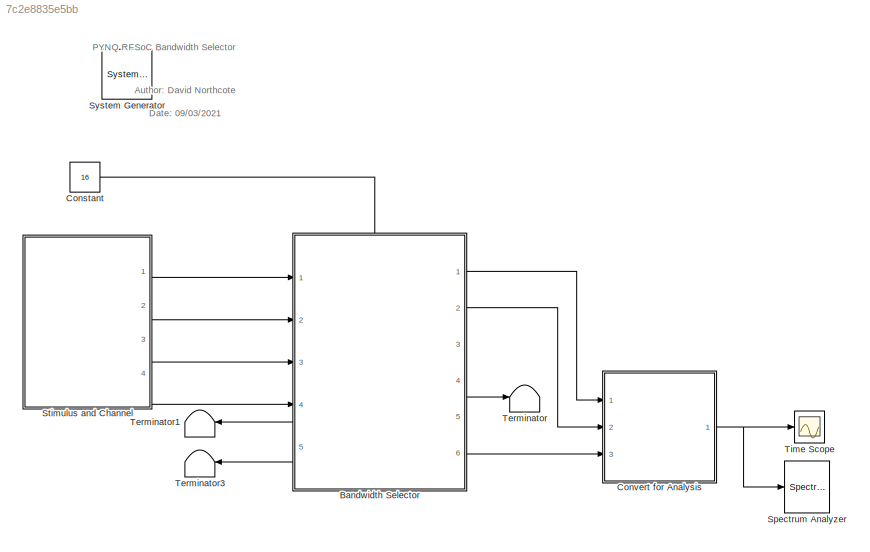
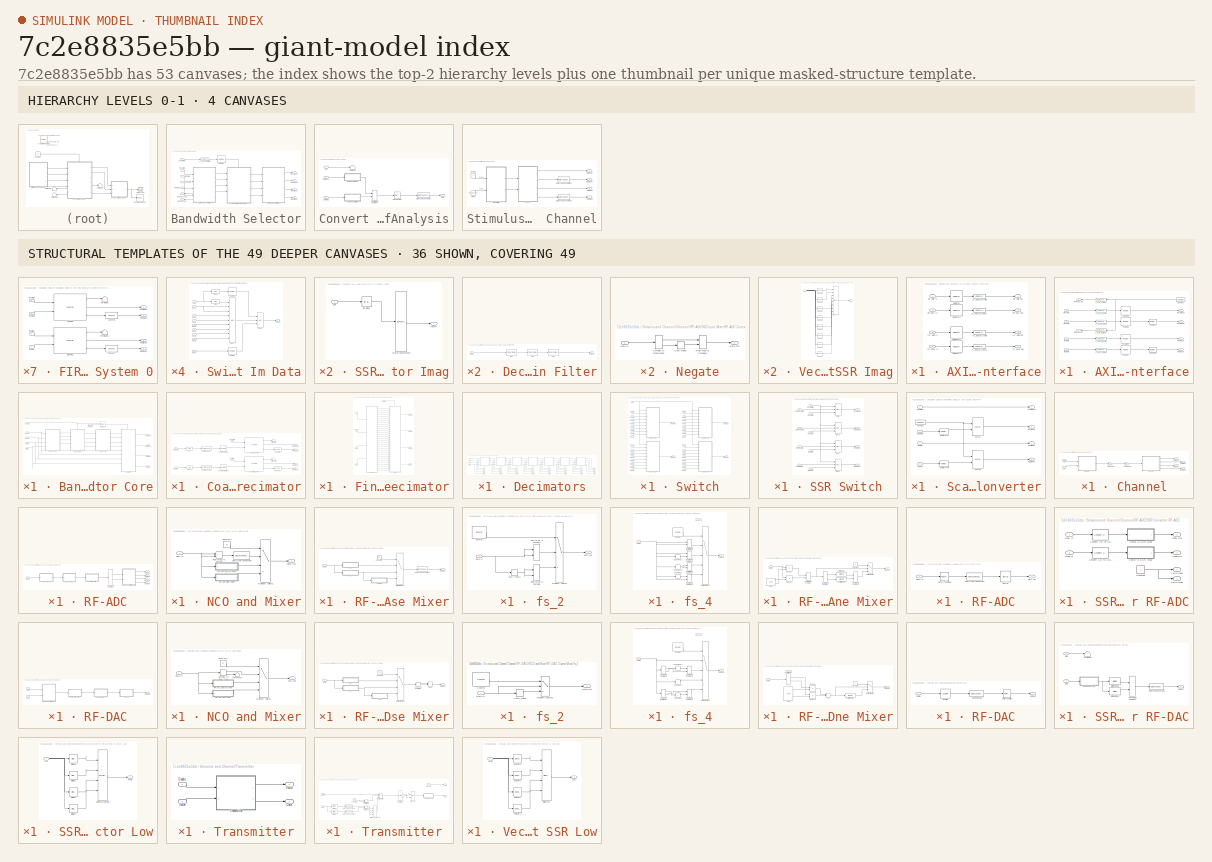
[diagram: thumbnail index - top-2 hierarchy levels (4 canvases) + 36 structural-template representatives of the remaining 49 canvases]
MODEL slx_7c2e8835e5bb
KIND model
CONFIG AbsTol = auto
CONFIG EnableMultiTasking = off
CONFIG FixedStep = auto
CONFIG MaxStep = auto
CONFIG MinStep = auto
CONFIG PreLoadFcn = design_filters;
CONFIG RelTol = 1e-3
CONFIG SampleTimeConstraint = Unconstrained
CONFIG Solver = VariableStepAuto
CONFIG SolverName = VariableStepAuto
CONFIG StartTime = 0.0
CONFIG StopTime = 160e-7
BLOCK [Reference]  System Generator  REF=xbsIndex_r4/ System Generator
  AttributesFormatString = System\nGenerator
  Ports = []
  SourceBlock = xbsIndex_r4/ System Generator
  SourceType = Xilinx System Generator Block
  Tag = genX
  UserDataPersistent = on
BLOCK [SubSystem] Bandwidth Selector
  PortSchema = {"entries":[{"content":{"sides":[{"content":{"connectorIds":["In1","In2","In3","In4","Out5","Out6"]},"type":"ConnectorPlacement.EquallySpacedRectSide","uuid":"9ac4903b-3084-4d6f-9c93-4d37233c48de"},{"content":{"connectorIds":["Out1","Out2","Out3","Out4"],"side":"RIGHT"},"type":"ConnectorPlacement.EquallySpacedRectSide","uuid":"4509a3bf-b583-42cc-8228-5d81a5032102"},{"content":{"connectorIds":["In5...<+300ch>
  Ports = [5, 6]
  RequestExecContextInheritance = off
BLOCK [SubSystem] Bandwidth Selector/AXI-Stream Master Interface
  Ports = [4, 4]
  RequestExecContextInheritance = off
BLOCK [Inport] Bandwidth Selector/AXI-Stream Master Interface/Im Data In
  Port = 4
BLOCK [Outport] Bandwidth Selector/AXI-Stream Master Interface/Im Data Out
  Port = 4
BLOCK [Inport] Bandwidth Selector/AXI-Stream Master Interface/Im Valid In
  Port = 3
BLOCK [Outport] Bandwidth Selector/AXI-Stream Master Interface/Im Valid Out
  Port = 3
BLOCK [Inport] Bandwidth Selector/AXI-Stream Master Interface/Re Data In
  Port = 2
BLOCK [Outport] Bandwidth Selector/AXI-Stream Master Interface/Re Data Out
  Port = 2
BLOCK [Inport] Bandwidth Selector/AXI-Stream Master Interface/Re Valid In
BLOCK [Outport] Bandwidth Selector/AXI-Stream Master Interface/Re Valid Out
BLOCK [Reference] Bandwidth Selector/AXI-Stream Master Interface/Register  REF=xbsIndex_r4/Register
  Ports = [1, 1]
  SourceBlock = xbsIndex_r4/Register
  SourceType = Xilinx Register Block
BLOCK [Reference] Bandwidth Selector/AXI-Stream Master Interface/Register1  REF=xbsIndex_r4/Register
  Ports = [1, 1]
  SourceBlock = xbsIndex_r4/Register
  SourceType = Xilinx Register Block
BLOCK [Reference] Bandwidth Selector/AXI-Stream Master Interface/Register2  REF=xbsIndex_r4/Register
  Ports = [1, 1]
  SourceBlock = xbsIndex_r4/Register
  SourceType = Xilinx Register Block
BLOCK [Reference] Bandwidth Selector/AXI-Stream Master Interface/Register3  REF=xbsIndex_r4/Register
  Ports = [1, 1]
  SourceBlock = xbsIndex_r4/Register
  SourceType = Xilinx Register Block
BLOCK [Reference] Bandwidth Selector/AXI-Stream Master Interface/m_axis_im_tdata  REF=xbsIndex_r4/Gateway Out
  Ports = [1, 1]
  SourceBlock = xbsIndex_r4/Gateway Out
  SourceType = Xilinx Gateway Out Block
BLOCK [Reference] Bandwidth Selector/AXI-Stream Master Interface/m_axis_im_tvalid  REF=xbsIndex_r4/Gateway Out
  Ports = [1, 1]
  SourceBlock = xbsIndex_r4/Gateway Out
  SourceType = Xilinx Gateway Out Block
BLOCK [Reference] Bandwidth Selector/AXI-Stream Master Interface/m_axis_re_tdata  REF=xbsIndex_r4/Gateway Out
  Ports = [1, 1]
  SourceBlock = xbsIndex_r4/Gateway Out
  SourceType = Xilinx Gateway Out Block
BLOCK [Reference] Bandwidth Selector/AXI-Stream Master Interface/m_axis_re_tvalid  REF=xbsIndex_r4/Gateway Out
  Ports = [1, 1]
  SourceBlock = xbsIndex_r4/Gateway Out
  SourceType = Xilinx Gateway Out Block
BLOCK [SubSystem] Bandwidth Selector/AXI-Stream Slave Interface
  PortSchema = {"entries":[{"content":{"sides":[{"content":{"connectorIds":["In1","In2","In3","In4","Out5","Out6"]},"type":"ConnectorPlacement.EquallySpacedRectSide","uuid":"9ac4903b-3084-4d6f-9c93-4d37233c48de"},{"content":{"connectorIds":["Out1","Out2","Out3","Out4"],"side":"RIGHT"},"type":"ConnectorPlacement.EquallySpacedRectSide","uuid":"4509a3bf-b583-42cc-8228-5d81a5032102"},{"content":{"connectorIds":[],"s...<+295ch>
  Ports = [4, 6]
  RequestExecContextInheritance = off
BLOCK [Reference] Bandwidth Selector/AXI-Stream Slave Interface/Constant  REF=xbsIndex_r4/Constant
  Ports = [0, 1]
  SourceBlock = xbsIndex_r4/Constant
  SourceType = Xilinx Constant Block Block
BLOCK [Inport] Bandwidth Selector/AXI-Stream Slave Interface/Im Data In
  Port = 4
BLOCK [Outport] Bandwidth Selector/AXI-Stream Slave Interface/Im Data Out
  Port = 4
BLOCK [Outport] Bandwidth Selector/AXI-Stream Slave Interface/Im Ready Out
  Port = 6
BLOCK [Inport] Bandwidth Selector/AXI-Stream Slave Interface/Im Valid In
  Port = 2
BLOCK [Outport] Bandwidth Selector/AXI-Stream Slave Interface/Im Valid Out
  Port = 3
BLOCK [Inport] Bandwidth Selector/AXI-Stream Slave Interface/Re Data In
  Port = 3
BLOCK [Outport] Bandwidth Selector/AXI-Stream Slave Interface/Re Data Out
  Port = 2
BLOCK [Outport] Bandwidth Selector/AXI-Stream Slave Interface/Re Ready Out
  Port = 5
BLOCK [Inport] Bandwidth Selector/AXI-Stream Slave Interface/Re Valid In
BLOCK [Outport] Bandwidth Selector/AXI-Stream Slave Interface/Re Valid Out
BLOCK [Reference] Bandwidth Selector/AXI-Stream Slave Interface/Register  REF=xbsIndex_r4/Register
  Ports = [1, 1]
  SourceBlock = xbsIndex_r4/Register
  SourceType = Xilinx Register Block
BLOCK [Reference] Bandwidth Selector/AXI-Stream Slave Interface/Register1  REF=xbsIndex_r4/Register
  Ports = [1, 1]
  SourceBlock = xbsIndex_r4/Register
  SourceType = Xilinx Register Block
BLOCK [Reference] Bandwidth Selector/AXI-Stream Slave Interface/Register2  REF=xbsIndex_r4/Register
  Ports = [1, 1]
  SourceBlock = xbsIndex_r4/Register
  SourceType = Xilinx Register Block
BLOCK [Reference] Bandwidth Selector/AXI-Stream Slave Interface/Register3  REF=xbsIndex_r4/Register
  Ports = [1, 1]
  SourceBlock = xbsIndex_r4/Register
  SourceType = Xilinx Register Block
BLOCK [Reference] Bandwidth Selector/AXI-Stream Slave Interface/Reinterpret  REF=xbsIndex_r4/Reinterpret
  Ports = [1, 1]
  SourceBlock = xbsIndex_r4/Reinterpret
  SourceType = Xilinx Type Reinterpreter Block
BLOCK [Reference] Bandwidth Selector/AXI-Stream Slave Interface/Reinterpret1  REF=xbsIndex_r4/Reinterpret
  Ports = [1, 1]
  SourceBlock = xbsIndex_r4/Reinterpret
  SourceType = Xilinx Type Reinterpreter Block
BLOCK [Reference] Bandwidth Selector/AXI-Stream Slave Interface/s_axis_im_tdata  REF=xbsIndex_r4/Gateway In
  Ports = [1, 1]
  SourceBlock = xbsIndex_r4/Gateway In
  SourceType = Xilinx Gateway In Block
BLOCK [Reference] Bandwidth Selector/AXI-Stream Slave Interface/s_axis_im_tready  REF=xbsIndex_r4/Gateway Out
  Ports = [1, 1]
  SourceBlock = xbsIndex_r4/Gateway Out
  SourceType = Xilinx Gateway Out Block
BLOCK [Reference] Bandwidth Selector/AXI-Stream Slave Interface/s_axis_im_tvalid  REF=xbsIndex_r4/Gateway In
  Ports = [1, 1]
  SourceBlock = xbsIndex_r4/Gateway In
  SourceType = Xilinx Gateway In Block
BLOCK [Reference] Bandwidth Selector/AXI-Stream Slave Interface/s_axis_re_tdata  REF=xbsIndex_r4/Gateway In
  Ports = [1, 1]
  SourceBlock = xbsIndex_r4/Gateway In
  SourceType = Xilinx Gateway In Block
BLOCK [Reference] Bandwidth Selector/AXI-Stream Slave Interface/s_axis_re_tready  REF=xbsIndex_r4/Gateway Out
  Ports = [1, 1]
  SourceBlock = xbsIndex_r4/Gateway Out
  SourceType = Xilinx Gateway Out Block
BLOCK [Reference] Bandwidth Selector/AXI-Stream Slave Interface/s_axis_re_tvalid  REF=xbsIndex_r4/Gateway In
  Ports = [1, 1]
  SourceBlock = xbsIndex_r4/Gateway In
  SourceType = Xilinx Gateway In Block
BLOCK [SubSystem] Bandwidth Selector/Bandwidth Selector Core
  PortSchema = {"entries":[{"content":{"sides":[{"content":{"connectorIds":["In1","In2","In3","In4"]},"type":"ConnectorPlacement.EquallySpacedRectSide","uuid":"fc1f7285-3ae7-4832-b42d-539cb963fd1b"},{"content":{"connectorIds":["Out1","Out2","Out3","Out4"],"side":"RIGHT"},"type":"ConnectorPlacement.EquallySpacedRectSide","uuid":"8037a9d6-373c-41cb-9781-b7db306e875a"},{"content":{"connectorIds":["In5"],"side":"TOP...<+286ch>
  Ports = [5, 4]
  RequestExecContextInheritance = off
BLOCK [SubSystem] Bandwidth Selector/Bandwidth Selector Core/Coarse Decimator
  Ports = [4, 4]
  RequestExecContextInheritance = off
BLOCK [Reference] Bandwidth Selector/Bandwidth Selector Core/Coarse Decimator/Convert  REF=xbsIndex_r4/Convert
  Ports = [1, 1]
  SourceBlock = xbsIndex_r4/Convert
  SourceType = Xilinx Type Converter Block
BLOCK [Reference] Bandwidth Selector/Bandwidth Selector Core/Coarse Decimator/Convert1  REF=xbsIndex_r4/Convert
  Ports = [1, 1]
  SourceBlock = xbsIndex_r4/Convert
  SourceType = Xilinx Type Converter Block
BLOCK [Inport] Bandwidth Selector/Bandwidth Selector Core/Coarse Decimator/Im Data In
  Port = 4
BLOCK [Outport] Bandwidth Selector/Bandwidth Selector Core/Coarse Decimator/Im Data Out
  Port = 4
BLOCK [Inport] Bandwidth Selector/Bandwidth Selector Core/Coarse Decimator/Im Valid In 
  Port = 3
BLOCK [Outport] Bandwidth Selector/Bandwidth Selector Core/Coarse Decimator/Im Valid Out
  Port = 3
BLOCK [Inport] Bandwidth Selector/Bandwidth Selector Core/Coarse Decimator/Re Data In
  Port = 2
BLOCK [Outport] Bandwidth Selector/Bandwidth Selector Core/Coarse Decimator/Re Data Out
  Port = 2
BLOCK [Inport] Bandwidth Selector/Bandwidth Selector Core/Coarse Decimator/Re Valid In
BLOCK [Outport] Bandwidth Selector/Bandwidth Selector Core/Coarse Decimator/Re Valid Out
BLOCK [Reference] Bandwidth Selector/Bandwidth Selector Core/Coarse Decimator/Scalar2Vector  REF=xrbsSSR_Library/Scalar2Vector
  Ports = [1, 1]
  SourceBlock = xrbsSSR_Library/Scalar2Vector
  SourceProductName = Xilinx SSR Blockset
  SourceType = Xilinx Scalar2Vector Block
BLOCK [Reference] Bandwidth Selector/Bandwidth Selector Core/Coarse Decimator/Scalar2Vector1  REF=xrbsSSR_Library/Scalar2Vector
  Ports = [1, 1]
  SourceBlock = xrbsSSR_Library/Scalar2Vector
  SourceProductName = Xilinx SSR Blockset
  SourceType = Xilinx Scalar2Vector Block
BLOCK [Reference] Bandwidth Selector/Bandwidth Selector Core/Coarse Decimator/Slice  REF=xbsIndex_r4/Slice
  Ports = [1, 1]
  SourceBlock = xbsIndex_r4/Slice
  SourceType = Xilinx Bit Slice Extractor Block
BLOCK [Reference] Bandwidth Selector/Bandwidth Selector Core/Coarse Decimator/Slice1  REF=xbsIndex_r4/Slice
  Ports = [1, 1]
  SourceBlock = xbsIndex_r4/Slice
  SourceType = Xilinx Bit Slice Extractor Block
BLOCK [Terminator] Bandwidth Selector/Bandwidth Selector Core/Coarse Decimator/Terminator
BLOCK [Terminator] Bandwidth Selector/Bandwidth Selector Core/Coarse Decimator/Terminator2
BLOCK [Reference] Bandwidth Selector/Bandwidth Selector Core/Coarse Decimator/Vector Imag FIR 2  REF=xrbsSSR_Library/Vector FIR
  Ports = [2, 3]
  SourceBlock = xrbsSSR_Library/Vector FIR
  SourceProductName = Xilinx SSR Blockset
  SourceType = Xilinx Vector FIR Compiler 7.2 Block
BLOCK [Reference] Bandwidth Selector/Bandwidth Selector Core/Coarse Decimator/Vector Real FIR 2  REF=xrbsSSR_Library/Vector FIR
  Ports = [2, 3]
  SourceBlock = xrbsSSR_Library/Vector FIR
  SourceProductName = Xilinx SSR Blockset
  SourceType = Xilinx Vector FIR Compiler 7.2 Block
BLOCK [Reference] Bandwidth Selector/Bandwidth Selector Core/Coarse Decimator/Vector Reinterpret  REF=xrbsSSR_Library/Vector Reinterpret
  Ports = [1, 1]
  SourceBlock = xrbsSSR_Library/Vector Reinterpret
  SourceProductName = Xilinx SSR Blockset
  SourceType = Xilinx Vector Type Reinterpreter Block
BLOCK [Reference] Bandwidth Selector/Bandwidth Selector Core/Coarse Decimator/Vector Reinterpret1  REF=xrbsSSR_Library/Vector Reinterpret
  Ports = [1, 1]
  SourceBlock = xrbsSSR_Library/Vector Reinterpret
  SourceProductName = Xilinx SSR Blockset
  SourceType = Xilinx Vector Type Reinterpreter Block
BLOCK [Reference] Bandwidth Selector/Bandwidth Selector Core/Constant  REF=xbsIndex_r4/Constant
  Ports = [0, 1]
  SourceBlock = xbsIndex_r4/Constant
  SourceType = Xilinx Constant Block Block
BLOCK [SubSystem] Bandwidth Selector/Bandwidth Selector Core/Fine Decimator
  PortSchema = {"entries":[{"content":{"sides":[{"content":{"connectorIds":["In1","In2","In3","In4"]},"type":"ConnectorPlacement.EquallySpacedRectSide","uuid":"7334af96-d1e0-488c-90d8-25d26f777d37"},{"content":{"connectorIds":["Out1","Out2","Out3","Out4"],"side":"RIGHT"},"type":"ConnectorPlacement.EquallySpacedRectSide","uuid":"b7715cae-8643-411d-8aeb-c70b4f342757"},{"content":{"connectorIds":["In5"],"side":"TOP...<+286ch>
  Ports = [5, 4]
  RequestExecContextInheritance = off
BLOCK [Inport] Bandwidth Selector/Bandwidth Selector Core/Fine Decimator/Decimation
  Port = 5
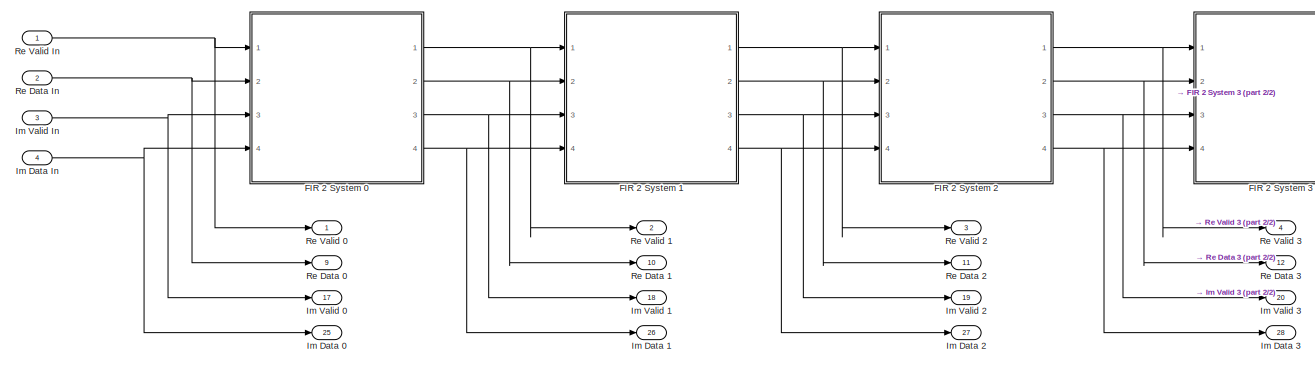
[diagram: Bandwidth Selector/Bandwidth Selector Core/Fine Decimator/Decimators - part 1/2, left side, full height]
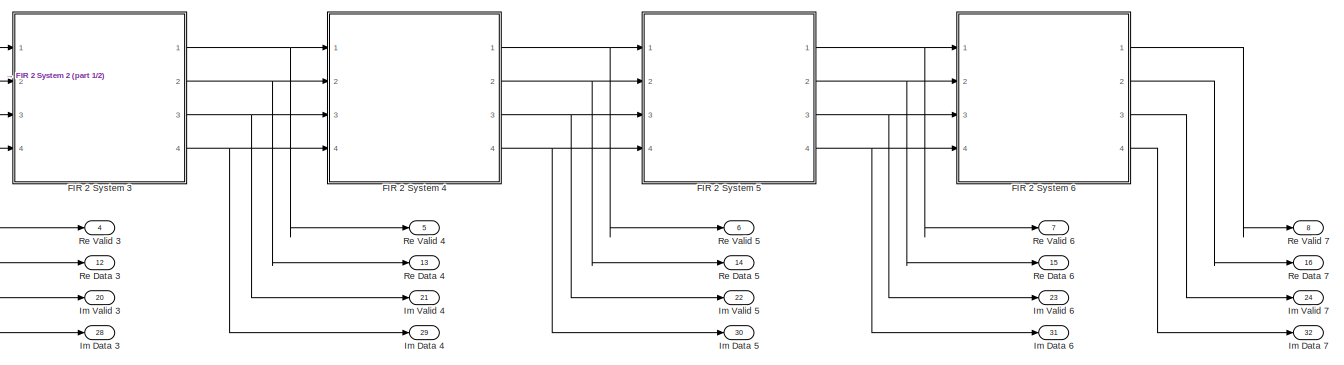
[diagram: Bandwidth Selector/Bandwidth Selector Core/Fine Decimator/Decimators - part 2/2, right side, full height]
BLOCK [SubSystem] Bandwidth Selector/Bandwidth Selector Core/Fine Decimator/Decimators
  Ports = [4, 32]
  RequestExecContextInheritance = off
BLOCK [SubSystem] Bandwidth Selector/Bandwidth Selector Core/Fine Decimator/Decimators/FIR 2 System 0
  Ports = [4, 4]
  RequestExecContextInheritance = off
BLOCK [Reference] Bandwidth Selector/Bandwidth Selector Core/Fine Decimator/Decimators/FIR 2 System 0/Convert  REF=xbsIndex_r4/Convert
  Ports = [1, 1]
  SourceBlock = xbsIndex_r4/Convert
  SourceType = Xilinx Type Converter Block
BLOCK [Reference] Bandwidth Selector/Bandwidth Selector Core/Fine Decimator/Decimators/FIR 2 System 0/Convert1  REF=xbsIndex_r4/Convert
  Ports = [1, 1]
  SourceBlock = xbsIndex_r4/Convert
  SourceType = Xilinx Type Converter Block
BLOCK [Inport] Bandwidth Selector/Bandwidth Selector Core/Fine Decimator/Decimators/FIR 2 System 0/Im Data In
  Port = 4
BLOCK [Outport] Bandwidth Selector/Bandwidth Selector Core/Fine Decimator/Decimators/FIR 2 System 0/Im Data Out
  Port = 4
BLOCK [Inport] Bandwidth Selector/Bandwidth Selector Core/Fine Decimator/Decimators/FIR 2 System 0/Im Valid In 
  Port = 3
BLOCK [Outport] Bandwidth Selector/Bandwidth Selector Core/Fine Decimator/Decimators/FIR 2 System 0/Im Valid Out
  Port = 3
BLOCK [Reference] Bandwidth Selector/Bandwidth Selector Core/Fine Decimator/Decimators/FIR 2 System 0/Imag FIR 2  REF=xrbsSSR_Library/Vector FIR
  Ports = [2, 3]
  SourceBlock = xrbsSSR_Library/Vector FIR
  SourceProductName = Xilinx SSR Blockset
  SourceType = Xilinx Vector FIR Compiler 7.2 Block
BLOCK [Inport] Bandwidth Selector/Bandwidth Selector Core/Fine Decimator/Decimators/FIR 2 System 0/Re Data In
  Port = 2
BLOCK [Outport] Bandwidth Selector/Bandwidth Selector Core/Fine Decimator/Decimators/FIR 2 System 0/Re Data Out
  Port = 2
BLOCK [Inport] Bandwidth Selector/Bandwidth Selector Core/Fine Decimator/Decimators/FIR 2 System 0/Re Valid In
BLOCK [Outport] Bandwidth Selector/Bandwidth Selector Core/Fine Decimator/Decimators/FIR 2 System 0/Re Valid Out
BLOCK [Reference] Bandwidth Selector/Bandwidth Selector Core/Fine Decimator/Decimators/FIR 2 System 0/Real FIR 2  REF=xrbsSSR_Library/Vector FIR
  Ports = [2, 3]
  SourceBlock = xrbsSSR_Library/Vector FIR
  SourceProductName = Xilinx SSR Blockset
  SourceType = Xilinx Vector FIR Compiler 7.2 Block
BLOCK [Terminator] Bandwidth Selector/Bandwidth Selector Core/Fine Decimator/Decimators/FIR 2 System 0/Terminator
BLOCK [Terminator] Bandwidth Selector/Bandwidth Selector Core/Fine Decimator/Decimators/FIR 2 System 0/Terminator2
BLOCK [SubSystem] Bandwidth Selector/Bandwidth Selector Core/Fine Decimator/Decimators/FIR 2 System 1
  Ports = [4, 4]
  RequestExecContextInheritance = off
BLOCK [Reference] Bandwidth Selector/Bandwidth Selector Core/Fine Decimator/Decimators/FIR 2 System 1/Convert  REF=xbsIndex_r4/Convert
  Ports = [1, 1]
  SourceBlock = xbsIndex_r4/Convert
  SourceType = Xilinx Type Converter Block
BLOCK [Reference] Bandwidth Selector/Bandwidth Selector Core/Fine Decimator/Decimators/FIR 2 System 1/Convert1  REF=xbsIndex_r4/Convert
  Ports = [1, 1]
  SourceBlock = xbsIndex_r4/Convert
  SourceType = Xilinx Type Converter Block
BLOCK [Inport] Bandwidth Selector/Bandwidth Selector Core/Fine Decimator/Decimators/FIR 2 System 1/Im Data In
  Port = 4
BLOCK [Outport] Bandwidth Selector/Bandwidth Selector Core/Fine Decimator/Decimators/FIR 2 System 1/Im Data Out
  Port = 4
BLOCK [Inport] Bandwidth Selector/Bandwidth Selector Core/Fine Decimator/Decimators/FIR 2 System 1/Im Valid In 
  Port = 3
BLOCK [Outport] Bandwidth Selector/Bandwidth Selector Core/Fine Decimator/Decimators/FIR 2 System 1/Im Valid Out
  Port = 3
BLOCK [Reference] Bandwidth Selector/Bandwidth Selector Core/Fine Decimator/Decimators/FIR 2 System 1/Imag FIR 2  REF=xrbsSSR_Library/Vector FIR
  Ports = [2, 3]
  SourceBlock = xrbsSSR_Library/Vector FIR
  SourceProductName = Xilinx SSR Blockset
  SourceType = Xilinx Vector FIR Compiler 7.2 Block
BLOCK [Inport] Bandwidth Selector/Bandwidth Selector Core/Fine Decimator/Decimators/FIR 2 System 1/Re Data In
  Port = 2
BLOCK [Outport] Bandwidth Selector/Bandwidth Selector Core/Fine Decimator/Decimators/FIR 2 System 1/Re Data Out
  Port = 2
BLOCK [Inport] Bandwidth Selector/Bandwidth Selector Core/Fine Decimator/Decimators/FIR 2 System 1/Re Valid In
BLOCK [Outport] Bandwidth Selector/Bandwidth Selector Core/Fine Decimator/Decimators/FIR 2 System 1/Re Valid Out
BLOCK [Reference] Bandwidth Selector/Bandwidth Selector Core/Fine Decimator/Decimators/FIR 2 System 1/Real FIR 2  REF=xrbsSSR_Library/Vector FIR
  Ports = [2, 3]
  SourceBlock = xrbsSSR_Library/Vector FIR
  SourceProductName = Xilinx SSR Blockset
  SourceType = Xilinx Vector FIR Compiler 7.2 Block
BLOCK [Terminator] Bandwidth Selector/Bandwidth Selector Core/Fine Decimator/Decimators/FIR 2 System 1/Terminator
BLOCK [Terminator] Bandwidth Selector/Bandwidth Selector Core/Fine Decimator/Decimators/FIR 2 System 1/Terminator2
BLOCK [SubSystem] Bandwidth Selector/Bandwidth Selector Core/Fine Decimator/Decimators/FIR 2 System 2
  Ports = [4, 4]
  RequestExecContextInheritance = off
BLOCK [Reference] Bandwidth Selector/Bandwidth Selector Core/Fine Decimator/Decimators/FIR 2 System 2/Convert  REF=xbsIndex_r4/Convert
  Ports = [1, 1]
  SourceBlock = xbsIndex_r4/Convert
  SourceType = Xilinx Type Converter Block
BLOCK [Reference] Bandwidth Selector/Bandwidth Selector Core/Fine Decimator/Decimators/FIR 2 System 2/Convert1  REF=xbsIndex_r4/Convert
  Ports = [1, 1]
  SourceBlock = xbsIndex_r4/Convert
  SourceType = Xilinx Type Converter Block
BLOCK [Inport] Bandwidth Selector/Bandwidth Selector Core/Fine Decimator/Decimators/FIR 2 System 2/Im Data In
  Port = 4
BLOCK [Outport] Bandwidth Selector/Bandwidth Selector Core/Fine Decimator/Decimators/FIR 2 System 2/Im Data Out
  Port = 4
BLOCK [Inport] Bandwidth Selector/Bandwidth Selector Core/Fine Decimator/Decimators/FIR 2 System 2/Im Valid In 
  Port = 3
BLOCK [Outport] Bandwidth Selector/Bandwidth Selector Core/Fine Decimator/Decimators/FIR 2 System 2/Im Valid Out
  Port = 3
BLOCK [Reference] Bandwidth Selector/Bandwidth Selector Core/Fine Decimator/Decimators/FIR 2 System 2/Imag FIR 2  REF=xrbsSSR_Library/Vector FIR
  Ports = [2, 3]
  SourceBlock = xrbsSSR_Library/Vector FIR
  SourceProductName = Xilinx SSR Blockset
  SourceType = Xilinx Vector FIR Compiler 7.2 Block
BLOCK [Inport] Bandwidth Selector/Bandwidth Selector Core/Fine Decimator/Decimators/FIR 2 System 2/Re Data In
  Port = 2
BLOCK [Outport] Bandwidth Selector/Bandwidth Selector Core/Fine Decimator/Decimators/FIR 2 System 2/Re Data Out
  Port = 2
BLOCK [Inport] Bandwidth Selector/Bandwidth Selector Core/Fine Decimator/Decimators/FIR 2 System 2/Re Valid In
BLOCK [Outport] Bandwidth Selector/Bandwidth Selector Core/Fine Decimator/Decimators/FIR 2 System 2/Re Valid Out
BLOCK [Reference] Bandwidth Selector/Bandwidth Selector Core/Fine Decimator/Decimators/FIR 2 System 2/Real FIR 2  REF=xrbsSSR_Library/Vector FIR
  Ports = [2, 3]
  SourceBlock = xrbsSSR_Library/Vector FIR
  SourceProductName = Xilinx SSR Blockset
  SourceType = Xilinx Vector FIR Compiler 7.2 Block
BLOCK [Terminator] Bandwidth Selector/Bandwidth Selector Core/Fine Decimator/Decimators/FIR 2 System 2/Terminator
BLOCK [Terminator] Bandwidth Selector/Bandwidth Selector Core/Fine Decimator/Decimators/FIR 2 System 2/Terminator2
BLOCK [SubSystem] Bandwidth Selector/Bandwidth Selector Core/Fine Decimator/Decimators/FIR 2 System 3
  Ports = [4, 4]
  RequestExecContextInheritance = off
BLOCK [Reference] Bandwidth Selector/Bandwidth Selector Core/Fine Decimator/Decimators/FIR 2 System 3/Convert  REF=xbsIndex_r4/Convert
  Ports = [1, 1]
  SourceBlock = xbsIndex_r4/Convert
  SourceType = Xilinx Type Converter Block
BLOCK [Reference] Bandwidth Selector/Bandwidth Selector Core/Fine Decimator/Decimators/FIR 2 System 3/Convert1  REF=xbsIndex_r4/Convert
  Ports = [1, 1]
  SourceBlock = xbsIndex_r4/Convert
  SourceType = Xilinx Type Converter Block
BLOCK [Inport] Bandwidth Selector/Bandwidth Selector Core/Fine Decimator/Decimators/FIR 2 System 3/Im Data In
  Port = 4
BLOCK [Outport] Bandwidth Selector/Bandwidth Selector Core/Fine Decimator/Decimators/FIR 2 System 3/Im Data Out
  Port = 4
BLOCK [Inport] Bandwidth Selector/Bandwidth Selector Core/Fine Decimator/Decimators/FIR 2 System 3/Im Valid In 
  Port = 3
BLOCK [Outport] Bandwidth Selector/Bandwidth Selector Core/Fine Decimator/Decimators/FIR 2 System 3/Im Valid Out
  Port = 3
BLOCK [Reference] Bandwidth Selector/Bandwidth Selector Core/Fine Decimator/Decimators/FIR 2 System 3/Imag FIR 2  REF=xrbsSSR_Library/Vector FIR
  Ports = [2, 3]
  SourceBlock = xrbsSSR_Library/Vector FIR
  SourceProductName = Xilinx SSR Blockset
  SourceType = Xilinx Vector FIR Compiler 7.2 Block
BLOCK [Inport] Bandwidth Selector/Bandwidth Selector Core/Fine Decimator/Decimators/FIR 2 System 3/Re Data In
  Port = 2
BLOCK [Outport] Bandwidth Selector/Bandwidth Selector Core/Fine Decimator/Decimators/FIR 2 System 3/Re Data Out
  Port = 2
BLOCK [Inport] Bandwidth Selector/Bandwidth Selector Core/Fine Decimator/Decimators/FIR 2 System 3/Re Valid In
BLOCK [Outport] Bandwidth Selector/Bandwidth Selector Core/Fine Decimator/Decimators/FIR 2 System 3/Re Valid Out
BLOCK [Reference] Bandwidth Selector/Bandwidth Selector Core/Fine Decimator/Decimators/FIR 2 System 3/Real FIR 2  REF=xrbsSSR_Library/Vector FIR
  Ports = [2, 3]
  SourceBlock = xrbsSSR_Library/Vector FIR
  SourceProductName = Xilinx SSR Blockset
  SourceType = Xilinx Vector FIR Compiler 7.2 Block
BLOCK [Terminator] Bandwidth Selector/Bandwidth Selector Core/Fine Decimator/Decimators/FIR 2 System 3/Terminator
BLOCK [Terminator] Bandwidth Selector/Bandwidth Selector Core/Fine Decimator/Decimators/FIR 2 System 3/Terminator2
BLOCK [SubSystem] Bandwidth Selector/Bandwidth Selector Core/Fine Decimator/Decimators/FIR 2 System 4
  Ports = [4, 4]
  RequestExecContextInheritance = off
BLOCK [Reference] Bandwidth Selector/Bandwidth Selector Core/Fine Decimator/Decimators/FIR 2 System 4/Convert  REF=xbsIndex_r4/Convert
  Ports = [1, 1]
  SourceBlock = xbsIndex_r4/Convert
  SourceType = Xilinx Type Converter Block
BLOCK [Reference] Bandwidth Selector/Bandwidth Selector Core/Fine Decimator/Decimators/FIR 2 System 4/Convert1  REF=xbsIndex_r4/Convert
  Ports = [1, 1]
  SourceBlock = xbsIndex_r4/Convert
  SourceType = Xilinx Type Converter Block
BLOCK [Inport] Bandwidth Selector/Bandwidth Selector Core/Fine Decimator/Decimators/FIR 2 System 4/Im Data In
  Port = 4
BLOCK [Outport] Bandwidth Selector/Bandwidth Selector Core/Fine Decimator/Decimators/FIR 2 System 4/Im Data Out
  Port = 4
BLOCK [Inport] Bandwidth Selector/Bandwidth Selector Core/Fine Decimator/Decimators/FIR 2 System 4/Im Valid In 
  Port = 3
BLOCK [Outport] Bandwidth Selector/Bandwidth Selector Core/Fine Decimator/Decimators/FIR 2 System 4/Im Valid Out
  Port = 3
BLOCK [Reference] Bandwidth Selector/Bandwidth Selector Core/Fine Decimator/Decimators/FIR 2 System 4/Imag FIR 2  REF=xrbsSSR_Library/Vector FIR
  Ports = [2, 3]
  SourceBlock = xrbsSSR_Library/Vector FIR
  SourceProductName = Xilinx SSR Blockset
  SourceType = Xilinx Vector FIR Compiler 7.2 Block
BLOCK [Inport] Bandwidth Selector/Bandwidth Selector Core/Fine Decimator/Decimators/FIR 2 System 4/Re Data In
  Port = 2
BLOCK [Outport] Bandwidth Selector/Bandwidth Selector Core/Fine Decimator/Decimators/FIR 2 System 4/Re Data Out
  Port = 2
BLOCK [Inport] Bandwidth Selector/Bandwidth Selector Core/Fine Decimator/Decimators/FIR 2 System 4/Re Valid In
BLOCK [Outport] Bandwidth Selector/Bandwidth Selector Core/Fine Decimator/Decimators/FIR 2 System 4/Re Valid Out
BLOCK [Reference] Bandwidth Selector/Bandwidth Selector Core/Fine Decimator/Decimators/FIR 2 System 4/Real FIR 2  REF=xrbsSSR_Library/Vector FIR
  Ports = [2, 3]
  SourceBlock = xrbsSSR_Library/Vector FIR
  SourceProductName = Xilinx SSR Blockset
  SourceType = Xilinx Vector FIR Compiler 7.2 Block
BLOCK [Terminator] Bandwidth Selector/Bandwidth Selector Core/Fine Decimator/Decimators/FIR 2 System 4/Terminator
BLOCK [Terminator] Bandwidth Selector/Bandwidth Selector Core/Fine Decimator/Decimators/FIR 2 System 4/Terminator2
BLOCK [SubSystem] Bandwidth Selector/Bandwidth Selector Core/Fine Decimator/Decimators/FIR 2 System 5
  Ports = [4, 4]
  RequestExecContextInheritance = off
BLOCK [Reference] Bandwidth Selector/Bandwidth Selector Core/Fine Decimator/Decimators/FIR 2 System 5/Convert  REF=xbsIndex_r4/Convert
  Ports = [1, 1]
  SourceBlock = xbsIndex_r4/Convert
  SourceType = Xilinx Type Converter Block
BLOCK [Reference] Bandwidth Selector/Bandwidth Selector Core/Fine Decimator/Decimators/FIR 2 System 5/Convert1  REF=xbsIndex_r4/Convert
  Ports = [1, 1]
  SourceBlock = xbsIndex_r4/Convert
  SourceType = Xilinx Type Converter Block
BLOCK [Inport] Bandwidth Selector/Bandwidth Selector Core/Fine Decimator/Decimators/FIR 2 System 5/Im Data In
  Port = 4
BLOCK [Outport] Bandwidth Selector/Bandwidth Selector Core/Fine Decimator/Decimators/FIR 2 System 5/Im Data Out
  Port = 4
BLOCK [Inport] Bandwidth Selector/Bandwidth Selector Core/Fine Decimator/Decimators/FIR 2 System 5/Im Valid In 
  Port = 3
BLOCK [Outport] Bandwidth Selector/Bandwidth Selector Core/Fine Decimator/Decimators/FIR 2 System 5/Im Valid Out
  Port = 3
BLOCK [Reference] Bandwidth Selector/Bandwidth Selector Core/Fine Decimator/Decimators/FIR 2 System 5/Imag FIR 2  REF=xrbsSSR_Library/Vector FIR
  Ports = [2, 3]
  SourceBlock = xrbsSSR_Library/Vector FIR
  SourceProductName = Xilinx SSR Blockset
  SourceType = Xilinx Vector FIR Compiler 7.2 Block
BLOCK [Inport] Bandwidth Selector/Bandwidth Selector Core/Fine Decimator/Decimators/FIR 2 System 5/Re Data In
  Port = 2
BLOCK [Outport] Bandwidth Selector/Bandwidth Selector Core/Fine Decimator/Decimators/FIR 2 System 5/Re Data Out
  Port = 2
BLOCK [Inport] Bandwidth Selector/Bandwidth Selector Core/Fine Decimator/Decimators/FIR 2 System 5/Re Valid In
BLOCK [Outport] Bandwidth Selector/Bandwidth Selector Core/Fine Decimator/Decimators/FIR 2 System 5/Re Valid Out
BLOCK [Reference] Bandwidth Selector/Bandwidth Selector Core/Fine Decimator/Decimators/FIR 2 System 5/Real FIR 2  REF=xrbsSSR_Library/Vector FIR
  Ports = [2, 3]
  SourceBlock = xrbsSSR_Library/Vector FIR
  SourceProductName = Xilinx SSR Blockset
  SourceType = Xilinx Vector FIR Compiler 7.2 Block
BLOCK [Terminator] Bandwidth Selector/Bandwidth Selector Core/Fine Decimator/Decimators/FIR 2 System 5/Terminator
BLOCK [Terminator] Bandwidth Selector/Bandwidth Selector Core/Fine Decimator/Decimators/FIR 2 System 5/Terminator2
BLOCK [SubSystem] Bandwidth Selector/Bandwidth Selector Core/Fine Decimator/Decimators/FIR 2 System 6
  Ports = [4, 4]
  RequestExecContextInheritance = off
BLOCK [Reference] Bandwidth Selector/Bandwidth Selector Core/Fine Decimator/Decimators/FIR 2 System 6/Convert  REF=xbsIndex_r4/Convert
  Ports = [1, 1]
  SourceBlock = xbsIndex_r4/Convert
  SourceType = Xilinx Type Converter Block
BLOCK [Reference] Bandwidth Selector/Bandwidth Selector Core/Fine Decimator/Decimators/FIR 2 System 6/Convert1  REF=xbsIndex_r4/Convert
  Ports = [1, 1]
  SourceBlock = xbsIndex_r4/Convert
  SourceType = Xilinx Type Converter Block
BLOCK [Inport] Bandwidth Selector/Bandwidth Selector Core/Fine Decimator/Decimators/FIR 2 System 6/Im Data In
  Port = 4
BLOCK [Outport] Bandwidth Selector/Bandwidth Selector Core/Fine Decimator/Decimators/FIR 2 System 6/Im Data Out
  Port = 4
BLOCK [Inport] Bandwidth Selector/Bandwidth Selector Core/Fine Decimator/Decimators/FIR 2 System 6/Im Valid In 
  Port = 3
BLOCK [Outport] Bandwidth Selector/Bandwidth Selector Core/Fine Decimator/Decimators/FIR 2 System 6/Im Valid Out
  Port = 3
BLOCK [Reference] Bandwidth Selector/Bandwidth Selector Core/Fine Decimator/Decimators/FIR 2 System 6/Imag FIR 2  REF=xrbsSSR_Library/Vector FIR
  Ports = [2, 3]
  SourceBlock = xrbsSSR_Library/Vector FIR
  SourceProductName = Xilinx SSR Blockset
  SourceType = Xilinx Vector FIR Compiler 7.2 Block
BLOCK [Inport] Bandwidth Selector/Bandwidth Selector Core/Fine Decimator/Decimators/FIR 2 System 6/Re Data In
  Port = 2
BLOCK [Outport] Bandwidth Selector/Bandwidth Selector Core/Fine Decimator/Decimators/FIR 2 System 6/Re Data Out
  Port = 2
BLOCK [Inport] Bandwidth Selector/Bandwidth Selector Core/Fine Decimator/Decimators/FIR 2 System 6/Re Valid In
BLOCK [Outport] Bandwidth Selector/Bandwidth Selector Core/Fine Decimator/Decimators/FIR 2 System 6/Re Valid Out
BLOCK [Reference] Bandwidth Selector/Bandwidth Selector Core/Fine Decimator/Decimators/FIR 2 System 6/Real FIR 2  REF=xrbsSSR_Library/Vector FIR
  Ports = [2, 3]
  SourceBlock = xrbsSSR_Library/Vector FIR
  SourceProductName = Xilinx SSR Blockset
  SourceType = Xilinx Vector FIR Compiler 7.2 Block
BLOCK [Terminator] Bandwidth Selector/Bandwidth Selector Core/Fine Decimator/Decimators/FIR 2 System 6/Terminator
BLOCK [Terminator] Bandwidth Selector/Bandwidth Selector Core/Fine Decimator/Decimators/FIR 2 System 6/Terminator2
BLOCK [Outport] Bandwidth Selector/Bandwidth Selector Core/Fine Decimator/Decimators/Im Data 0
  Port = 25
BLOCK [Outport] Bandwidth Selector/Bandwidth Selector Core/Fine Decimator/Decimators/Im Data 1
  Port = 26
BLOCK [Outport] Bandwidth Selector/Bandwidth Selector Core/Fine Decimator/Decimators/Im Data 2
  Port = 27
BLOCK [Outport] Bandwidth Selector/Bandwidth Selector Core/Fine Decimator/Decimators/Im Data 3
  Port = 28
BLOCK [Outport] Bandwidth Selector/Bandwidth Selector Core/Fine Decimator/Decimators/Im Data 4
  Port = 29
BLOCK [Outport] Bandwidth Selector/Bandwidth Selector Core/Fine Decimator/Decimators/Im Data 5
  Port = 30
BLOCK [Outport] Bandwidth Selector/Bandwidth Selector Core/Fine Decimator/Decimators/Im Data 6
  Port = 31
BLOCK [Outport] Bandwidth Selector/Bandwidth Selector Core/Fine Decimator/Decimators/Im Data 7
  Port = 32
BLOCK [Inport] Bandwidth Selector/Bandwidth Selector Core/Fine Decimator/Decimators/Im Data In
  Port = 4
BLOCK [Outport] Bandwidth Selector/Bandwidth Selector Core/Fine Decimator/Decimators/Im Valid 0
  Port = 17
BLOCK [Outport] Bandwidth Selector/Bandwidth Selector Core/Fine Decimator/Decimators/Im Valid 1
  Port = 18
BLOCK [Outport] Bandwidth Selector/Bandwidth Selector Core/Fine Decimator/Decimators/Im Valid 2
  Port = 19
BLOCK [Outport] Bandwidth Selector/Bandwidth Selector Core/Fine Decimator/Decimators/Im Valid 3
  Port = 20
BLOCK [Outport] Bandwidth Selector/Bandwidth Selector Core/Fine Decimator/Decimators/Im Valid 4
  Port = 21
BLOCK [Outport] Bandwidth Selector/Bandwidth Selector Core/Fine Decimator/Decimators/Im Valid 5
  Port = 22
BLOCK [Outport] Bandwidth Selector/Bandwidth Selector Core/Fine Decimator/Decimators/Im Valid 6
  Port = 23
BLOCK [Outport] Bandwidth Selector/Bandwidth Selector Core/Fine Decimator/Decimators/Im Valid 7
  Port = 24
BLOCK [Inport] Bandwidth Selector/Bandwidth Selector Core/Fine Decimator/Decimators/Im Valid In 
  Port = 3
BLOCK [Outport] Bandwidth Selector/Bandwidth Selector Core/Fine Decimator/Decimators/Re Data 0
  Port = 9
BLOCK [Outport] Bandwidth Selector/Bandwidth Selector Core/Fine Decimator/Decimators/Re Data 1
  Port = 10
BLOCK [Outport] Bandwidth Selector/Bandwidth Selector Core/Fine Decimator/Decimators/Re Data 2
  Port = 11
BLOCK [Outport] Bandwidth Selector/Bandwidth Selector Core/Fine Decimator/Decimators/Re Data 3
  Port = 12
BLOCK [Outport] Bandwidth Selector/Bandwidth Selector Core/Fine Decimator/Decimators/Re Data 4
  Port = 13
BLOCK [Outport] Bandwidth Selector/Bandwidth Selector Core/Fine Decimator/Decimators/Re Data 5
  Port = 14
BLOCK [Outport] Bandwidth Selector/Bandwidth Selector Core/Fine Decimator/Decimators/Re Data 6
  Port = 15
BLOCK [Outport] Bandwidth Selector/Bandwidth Selector Core/Fine Decimator/Decimators/Re Data 7
  Port = 16
BLOCK [Inport] Bandwidth Selector/Bandwidth Selector Core/Fine Decimator/Decimators/Re Data In
  Port = 2
BLOCK [Outport] Bandwidth Selector/Bandwidth Selector Core/Fine Decimator/Decimators/Re Valid 0
BLOCK [Outport] Bandwidth Selector/Bandwidth Selector Core/Fine Decimator/Decimators/Re Valid 1
  Port = 2
BLOCK [Outport] Bandwidth Selector/Bandwidth Selector Core/Fine Decimator/Decimators/Re Valid 2
  Port = 3
BLOCK [Outport] Bandwidth Selector/Bandwidth Selector Core/Fine Decimator/Decimators/Re Valid 3
  Port = 4
BLOCK [Outport] Bandwidth Selector/Bandwidth Selector Core/Fine Decimator/Decimators/Re Valid 4
  Port = 5
BLOCK [Outport] Bandwidth Selector/Bandwidth Selector Core/Fine Decimator/Decimators/Re Valid 5
  Port = 6
BLOCK [Outport] Bandwidth Selector/Bandwidth Selector Core/Fine Decimator/Decimators/Re Valid 6
  Port = 7
BLOCK [Outport] Bandwidth Selector/Bandwidth Selector Core/Fine Decimator/Decimators/Re Valid 7
  Port = 8
BLOCK [Inport] Bandwidth Selector/Bandwidth Selector Core/Fine Decimator/Decimators/Re Valid In
BLOCK [Inport] Bandwidth Selector/Bandwidth Selector Core/Fine Decimator/Im Data In
  Port = 4
BLOCK [Outport] Bandwidth Selector/Bandwidth Selector Core/Fine Decimator/Im Data Out
  Port = 4
BLOCK [Inport] Bandwidth Selector/Bandwidth Selector Core/Fine Decimator/Im Valid In
  Port = 3
BLOCK [Outport] Bandwidth Selector/Bandwidth Selector Core/Fine Decimator/Im Valid Out
  Port = 3
BLOCK [Inport] Bandwidth Selector/Bandwidth Selector Core/Fine Decimator/Re Data In
  Port = 2
BLOCK [Outport] Bandwidth Selector/Bandwidth Selector Core/Fine Decimator/Re Data Out
  Port = 2
BLOCK [Inport] Bandwidth Selector/Bandwidth Selector Core/Fine Decimator/Re Valid In
BLOCK [Outport] Bandwidth Selector/Bandwidth Selector Core/Fine Decimator/Re Valid Out
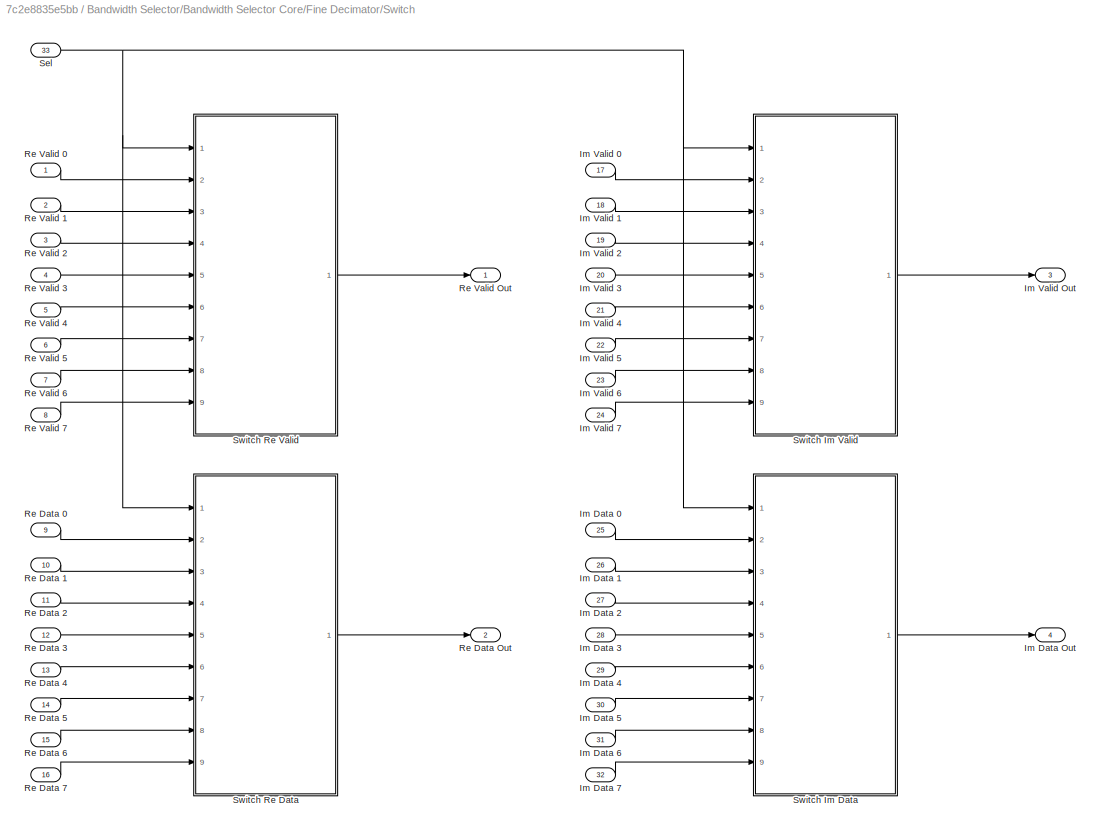
BLOCK [SubSystem] Bandwidth Selector/Bandwidth Selector Core/Fine Decimator/Switch
  PortSchema = {"entries":[{"content":{"sides":[{"content":{"connectorIds":["In1","In2","In3","In4","In5","In6","In7","In8","In9","In10","In11","In12","In13","In14","In15","In16","In17","In18","In19","In20","In21","In22","In23","In24","In25","In26","In27","In28","In29","In30","In31","In32"]},"type":"ConnectorPlacement.EquallySpacedRectSide","uuid":"774f33ce-0ead-458b-bf10-c8d40cb77827"},{"content":{"connectorIds...<+478ch>
  Ports = [33, 4]
  RequestExecContextInheritance = off
BLOCK [Inport] Bandwidth Selector/Bandwidth Selector Core/Fine Decimator/Switch/Im Data 0
  Port = 25
BLOCK [Inport] Bandwidth Selector/Bandwidth Selector Core/Fine Decimator/Switch/Im Data 1
  Port = 26
BLOCK [Inport] Bandwidth Selector/Bandwidth Selector Core/Fine Decimator/Switch/Im Data 2
  Port = 27
BLOCK [Inport] Bandwidth Selector/Bandwidth Selector Core/Fine Decimator/Switch/Im Data 3
  Port = 28
BLOCK [Inport] Bandwidth Selector/Bandwidth Selector Core/Fine Decimator/Switch/Im Data 4
  Port = 29
BLOCK [Inport] Bandwidth Selector/Bandwidth Selector Core/Fine Decimator/Switch/Im Data 5
  Port = 30
BLOCK [Inport] Bandwidth Selector/Bandwidth Selector Core/Fine Decimator/Switch/Im Data 6
  Port = 31
BLOCK [Inport] Bandwidth Selector/Bandwidth Selector Core/Fine Decimator/Switch/Im Data 7
  Port = 32
BLOCK [Outport] Bandwidth Selector/Bandwidth Selector Core/Fine Decimator/Switch/Im Data Out
  Port = 4
BLOCK [Inport] Bandwidth Selector/Bandwidth Selector Core/Fine Decimator/Switch/Im Valid 0
  Port = 17
BLOCK [Inport] Bandwidth Selector/Bandwidth Selector Core/Fine Decimator/Switch/Im Valid 1
  Port = 18
BLOCK [Inport] Bandwidth Selector/Bandwidth Selector Core/Fine Decimator/Switch/Im Valid 2
  Port = 19
BLOCK [Inport] Bandwidth Selector/Bandwidth Selector Core/Fine Decimator/Switch/Im Valid 3
  Port = 20
BLOCK [Inport] Bandwidth Selector/Bandwidth Selector Core/Fine Decimator/Switch/Im Valid 4
  Port = 21
BLOCK [Inport] Bandwidth Selector/Bandwidth Selector Core/Fine Decimator/Switch/Im Valid 5
  Port = 22
BLOCK [Inport] Bandwidth Selector/Bandwidth Selector Core/Fine Decimator/Switch/Im Valid 6
  Port = 23
BLOCK [Inport] Bandwidth Selector/Bandwidth Selector Core/Fine Decimator/Switch/Im Valid 7
  Port = 24
BLOCK [Outport] Bandwidth Selector/Bandwidth Selector Core/Fine Decimator/Switch/Im Valid Out
  Port = 3
BLOCK [Inport] Bandwidth Selector/Bandwidth Selector Core/Fine Decimator/Switch/Re Data 0
  Port = 9
BLOCK [Inport] Bandwidth Selector/Bandwidth Selector Core/Fine Decimator/Switch/Re Data 1
  Port = 10
BLOCK [Inport] Bandwidth Selector/Bandwidth Selector Core/Fine Decimator/Switch/Re Data 2
  Port = 11
BLOCK [Inport] Bandwidth Selector/Bandwidth Selector Core/Fine Decimator/Switch/Re Data 3
  Port = 12
BLOCK [Inport] Bandwidth Selector/Bandwidth Selector Core/Fine Decimator/Switch/Re Data 4
  Port = 13
BLOCK [Inport] Bandwidth Selector/Bandwidth Selector Core/Fine Decimator/Switch/Re Data 5
  Port = 14
BLOCK [Inport] Bandwidth Selector/Bandwidth Selector Core/Fine Decimator/Switch/Re Data 6
  Port = 15
BLOCK [Inport] Bandwidth Selector/Bandwidth Selector Core/Fine Decimator/Switch/Re Data 7
  Port = 16
BLOCK [Outport] Bandwidth Selector/Bandwidth Selector Core/Fine Decimator/Switch/Re Data Out
  Port = 2
BLOCK [Inport] Bandwidth Selector/Bandwidth Selector Core/Fine Decimator/Switch/Re Valid 0
BLOCK [Inport] Bandwidth Selector/Bandwidth Selector Core/Fine Decimator/Switch/Re Valid 1
  Port = 2
BLOCK [Inport] Bandwidth Selector/Bandwidth Selector Core/Fine Decimator/Switch/Re Valid 2
  Port = 3
BLOCK [Inport] Bandwidth Selector/Bandwidth Selector Core/Fine Decimator/Switch/Re Valid 3
  Port = 4
BLOCK [Inport] Bandwidth Selector/Bandwidth Selector Core/Fine Decimator/Switch/Re Valid 4
  Port = 5
BLOCK [Inport] Bandwidth Selector/Bandwidth Selector Core/Fine Decimator/Switch/Re Valid 5
  Port = 6
BLOCK [Inport] Bandwidth Selector/Bandwidth Selector Core/Fine Decimator/Switch/Re Valid 6
  Port = 7
BLOCK [Inport] Bandwidth Selector/Bandwidth Selector Core/Fine Decimator/Switch/Re Valid 7
  Port = 8
BLOCK [Outport] Bandwidth Selector/Bandwidth Selector Core/Fine Decimator/Switch/Re Valid Out
BLOCK [Inport] Bandwidth Selector/Bandwidth Selector Core/Fine Decimator/Switch/Sel
  Port = 33
BLOCK [SubSystem] Bandwidth Selector/Bandwidth Selector Core/Fine Decimator/Switch/Switch Im Data
  Ports = [9, 1]
  RequestExecContextInheritance = off
BLOCK [Inport] Bandwidth Selector/Bandwidth Selector Core/Fine Decimator/Switch/Switch Im Data/Input 0
  Port = 2
BLOCK [Inport] Bandwidth Selector/Bandwidth Selector Core/Fine Decimator/Switch/Switch Im Data/Input 1
  Port = 3
BLOCK [Inport] Bandwidth Selector/Bandwidth Selector Core/Fine Decimator/Switch/Switch Im Data/Input 2
  Port = 4
BLOCK [Inport] Bandwidth Selector/Bandwidth Selector Core/Fine Decimator/Switch/Switch Im Data/Input 3
  Port = 5
BLOCK [Inport] Bandwidth Selector/Bandwidth Selector Core/Fine Decimator/Switch/Switch Im Data/Input 4
  Port = 6
BLOCK [Inport] Bandwidth Selector/Bandwidth Selector Core/Fine Decimator/Switch/Switch Im Data/Input 5
  Port = 7
BLOCK [Inport] Bandwidth Selector/Bandwidth Selector Core/Fine Decimator/Switch/Switch Im Data/Input 6
  Port = 8
BLOCK [Inport] Bandwidth Selector/Bandwidth Selector Core/Fine Decimator/Switch/Switch Im Data/Input 7
  Port = 9
BLOCK [Reference] Bandwidth Selector/Bandwidth Selector Core/Fine Decimator/Switch/Switch Im Data/Mux1  REF=xbsIndex_r4/Mux
  Ports = [9, 1]
  SourceBlock = xbsIndex_r4/Mux
  SourceType = Xilinx Bus Multiplexer Block
BLOCK [Reference] Bandwidth Selector/Bandwidth Selector Core/Fine Decimator/Switch/Switch Im Data/Mux5  REF=xbsIndex_r4/Mux
  Ports = [3, 1]
  SourceBlock = xbsIndex_r4/Mux
  SourceType = Xilinx Bus Multiplexer Block
BLOCK [Outport] Bandwidth Selector/Bandwidth Selector Core/Fine Decimator/Switch/Switch Im Data/Output 0
BLOCK [Reference] Bandwidth Selector/Bandwidth Selector Core/Fine Decimator/Switch/Switch Im Data/Register  REF=xbsIndex_r4/Register
  Ports = [1, 1]
  SourceBlock = xbsIndex_r4/Register
  SourceType = Xilinx Register Block
BLOCK [Reference] Bandwidth Selector/Bandwidth Selector Core/Fine Decimator/Switch/Switch Im Data/Register1  REF=xbsIndex_r4/Register
  Ports = [1, 1]
  SourceBlock = xbsIndex_r4/Register
  SourceType = Xilinx Register Block
BLOCK [Inport] Bandwidth Selector/Bandwidth Selector Core/Fine Decimator/Switch/Switch Im Data/Sel 0
BLOCK [Reference] Bandwidth Selector/Bandwidth Selector Core/Fine Decimator/Switch/Switch Im Data/Slice  REF=xbsIndex_r4/Slice
  Ports = [1, 1]
  SourceBlock = xbsIndex_r4/Slice
  SourceType = Xilinx Bit Slice Extractor Block
BLOCK [Reference] Bandwidth Selector/Bandwidth Selector Core/Fine Decimator/Switch/Switch Im Data/Slice1  REF=xbsIndex_r4/Slice
  Ports = [1, 1]
  SourceBlock = xbsIndex_r4/Slice
  SourceType = Xilinx Bit Slice Extractor Block
BLOCK [SubSystem] Bandwidth Selector/Bandwidth Selector Core/Fine Decimator/Switch/Switch Im Valid
  Ports = [9, 1]
  RequestExecContextInheritance = off
BLOCK [Inport] Bandwidth Selector/Bandwidth Selector Core/Fine Decimator/Switch/Switch Im Valid/Input 0
  Port = 2
BLOCK [Inport] Bandwidth Selector/Bandwidth Selector Core/Fine Decimator/Switch/Switch Im Valid/Input 1
  Port = 3
BLOCK [Inport] Bandwidth Selector/Bandwidth Selector Core/Fine Decimator/Switch/Switch Im Valid/Input 2
  Port = 4
BLOCK [Inport] Bandwidth Selector/Bandwidth Selector Core/Fine Decimator/Switch/Switch Im Valid/Input 3
  Port = 5
BLOCK [Inport] Bandwidth Selector/Bandwidth Selector Core/Fine Decimator/Switch/Switch Im Valid/Input 4
  Port = 6
BLOCK [Inport] Bandwidth Selector/Bandwidth Selector Core/Fine Decimator/Switch/Switch Im Valid/Input 5
  Port = 7
BLOCK [Inport] Bandwidth Selector/Bandwidth Selector Core/Fine Decimator/Switch/Switch Im Valid/Input 6
  Port = 8
BLOCK [Inport] Bandwidth Selector/Bandwidth Selector Core/Fine Decimator/Switch/Switch Im Valid/Input 7
  Port = 9
BLOCK [Reference] Bandwidth Selector/Bandwidth Selector Core/Fine Decimator/Switch/Switch Im Valid/Mux1  REF=xbsIndex_r4/Mux
  Ports = [9, 1]
  SourceBlock = xbsIndex_r4/Mux
  SourceType = Xilinx Bus Multiplexer Block
BLOCK [Reference] Bandwidth Selector/Bandwidth Selector Core/Fine Decimator/Switch/Switch Im Valid/Mux5  REF=xbsIndex_r4/Mux
  Ports = [3, 1]
  SourceBlock = xbsIndex_r4/Mux
  SourceType = Xilinx Bus Multiplexer Block
BLOCK [Outport] Bandwidth Selector/Bandwidth Selector Core/Fine Decimator/Switch/Switch Im Valid/Output 0
BLOCK [Reference] Bandwidth Selector/Bandwidth Selector Core/Fine Decimator/Switch/Switch Im Valid/Register  REF=xbsIndex_r4/Register
  Ports = [1, 1]
  SourceBlock = xbsIndex_r4/Register
  SourceType = Xilinx Register Block
BLOCK [Reference] Bandwidth Selector/Bandwidth Selector Core/Fine Decimator/Switch/Switch Im Valid/Register1  REF=xbsIndex_r4/Register
  Ports = [1, 1]
  SourceBlock = xbsIndex_r4/Register
  SourceType = Xilinx Register Block
BLOCK [Inport] Bandwidth Selector/Bandwidth Selector Core/Fine Decimator/Switch/Switch Im Valid/Sel 0
BLOCK [Reference] Bandwidth Selector/Bandwidth Selector Core/Fine Decimator/Switch/Switch Im Valid/Slice  REF=xbsIndex_r4/Slice
  Ports = [1, 1]
  SourceBlock = xbsIndex_r4/Slice
  SourceType = Xilinx Bit Slice Extractor Block
BLOCK [Reference] Bandwidth Selector/Bandwidth Selector Core/Fine Decimator/Switch/Switch Im Valid/Slice1  REF=xbsIndex_r4/Slice
  Ports = [1, 1]
  SourceBlock = xbsIndex_r4/Slice
  SourceType = Xilinx Bit Slice Extractor Block
BLOCK [SubSystem] Bandwidth Selector/Bandwidth Selector Core/Fine Decimator/Switch/Switch Re Data
  Ports = [9, 1]
  RequestExecContextInheritance = off
BLOCK [Inport] Bandwidth Selector/Bandwidth Selector Core/Fine Decimator/Switch/Switch Re Data/Input 0
  Port = 2
BLOCK [Inport] Bandwidth Selector/Bandwidth Selector Core/Fine Decimator/Switch/Switch Re Data/Input 1
  Port = 3
BLOCK [Inport] Bandwidth Selector/Bandwidth Selector Core/Fine Decimator/Switch/Switch Re Data/Input 2
  Port = 4
BLOCK [Inport] Bandwidth Selector/Bandwidth Selector Core/Fine Decimator/Switch/Switch Re Data/Input 3
  Port = 5
BLOCK [Inport] Bandwidth Selector/Bandwidth Selector Core/Fine Decimator/Switch/Switch Re Data/Input 4
  Port = 6
BLOCK [Inport] Bandwidth Selector/Bandwidth Selector Core/Fine Decimator/Switch/Switch Re Data/Input 5
  Port = 7
BLOCK [Inport] Bandwidth Selector/Bandwidth Selector Core/Fine Decimator/Switch/Switch Re Data/Input 6
  Port = 8
BLOCK [Inport] Bandwidth Selector/Bandwidth Selector Core/Fine Decimator/Switch/Switch Re Data/Input 7
  Port = 9
BLOCK [Reference] Bandwidth Selector/Bandwidth Selector Core/Fine Decimator/Switch/Switch Re Data/Mux1  REF=xbsIndex_r4/Mux
  Ports = [9, 1]
  SourceBlock = xbsIndex_r4/Mux
  SourceType = Xilinx Bus Multiplexer Block
BLOCK [Reference] Bandwidth Selector/Bandwidth Selector Core/Fine Decimator/Switch/Switch Re Data/Mux5  REF=xbsIndex_r4/Mux
  Ports = [3, 1]
  SourceBlock = xbsIndex_r4/Mux
  SourceType = Xilinx Bus Multiplexer Block
BLOCK [Outport] Bandwidth Selector/Bandwidth Selector Core/Fine Decimator/Switch/Switch Re Data/Output 0
BLOCK [Reference] Bandwidth Selector/Bandwidth Selector Core/Fine Decimator/Switch/Switch Re Data/Register  REF=xbsIndex_r4/Register
  Ports = [1, 1]
  SourceBlock = xbsIndex_r4/Register
  SourceType = Xilinx Register Block
BLOCK [Reference] Bandwidth Selector/Bandwidth Selector Core/Fine Decimator/Switch/Switch Re Data/Register1  REF=xbsIndex_r4/Register
  Ports = [1, 1]
  SourceBlock = xbsIndex_r4/Register
  SourceType = Xilinx Register Block
BLOCK [Inport] Bandwidth Selector/Bandwidth Selector Core/Fine Decimator/Switch/Switch Re Data/Sel 0
BLOCK [Reference] Bandwidth Selector/Bandwidth Selector Core/Fine Decimator/Switch/Switch Re Data/Slice  REF=xbsIndex_r4/Slice
  Ports = [1, 1]
  SourceBlock = xbsIndex_r4/Slice
  SourceType = Xilinx Bit Slice Extractor Block
BLOCK [Reference] Bandwidth Selector/Bandwidth Selector Core/Fine Decimator/Switch/Switch Re Data/Slice1  REF=xbsIndex_r4/Slice
  Ports = [1, 1]
  SourceBlock = xbsIndex_r4/Slice
  SourceType = Xilinx Bit Slice Extractor Block
BLOCK [SubSystem] Bandwidth Selector/Bandwidth Selector Core/Fine Decimator/Switch/Switch Re Valid
  Ports = [9, 1]
  RequestExecContextInheritance = off
BLOCK [Inport] Bandwidth Selector/Bandwidth Selector Core/Fine Decimator/Switch/Switch Re Valid/Input 0
  Port = 2
BLOCK [Inport] Bandwidth Selector/Bandwidth Selector Core/Fine Decimator/Switch/Switch Re Valid/Input 1
  Port = 3
BLOCK [Inport] Bandwidth Selector/Bandwidth Selector Core/Fine Decimator/Switch/Switch Re Valid/Input 2
  Port = 4
BLOCK [Inport] Bandwidth Selector/Bandwidth Selector Core/Fine Decimator/Switch/Switch Re Valid/Input 3
  Port = 5
BLOCK [Inport] Bandwidth Selector/Bandwidth Selector Core/Fine Decimator/Switch/Switch Re Valid/Input 4
  Port = 6
BLOCK [Inport] Bandwidth Selector/Bandwidth Selector Core/Fine Decimator/Switch/Switch Re Valid/Input 5
  Port = 7
BLOCK [Inport] Bandwidth Selector/Bandwidth Selector Core/Fine Decimator/Switch/Switch Re Valid/Input 6
  Port = 8
BLOCK [Inport] Bandwidth Selector/Bandwidth Selector Core/Fine Decimator/Switch/Switch Re Valid/Input 7
  Port = 9
BLOCK [Reference] Bandwidth Selector/Bandwidth Selector Core/Fine Decimator/Switch/Switch Re Valid/Mux1  REF=xbsIndex_r4/Mux
  Ports = [9, 1]
  SourceBlock = xbsIndex_r4/Mux
  SourceType = Xilinx Bus Multiplexer Block
BLOCK [Reference] Bandwidth Selector/Bandwidth Selector Core/Fine Decimator/Switch/Switch Re Valid/Mux5  REF=xbsIndex_r4/Mux
  Ports = [3, 1]
  SourceBlock = xbsIndex_r4/Mux
  SourceType = Xilinx Bus Multiplexer Block
BLOCK [Outport] Bandwidth Selector/Bandwidth Selector Core/Fine Decimator/Switch/Switch Re Valid/Output 0
BLOCK [Reference] Bandwidth Selector/Bandwidth Selector Core/Fine Decimator/Switch/Switch Re Valid/Register  REF=xbsIndex_r4/Register
  Ports = [1, 1]
  SourceBlock = xbsIndex_r4/Register
  SourceType = Xilinx Register Block
BLOCK [Reference] Bandwidth Selector/Bandwidth Selector Core/Fine Decimator/Switch/Switch Re Valid/Register1  REF=xbsIndex_r4/Register
  Ports = [1, 1]
  SourceBlock = xbsIndex_r4/Register
  SourceType = Xilinx Register Block
BLOCK [Inport] Bandwidth Selector/Bandwidth Selector Core/Fine Decimator/Switch/Switch Re Valid/Sel 0
BLOCK [Reference] Bandwidth Selector/Bandwidth Selector Core/Fine Decimator/Switch/Switch Re Valid/Slice  REF=xbsIndex_r4/Slice
  Ports = [1, 1]
  SourceBlock = xbsIndex_r4/Slice
  SourceType = Xilinx Bit Slice Extractor Block
BLOCK [Reference] Bandwidth Selector/Bandwidth Selector Core/Fine Decimator/Switch/Switch Re Valid/Slice1  REF=xbsIndex_r4/Slice
  Ports = [1, 1]
  SourceBlock = xbsIndex_r4/Slice
  SourceType = Xilinx Bit Slice Extractor Block
BLOCK [Inport] Bandwidth Selector/Bandwidth Selector Core/Im Data In
  Port = 4
BLOCK [Outport] Bandwidth Selector/Bandwidth Selector Core/Im Data Out
  Port = 4
BLOCK [Inport] Bandwidth Selector/Bandwidth Selector Core/Im Valid In
  Port = 3
BLOCK [Outport] Bandwidth Selector/Bandwidth Selector Core/Im Valid Out
  Port = 3
BLOCK [Inport] Bandwidth Selector/Bandwidth Selector Core/Re Data In
  Port = 2
BLOCK [Outport] Bandwidth Selector/Bandwidth Selector Core/Re Data Out
  Port = 2
BLOCK [Inport] Bandwidth Selector/Bandwidth Selector Core/Re Valid In
BLOCK [Outport] Bandwidth Selector/Bandwidth Selector Core/Re Valid Out
BLOCK [Reference] Bandwidth Selector/Bandwidth Selector Core/Relational  REF=xbsIndex_r4/Relational
  Ports = [2, 1]
  SourceBlock = xbsIndex_r4/Relational
  SourceType = Xilinx Arithmetic Relational Operator Block
BLOCK [SubSystem] Bandwidth Selector/Bandwidth Selector Core/SSR Switch
  PortSchema = {"entries":[{"content":{"sides":[{"content":{"connectorIds":["In1","In2","In3","In4","In5","In6","In7","In8"]},"type":"ConnectorPlacement.EquallySpacedRectSide","uuid":"d2f430d1-7a19-412d-b4d5-4801c852133a"},{"content":{"connectorIds":["Out1","Out2","Out3","Out4"],"side":"RIGHT"},"type":"ConnectorPlacement.EquallySpacedRectSide","uuid":"c238ce69-0a4f-4013-89e9-6beccc289009"},{"content":{"connector...<+310ch>
  Ports = [9, 4]
  RequestExecContextInheritance = off
BLOCK [Inport] Bandwidth Selector/Bandwidth Selector Core/SSR Switch/Decimation
  Port = 9
BLOCK [Inport] Bandwidth Selector/Bandwidth Selector Core/SSR Switch/Im Data In
  Port = 4
BLOCK [Outport] Bandwidth Selector/Bandwidth Selector Core/SSR Switch/Im Data Out
  Port = 4
BLOCK [Inport] Bandwidth Selector/Bandwidth Selector Core/SSR Switch/Im Valid In 
  Port = 3
BLOCK [Outport] Bandwidth Selector/Bandwidth Selector Core/SSR Switch/Im Valid Out
  Port = 3
BLOCK [Reference] Bandwidth Selector/Bandwidth Selector Core/SSR Switch/Mux  REF=xbsIndex_r4/Mux
  Ports = [3, 1]
  SourceBlock = xbsIndex_r4/Mux
  SourceType = Xilinx Bus Multiplexer Block
BLOCK [Reference] Bandwidth Selector/Bandwidth Selector Core/SSR Switch/Mux1  REF=xbsIndex_r4/Mux
  Ports = [3, 1]
  SourceBlock = xbsIndex_r4/Mux
  SourceType = Xilinx Bus Multiplexer Block
BLOCK [Reference] Bandwidth Selector/Bandwidth Selector Core/SSR Switch/Mux2  REF=xbsIndex_r4/Mux
  Ports = [3, 1]
  SourceBlock = xbsIndex_r4/Mux
  SourceType = Xilinx Bus Multiplexer Block
BLOCK [Reference] Bandwidth Selector/Bandwidth Selector Core/SSR Switch/Mux3  REF=xbsIndex_r4/Mux
  Ports = [3, 1]
  SourceBlock = xbsIndex_r4/Mux
  SourceType = Xilinx Bus Multiplexer Block
BLOCK [Inport] Bandwidth Selector/Bandwidth Selector Core/SSR Switch/Re Data In
  Port = 2
BLOCK [Outport] Bandwidth Selector/Bandwidth Selector Core/SSR Switch/Re Data Out
  Port = 2
BLOCK [Inport] Bandwidth Selector/Bandwidth Selector Core/SSR Switch/Re Valid In
BLOCK [Outport] Bandwidth Selector/Bandwidth Selector Core/SSR Switch/Re Valid Out
BLOCK [Inport] Bandwidth Selector/Bandwidth Selector Core/SSR Switch/SSR Im Data In
  Port = 8
BLOCK [Inport] Bandwidth Selector/Bandwidth Selector Core/SSR Switch/SSR Im Valid In
  Port = 7
BLOCK [Inport] Bandwidth Selector/Bandwidth Selector Core/SSR Switch/SSR Re Data In
  Port = 6
BLOCK [Inport] Bandwidth Selector/Bandwidth Selector Core/SSR Switch/SSR Re Valid In
  Port = 5
BLOCK [SubSystem] Bandwidth Selector/Bandwidth Selector Core/Scalar Converter
  Ports = [4, 4]
  RequestExecContextInheritance = off
BLOCK [Reference] Bandwidth Selector/Bandwidth Selector Core/Scalar Converter/Concat  REF=xbsIndex_r4/Concat
  Ports = [2, 1]
  SourceBlock = xbsIndex_r4/Concat
  SourceType = Xilinx Bus Concatenator Block
BLOCK [Reference] Bandwidth Selector/Bandwidth Selector Core/Scalar Converter/Concat1  REF=xbsIndex_r4/Concat
  Ports = [2, 1]
  SourceBlock = xbsIndex_r4/Concat
  SourceType = Xilinx Bus Concatenator Block
BLOCK [Reference] Bandwidth Selector/Bandwidth Selector Core/Scalar Converter/Constant  REF=xbsIndex_r4/Constant
  Ports = [0, 1]
  SourceBlock = xbsIndex_r4/Constant
  SourceType = Xilinx Constant Block Block
BLOCK [Inport] Bandwidth Selector/Bandwidth Selector Core/Scalar Converter/Im Data In
  Port = 4
BLOCK [Outport] Bandwidth Selector/Bandwidth Selector Core/Scalar Converter/Im Data Out
  Port = 4
BLOCK [Inport] Bandwidth Selector/Bandwidth Selector Core/Scalar Converter/Im Valid In 
  Port = 3
BLOCK [Outport] Bandwidth Selector/Bandwidth Selector Core/Scalar Converter/Im Valid Out
  Port = 3
BLOCK [Inport] Bandwidth Selector/Bandwidth Selector Core/Scalar Converter/Re Data In
  Port = 2
BLOCK [Outport] Bandwidth Selector/Bandwidth Selector Core/Scalar Converter/Re Data Out
  Port = 2
BLOCK [Inport] Bandwidth Selector/Bandwidth Selector Core/Scalar Converter/Re Valid In
BLOCK [Outport] Bandwidth Selector/Bandwidth Selector Core/Scalar Converter/Re Valid Out
BLOCK [Reference] Bandwidth Selector/Bandwidth Selector Core/Scalar Converter/Reinterpret  REF=xbsIndex_r4/Reinterpret
  Ports = [1, 1]
  SourceBlock = xbsIndex_r4/Reinterpret
  SourceType = Xilinx Type Reinterpreter Block
BLOCK [Reference] Bandwidth Selector/Bandwidth Selector Core/Scalar Converter/Reinterpret1  REF=xbsIndex_r4/Reinterpret
  Ports = [1, 1]
  SourceBlock = xbsIndex_r4/Reinterpret
  SourceType = Xilinx Type Reinterpreter Block
BLOCK [Inport] Bandwidth Selector/Bandwidth Selector Core/decimation
  Port = 5
BLOCK [Inport] Bandwidth Selector/Decimation
  Port = 5
BLOCK [Inport] Bandwidth Selector/Im Data In
  Port = 4
BLOCK [Outport] Bandwidth Selector/Im Data Out
  Port = 4
BLOCK [Outport] Bandwidth Selector/Im Ready Out
  Port = 6
BLOCK [Inport] Bandwidth Selector/Im Valid In
  Port = 2
BLOCK [Outport] Bandwidth Selector/Im Valid Out
  Port = 3
BLOCK [Inport] Bandwidth Selector/Re Data In
  Port = 3
BLOCK [Outport] Bandwidth Selector/Re Data Out
  Port = 2
BLOCK [Outport] Bandwidth Selector/Re Ready Out
  Port = 5
BLOCK [Inport] Bandwidth Selector/Re Valid In
BLOCK [Outport] Bandwidth Selector/Re Valid Out
BLOCK [Reference] Bandwidth Selector/Register  REF=xbsIndex_r4/Register
  Ports = [1, 1]
  SourceBlock = xbsIndex_r4/Register
  SourceType = Xilinx Register Block
BLOCK [Reference] Bandwidth Selector/s_axi_decimation  REF=xbsIndex_r4/Gateway In
  Ports = [1, 1]
  SourceBlock = xbsIndex_r4/Gateway In
  SourceType = Xilinx Gateway In Block
BLOCK [Constant] Constant
  OutDataTypeStr = uint32
  SampleTime = 1/fsystem
  Value = 16
BLOCK [SubSystem] Convert for Analysis
  Ports = [3, 1]
  RequestExecContextInheritance = off
BLOCK [Outport] Convert for Analysis/Data
BLOCK [DataTypeConversion] Convert for Analysis/Data Type Conversion
  ConvertRealWorld = Stored Integer (SI)
  OutDataTypeStr = fixdt(1,16,15)
  RndMeth = Floor
  SaturateOnIntegerOverflow = off
BLOCK [RateTransition] Convert for Analysis/Rate Transition
  OutPortSampleTimeMultiple = 2
  OutPortSampleTimeOpt = Multiple of input port sample time
BLOCK [RealImagToComplex] Convert for Analysis/Real-Imag to Complex
  Ports = [2, 1]
BLOCK [Inport] Convert for Analysis/SSR Imag
  Port = 3
BLOCK [Inport] Convert for Analysis/SSR Real
  Port = 2
BLOCK [SubSystem] Convert for Analysis/SSR to Vector Imag
  Ports = [1, 1]
  RequestExecContextInheritance = off
BLOCK [Reference] Convert for Analysis/SSR to Vector Imag/Bit Slice0  REF=hdlsllib/Logic and Bit
Operations/Bit Slice
  Ports = [1, 1]
  SourceBlock = hdlsllib/Logic and Bit\nOperations/Bit Slice
  SourceProductBaseCode = SL
  SourceType = Bit Slice
BLOCK [Concatenate] Convert for Analysis/SSR to Vector Imag/Matrix Concatenate
  Mode = Multidimensional array
  NumInputs = 1
  Ports = [1, 1]
BLOCK [Inport] Convert for Analysis/SSR to Vector Imag/SSR
BLOCK [Outport] Convert for Analysis/SSR to Vector Imag/Vector
BLOCK [SubSystem] Convert for Analysis/SSR to Vector Real
  Ports = [1, 1]
  RequestExecContextInheritance = off
BLOCK [Reference] Convert for Analysis/SSR to Vector Real/Bit Slice0  REF=hdlsllib/Logic and Bit
Operations/Bit Slice
  Ports = [1, 1]
  SourceBlock = hdlsllib/Logic and Bit\nOperations/Bit Slice
  SourceProductBaseCode = SL
  SourceType = Bit Slice
BLOCK [Concatenate] Convert for Analysis/SSR to Vector Real/Matrix Concatenate
  Mode = Multidimensional array
  NumInputs = 1
  Ports = [1, 1]
BLOCK [Inport] Convert for Analysis/SSR to Vector Real/SSR
BLOCK [Outport] Convert for Analysis/SSR to Vector Real/Vector
BLOCK [Terminator] Convert for Analysis/Terminator
BLOCK [Inport] Convert for Analysis/Valid
BLOCK [SpectrumAnalyzer] Spectrum Analyzer
  Ports = [1]
  ScopeSpecificationString = spbscopes.SpectrumAnalyzerBlockCfg('CurrentConfiguration', extmgr.ConfigurationSet(extmgr.Configuration('Core','General UI',true),extmgr.Configuration('Core','Source UI',true),extmgr.Configuration('Sources','WiredSimulink',true),extmgr.Configuration('Visuals','Spectrum',true,'AxesProperties',struct('Color',{[0 0 0],[0 0 0]},'XColor',{[0.686274509803922 0.686274509803922 0.686274509803922],[0.68627...<+2250ch>
BLOCK [SubSystem] Stimulus and Channel
  Ports = [0, 4]
  RequestExecContextInheritance = off
BLOCK [SubSystem] Stimulus and Channel/Channel
  Ports = [2, 4]
  RequestExecContextInheritance = off
BLOCK [Inport] Stimulus and Channel/Channel/Data
  Port = 2
BLOCK [Outport] Stimulus and Channel/Channel/Data Imag
  Port = 4
BLOCK [Outport] Stimulus and Channel/Channel/Data Real
  Port = 2
BLOCK [SubSystem] Stimulus and Channel/Channel/RF-ADC
  Ports = [1, 4]
  RequestExecContextInheritance = off
BLOCK [ComplexToRealImag] Stimulus and Channel/Channel/RF-ADC/Complex to Real-Imag
  Ports = [1, 2]
BLOCK [Outport] Stimulus and Channel/Channel/RF-ADC/Data Imag
  Port = 4
  VectorParamsAs1DForOutWhenUnconnected = off
BLOCK [Inport] Stimulus and Channel/Channel/RF-ADC/Data In
BLOCK [Outport] Stimulus and Channel/Channel/RF-ADC/Data Real
  Port = 3
  VectorParamsAs1DForOutWhenUnconnected = off
BLOCK [SubSystem] Stimulus and Channel/Channel/RF-ADC/Decimation Filter
  Ports = [1, 1]
  RequestExecContextInheritance = off
BLOCK [Inport] Stimulus and Channel/Channel/RF-ADC/Decimation Filter/Data In
BLOCK [Outport] Stimulus and Channel/Channel/RF-ADC/Decimation Filter/Data Out
  VectorParamsAs1DForOutWhenUnconnected = off
BLOCK [Reference] Stimulus and Channel/Channel/RF-ADC/Decimation Filter/FIR 0  REF=dspmlti4/FIR
Decimation
  Commented = through
  Ports = [1, 1]
  SourceBlock = dspmlti4/FIR\nDecimation
  SourceProductBaseCode = DS
  SourceType = FIR Decimation
  UserDataPersistent = on
BLOCK [Reference] Stimulus and Channel/Channel/RF-ADC/Decimation Filter/FIR 1  REF=dspmlti4/FIR
Decimation
  Commented = through
  Ports = [1, 1]
  SourceBlock = dspmlti4/FIR\nDecimation
  SourceProductBaseCode = DS
  SourceType = FIR Decimation
  UserDataPersistent = on
BLOCK [Reference] Stimulus and Channel/Channel/RF-ADC/Decimation Filter/FIR 2  REF=dspmlti4/FIR
Decimation
  Ports = [1, 1]
  SourceBlock = dspmlti4/FIR\nDecimation
  SourceProductBaseCode = DS
  SourceType = FIR Decimation
  UserDataPersistent = on
BLOCK [SubSystem] Stimulus and Channel/Channel/RF-ADC/NCO and Mixer
  Ports = [1, 1]
  RequestExecContextInheritance = off
BLOCK [Constant] Stimulus and Channel/Channel/RF-ADC/NCO and Mixer/Constant1
  OutDataTypeStr = fixdt(0,2,0)
  SampleTime = -1
  Value = m
BLOCK [Inport] Stimulus and Channel/Channel/RF-ADC/NCO and Mixer/Data In
BLOCK [Outport] Stimulus and Channel/Channel/RF-ADC/NCO and Mixer/Data Out
  VectorParamsAs1DForOutWhenUnconnected = off
BLOCK [DataTypeConversion] Stimulus and Channel/Channel/RF-ADC/NCO and Mixer/Data Type Conversion
  OutDataTypeStr = fixdt(1,16,15)
  RndMeth = Floor
  SaturateOnIntegerOverflow = off
BLOCK [MultiPortSwitch] Stimulus and Channel/Channel/RF-ADC/NCO and Mixer/Multiport Switch1
  DataPortOrder = Zero-based contiguous
  InputSameDT = off
  Ports = [4, 1]
  SaturateOnIntegerOverflow = off
  zeroidx = on
BLOCK [SubSystem] Stimulus and Channel/Channel/RF-ADC/NCO and Mixer/RF-ADC Coarse Mixer
  Ports = [1, 1]
  RequestExecContextInheritance = off
BLOCK [Constant] Stimulus and Channel/Channel/RF-ADC/NCO and Mixer/RF-ADC Coarse Mixer/Constant
  OutDataTypeStr = fixdt(0,2,0)
  SampleTime = -1
  Value = mc
BLOCK [Inport] Stimulus and Channel/Channel/RF-ADC/NCO and Mixer/RF-ADC Coarse Mixer/Data In
BLOCK [Outport] Stimulus and Channel/Channel/RF-ADC/NCO and Mixer/RF-ADC Coarse Mixer/Data Out
  VectorParamsAs1DForOutWhenUnconnected = off
BLOCK [DataTypeConversion] Stimulus and Channel/Channel/RF-ADC/NCO and Mixer/RF-ADC Coarse Mixer/Data Type Conversion
  OutDataTypeStr = fixdt(1,16,15)
  RndMeth = Floor
  SaturateOnIntegerOverflow = off
BLOCK [MultiPortSwitch] Stimulus and Channel/Channel/RF-ADC/NCO and Mixer/RF-ADC Coarse Mixer/Multiport Switch1
  DataPortOrder = Zero-based contiguous
  InputSameDT = off
  Ports = [4, 1]
  SaturateOnIntegerOverflow = off
  zeroidx = on
BLOCK [SubSystem] Stimulus and Channel/Channel/RF-ADC/NCO and Mixer/RF-ADC Coarse Mixer/Negate
  Ports = [1, 1]
  RequestExecContextInheritance = off
BLOCK [ComplexToRealImag] Stimulus and Channel/Channel/RF-ADC/NCO and Mixer/RF-ADC Coarse Mixer/Negate/Complex to Real-Imag2
  Ports = [1, 2]
BLOCK [Inport] Stimulus and Channel/Channel/RF-ADC/NCO and Mixer/RF-ADC Coarse Mixer/Negate/Data In
BLOCK [Outport] Stimulus and Channel/Channel/RF-ADC/NCO and Mixer/RF-ADC Coarse Mixer/Negate/Data Out
  VectorParamsAs1DForOutWhenUnconnected = off
BLOCK [RealImagToComplex] Stimulus and Channel/Channel/RF-ADC/NCO and Mixer/RF-ADC Coarse Mixer/Negate/Real-Imag to Complex1
  Ports = [2, 1]
BLOCK [UnaryMinus] Stimulus and Channel/Channel/RF-ADC/NCO and Mixer/RF-ADC Coarse Mixer/Negate/Unary Minus
BLOCK [SubSystem] Stimulus and Channel/Channel/RF-ADC/NCO and Mixer/RF-ADC Coarse Mixer/fs_2
  Ports = [1, 1]
  RequestExecContextInheritance = off
BLOCK [Reference] Stimulus and Channel/Channel/RF-ADC/NCO and Mixer/RF-ADC Coarse Mixer/fs_2/Counter  REF=dspswit3/Counter
  Ports = [0, 1]
  SourceBlock = dspswit3/Counter
  SourceProductBaseCode = DS
  SourceType = Counter
BLOCK [Inport] Stimulus and Channel/Channel/RF-ADC/NCO and Mixer/RF-ADC Coarse Mixer/fs_2/Data In
BLOCK [Outport] Stimulus and Channel/Channel/RF-ADC/NCO and Mixer/RF-ADC Coarse Mixer/fs_2/Data Out
  VectorParamsAs1DForOutWhenUnconnected = off
BLOCK [MultiPortSwitch] Stimulus and Channel/Channel/RF-ADC/NCO and Mixer/RF-ADC Coarse Mixer/fs_2/Multiport Switch2
  DataPortOrder = Zero-based contiguous
  InputSameDT = off
  Inputs = 2
  Ports = [3, 1]
  SaturateOnIntegerOverflow = off
  zeroidx = on
BLOCK [RealImagToComplex] Stimulus and Channel/Channel/RF-ADC/NCO and Mixer/RF-ADC Coarse Mixer/fs_2/Real-Imag to Complex
  Ports = [2, 1]
BLOCK [RealImagToComplex] Stimulus and Channel/Channel/RF-ADC/NCO and Mixer/RF-ADC Coarse Mixer/fs_2/Real-Imag to Complex1
  Ports = [2, 1]
BLOCK [UnaryMinus] Stimulus and Channel/Channel/RF-ADC/NCO and Mixer/RF-ADC Coarse Mixer/fs_2/Unary Minus1
BLOCK [SubSystem] Stimulus and Channel/Channel/RF-ADC/NCO and Mixer/RF-ADC Coarse Mixer/fs_4
  Ports = [1, 1]
  RequestExecContextInheritance = off
BLOCK [Reference] Stimulus and Channel/Channel/RF-ADC/NCO and Mixer/RF-ADC Coarse Mixer/fs_4/Counter  REF=dspswit3/Counter
  Ports = [0, 1]
  SourceBlock = dspswit3/Counter
  SourceProductBaseCode = DS
  SourceType = Counter
BLOCK [Inport] Stimulus and Channel/Channel/RF-ADC/NCO and Mixer/RF-ADC Coarse Mixer/fs_4/Data In
BLOCK [Outport] Stimulus and Channel/Channel/RF-ADC/NCO and Mixer/RF-ADC Coarse Mixer/fs_4/Data Out
  VectorParamsAs1DForOutWhenUnconnected = off
BLOCK [MultiPortSwitch] Stimulus and Channel/Channel/RF-ADC/NCO and Mixer/RF-ADC Coarse Mixer/fs_4/Multiport Switch2
  DataPortOrder = Zero-based contiguous
  InputSameDT = off
  Inputs = 4
  Ports = [5, 1]
  SaturateOnIntegerOverflow = off
  zeroidx = on
BLOCK [RealImagToComplex] Stimulus and Channel/Channel/RF-ADC/NCO and Mixer/RF-ADC Coarse Mixer/fs_4/Real-Imag to Complex1
  Ports = [2, 1]
BLOCK [RealImagToComplex] Stimulus and Channel/Channel/RF-ADC/NCO and Mixer/RF-ADC Coarse Mixer/fs_4/Real-Imag to Complex2
  Ports = [2, 1]
BLOCK [RealImagToComplex] Stimulus and Channel/Channel/RF-ADC/NCO and Mixer/RF-ADC Coarse Mixer/fs_4/Real-Imag to Complex3
  Ports = [2, 1]
BLOCK [RealImagToComplex] Stimulus and Channel/Channel/RF-ADC/NCO and Mixer/RF-ADC Coarse Mixer/fs_4/Real-Imag to Complex4
  Ports = [2, 1]
BLOCK [UnaryMinus] Stimulus and Channel/Channel/RF-ADC/NCO and Mixer/RF-ADC Coarse Mixer/fs_4/Unary Minus
BLOCK [UnaryMinus] Stimulus and Channel/Channel/RF-ADC/NCO and Mixer/RF-ADC Coarse Mixer/fs_4/Unary Minus1
BLOCK [UnaryMinus] Stimulus and Channel/Channel/RF-ADC/NCO and Mixer/RF-ADC Coarse Mixer/fs_4/Unary Minus2
BLOCK [SubSystem] Stimulus and Channel/Channel/RF-ADC/NCO and Mixer/RF-ADC Fine Mixer
  Ports = [1, 1]
  RequestExecContextInheritance = off
BLOCK [ComplexToRealImag] Stimulus and Channel/Channel/RF-ADC/NCO and Mixer/RF-ADC Fine Mixer/Complex to Real-Imag
  Ports = [1, 2]
BLOCK [Constant] Stimulus and Channel/Channel/RF-ADC/NCO and Mixer/RF-ADC Fine Mixer/Constant
  SampleTime = -1
  Value = 0
BLOCK [Inport] Stimulus and Channel/Channel/RF-ADC/NCO and Mixer/RF-ADC Fine Mixer/Data In
BLOCK [Outport] Stimulus and Channel/Channel/RF-ADC/NCO and Mixer/RF-ADC Fine Mixer/Data Out
  VectorParamsAs1DForOutWhenUnconnected = off
BLOCK [MultiPortSwitch] Stimulus and Channel/Channel/RF-ADC/NCO and Mixer/RF-ADC Fine Mixer/Multiport Switch
  DataPortOrder = Zero-based contiguous
  InputSameDT = off
  Inputs = 2
  Ports = [3, 1]
  SaturateOnIntegerOverflow = off
  zeroidx = on
BLOCK [Reference] Stimulus and Channel/Channel/RF-ADC/NCO and Mixer/RF-ADC Fine Mixer/NCO  REF=dspsigops/NCO
  Ports = [0, 2]
  SourceBlock = dspsigops/NCO
  SourceProductBaseCode = DS
  SourceType = NCO
BLOCK [Product] Stimulus and Channel/Channel/RF-ADC/NCO and Mixer/RF-ADC Fine Mixer/Product
  OutDataTypeStr = fixdt(1,16,15)
  Ports = [2, 1]
BLOCK [Product] Stimulus and Channel/Channel/RF-ADC/NCO and Mixer/RF-ADC Fine Mixer/Product1
  OutDataTypeStr = fixdt(1,16,15)
  Ports = [2, 1]
BLOCK [RealImagToComplex] Stimulus and Channel/Channel/RF-ADC/NCO and Mixer/RF-ADC Fine Mixer/Real-Imag to Complex
  Ports = [2, 1]
BLOCK [RealImagToComplex] Stimulus and Channel/Channel/RF-ADC/NCO and Mixer/RF-ADC Fine Mixer/Real-Imag to Complex1
  Ports = [2, 1]
BLOCK [ArithShift] Stimulus and Channel/Channel/RF-ADC/NCO and Mixer/RF-ADC Fine Mixer/Shift Arithmetic
  BitShiftDirection = Right
  BitShiftNumber = 1
  InputPortMap = u0
  Ports = [1, 1]
BLOCK [ArithShift] Stimulus and Channel/Channel/RF-ADC/NCO and Mixer/RF-ADC Fine Mixer/Shift Arithmetic1
  BitShiftDirection = Right
  BitShiftNumber = 1
  InputPortMap = u0
  Ports = [1, 1]
BLOCK [RealImagToComplex] Stimulus and Channel/Channel/RF-ADC/NCO and Mixer/Real-Imag to Complex
  Ports = [2, 1]
BLOCK [SubSystem] Stimulus and Channel/Channel/RF-ADC/RF-ADC
  Ports = [1, 1]
  RequestExecContextInheritance = off
BLOCK [Buffer] Stimulus and Channel/Channel/RF-ADC/RF-ADC/Buffer
  N = ssr
  OutputFrames = off
BLOCK [Inport] Stimulus and Channel/Channel/RF-ADC/RF-ADC/Data In
BLOCK [Outport] Stimulus and Channel/Channel/RF-ADC/RF-ADC/Data Out
  VectorParamsAs1DForOutWhenUnconnected = off
BLOCK [DataTypeConversion] Stimulus and Channel/Channel/RF-ADC/RF-ADC/Data Type Conversion
  OutDataTypeStr = fixdt(1,12,11)
  RndMeth = Floor
BLOCK [RateTransition] Stimulus and Channel/Channel/RF-ADC/RF-ADC/Rate Transition
  OutPortSampleTime = 1/fs
BLOCK [SubSystem] Stimulus and Channel/Channel/RF-ADC/SSR Converter RF-ADC
  Ports = [2, 4]
  RequestExecContextInheritance = off
BLOCK [Constant] Stimulus and Channel/Channel/RF-ADC/SSR Converter RF-ADC/Constant
  OutDataTypeStr = boolean
  SampleTime = -1
BLOCK [Reference] Stimulus and Channel/Channel/RF-ADC/SSR Converter RF-ADC/Convert 2-D to 1-D  REF=dspsigattribs/Convert 2-D to 1-D
  Ports = [1, 1]
  SourceBlock = dspsigattribs/Convert 2-D to 1-D
  SourceProductBaseCode = DS
  SourceType = Convert 2-D to 1-D
BLOCK [Reference] Stimulus and Channel/Channel/RF-ADC/SSR Converter RF-ADC/Convert 2-D to 1-D1  REF=dspsigattribs/Convert 2-D to 1-D
  Ports = [1, 1]
  SourceBlock = dspsigattribs/Convert 2-D to 1-D
  SourceProductBaseCode = DS
  SourceType = Convert 2-D to 1-D
BLOCK [Inport] Stimulus and Channel/Channel/RF-ADC/SSR Converter RF-ADC/Imag In
  Port = 2
BLOCK [Outport] Stimulus and Channel/Channel/RF-ADC/SSR Converter RF-ADC/Imag Out
  Port = 4
BLOCK [Inport] Stimulus and Channel/Channel/RF-ADC/SSR Converter RF-ADC/Real In
BLOCK [Outport] Stimulus and Channel/Channel/RF-ADC/SSR Converter RF-ADC/Real Out
  Port = 3
BLOCK [Outport] Stimulus and Channel/Channel/RF-ADC/SSR Converter RF-ADC/Valid Imag
  Port = 2
BLOCK [Outport] Stimulus and Channel/Channel/RF-ADC/SSR Converter RF-ADC/Valid Real
BLOCK [SubSystem] Stimulus and Channel/Channel/RF-ADC/SSR Converter RF-ADC/Vector to SSR Imag
  Ports = [1, 1]
  RequestExecContextInheritance = off
BLOCK [Reference] Stimulus and Channel/Channel/RF-ADC/SSR Converter RF-ADC/Vector to SSR Imag/Bit Concat  REF=hdlsllib/Logic and Bit
Operations/Bit Concat
  Ports = [8, 1]
  SourceBlock = hdlsllib/Logic and Bit\nOperations/Bit Concat
  SourceProductBaseCode = SL
  SourceType = Bit Concat
BLOCK [Outport] Stimulus and Channel/Channel/RF-ADC/SSR Converter RF-ADC/Vector to SSR Imag/SSR
BLOCK [Selector] Stimulus and Channel/Channel/RF-ADC/SSR Converter RF-ADC/Vector to SSR Imag/Selector0
  IndexOptions = Index vector (dialog)
  Indices = 8
  InputPortWidth = 8
  OutputSizes = 1
  Ports = [1, 1]
BLOCK [Selector] Stimulus and Channel/Channel/RF-ADC/SSR Converter RF-ADC/Vector to SSR Imag/Selector1
  IndexOptions = Index vector (dialog)
  Indices = 7
  InputPortWidth = 8
  OutputSizes = 1
  Ports = [1, 1]
BLOCK [Selector] Stimulus and Channel/Channel/RF-ADC/SSR Converter RF-ADC/Vector to SSR Imag/Selector2
  IndexOptions = Index vector (dialog)
  Indices = 6
  InputPortWidth = 8
  OutputSizes = 1
  Ports = [1, 1]
BLOCK [Selector] Stimulus and Channel/Channel/RF-ADC/SSR Converter RF-ADC/Vector to SSR Imag/Selector3
  IndexOptions = Index vector (dialog)
  Indices = 5
  InputPortWidth = 8
  OutputSizes = 1
  Ports = [1, 1]
BLOCK [Selector] Stimulus and Channel/Channel/RF-ADC/SSR Converter RF-ADC/Vector to SSR Imag/Selector4
  IndexOptions = Index vector (dialog)
  Indices = 4
  InputPortWidth = 8
  OutputSizes = 1
  Ports = [1, 1]
BLOCK [Selector] Stimulus and Channel/Channel/RF-ADC/SSR Converter RF-ADC/Vector to SSR Imag/Selector5
  IndexOptions = Index vector (dialog)
  Indices = 3
  InputPortWidth = 8
  OutputSizes = 1
  Ports = [1, 1]
BLOCK [Selector] Stimulus and Channel/Channel/RF-ADC/SSR Converter RF-ADC/Vector to SSR Imag/Selector6
  IndexOptions = Index vector (dialog)
  Indices = 2
  InputPortWidth = 8
  OutputSizes = 1
  Ports = [1, 1]
BLOCK [Selector] Stimulus and Channel/Channel/RF-ADC/SSR Converter RF-ADC/Vector to SSR Imag/Selector7
  IndexOptions = Index vector (dialog)
  Indices = 1
  InputPortWidth = 8
  OutputSizes = 1
  Ports = [1, 1]
BLOCK [Inport] Stimulus and Channel/Channel/RF-ADC/SSR Converter RF-ADC/Vector to SSR Imag/Vector
BLOCK [SubSystem] Stimulus and Channel/Channel/RF-ADC/SSR Converter RF-ADC/Vector to SSR Real
  Ports = [1, 1]
  RequestExecContextInheritance = off
BLOCK [Reference] Stimulus and Channel/Channel/RF-ADC/SSR Converter RF-ADC/Vector to SSR Real/Bit Concat  REF=hdlsllib/Logic and Bit
Operations/Bit Concat
  Ports = [8, 1]
  SourceBlock = hdlsllib/Logic and Bit\nOperations/Bit Concat
  SourceProductBaseCode = SL
  SourceType = Bit Concat
BLOCK [Outport] Stimulus and Channel/Channel/RF-ADC/SSR Converter RF-ADC/Vector to SSR Real/SSR
BLOCK [Selector] Stimulus and Channel/Channel/RF-ADC/SSR Converter RF-ADC/Vector to SSR Real/Selector0
  IndexOptions = Index vector (dialog)
  Indices = 8
  InputPortWidth = 8
  OutputSizes = 1
  Ports = [1, 1]
BLOCK [Selector] Stimulus and Channel/Channel/RF-ADC/SSR Converter RF-ADC/Vector to SSR Real/Selector1
  IndexOptions = Index vector (dialog)
  Indices = 7
  InputPortWidth = 8
  OutputSizes = 1
  Ports = [1, 1]
BLOCK [Selector] Stimulus and Channel/Channel/RF-ADC/SSR Converter RF-ADC/Vector to SSR Real/Selector2
  IndexOptions = Index vector (dialog)
  Indices = 6
  InputPortWidth = 8
  OutputSizes = 1
  Ports = [1, 1]
BLOCK [Selector] Stimulus and Channel/Channel/RF-ADC/SSR Converter RF-ADC/Vector to SSR Real/Selector3
  IndexOptions = Index vector (dialog)
  Indices = 5
  InputPortWidth = 8
  OutputSizes = 1
  Ports = [1, 1]
BLOCK [Selector] Stimulus and Channel/Channel/RF-ADC/SSR Converter RF-ADC/Vector to SSR Real/Selector4
  IndexOptions = Index vector (dialog)
  Indices = 4
  InputPortWidth = 8
  OutputSizes = 1
  Ports = [1, 1]
BLOCK [Selector] Stimulus and Channel/Channel/RF-ADC/SSR Converter RF-ADC/Vector to SSR Real/Selector5
  IndexOptions = Index vector (dialog)
  Indices = 3
  InputPortWidth = 8
  OutputSizes = 1
  Ports = [1, 1]
BLOCK [Selector] Stimulus and Channel/Channel/RF-ADC/SSR Converter RF-ADC/Vector to SSR Real/Selector6
  IndexOptions = Index vector (dialog)
  Indices = 2
  InputPortWidth = 8
  OutputSizes = 1
  Ports = [1, 1]
BLOCK [Selector] Stimulus and Channel/Channel/RF-ADC/SSR Converter RF-ADC/Vector to SSR Real/Selector7
  IndexOptions = Index vector (dialog)
  Indices = 1
  InputPortWidth = 8
  OutputSizes = 1
  Ports = [1, 1]
BLOCK [Inport] Stimulus and Channel/Channel/RF-ADC/SSR Converter RF-ADC/Vector to SSR Real/Vector
BLOCK [Outport] Stimulus and Channel/Channel/RF-ADC/Valid Imag
  Port = 2
  VectorParamsAs1DForOutWhenUnconnected = off
BLOCK [Outport] Stimulus and Channel/Channel/RF-ADC/Valid Real
  VectorParamsAs1DForOutWhenUnconnected = off
BLOCK [SubSystem] Stimulus and Channel/Channel/RF-DAC
  Ports = [2, 1]
  RequestExecContextInheritance = off
BLOCK [Inport] Stimulus and Channel/Channel/RF-DAC/Data
  Port = 2
BLOCK [Outport] Stimulus and Channel/Channel/RF-DAC/Data Out
  VectorParamsAs1DForOutWhenUnconnected = off
BLOCK [SubSystem] Stimulus and Channel/Channel/RF-DAC/Interpolation Filter
  Ports = [1, 1]
  RequestExecContextInheritance = off
BLOCK [Inport] Stimulus and Channel/Channel/RF-DAC/Interpolation Filter/Data In
BLOCK [Outport] Stimulus and Channel/Channel/RF-DAC/Interpolation Filter/Data Out
  VectorParamsAs1DForOutWhenUnconnected = off
BLOCK [Reference] Stimulus and Channel/Channel/RF-DAC/Interpolation Filter/FIR 0  REF=dspmlti4/FIR
Interpolation
  Commented = through
  Ports = [1, 1]
  SourceBlock = dspmlti4/FIR\nInterpolation
  SourceProductBaseCode = DS
  SourceType = FIR Interpolation
  UserDataPersistent = on
BLOCK [Reference] Stimulus and Channel/Channel/RF-DAC/Interpolation Filter/FIR 1  REF=dspmlti4/FIR
Interpolation
  Ports = [1, 1]
  SourceBlock = dspmlti4/FIR\nInterpolation
  SourceProductBaseCode = DS
  SourceType = FIR Interpolation
  UserDataPersistent = on
BLOCK [Reference] Stimulus and Channel/Channel/RF-DAC/Interpolation Filter/FIR 2  REF=dspmlti4/FIR
Interpolation
  Ports = [1, 1]
  SourceBlock = dspmlti4/FIR\nInterpolation
  SourceProductBaseCode = DS
  SourceType = FIR Interpolation
  UserDataPersistent = on
BLOCK [SubSystem] Stimulus and Channel/Channel/RF-DAC/NCO and Mixer
  Ports = [1, 1]
  RequestExecContextInheritance = off
BLOCK [ComplexToRealImag] Stimulus and Channel/Channel/RF-DAC/NCO and Mixer/Complex to Real-Imag
  Ports = [1, 2]
BLOCK [Constant] Stimulus and Channel/Channel/RF-DAC/NCO and Mixer/Constant1
  OutDataTypeStr = fixdt(0,2,0)
  SampleTime = -1
  Value = m
BLOCK [Inport] Stimulus and Channel/Channel/RF-DAC/NCO and Mixer/Data In
BLOCK [Outport] Stimulus and Channel/Channel/RF-DAC/NCO and Mixer/Data Out
  VectorParamsAs1DForOutWhenUnconnected = off
BLOCK [MultiPortSwitch] Stimulus and Channel/Channel/RF-DAC/NCO and Mixer/Multiport Switch1
  DataPortOrder = Zero-based contiguous
  InputSameDT = off
  Ports = [4, 1]
  SaturateOnIntegerOverflow = off
  zeroidx = on
BLOCK [SubSystem] Stimulus and Channel/Channel/RF-DAC/NCO and Mixer/RF-DAC Coarse Mixer
  Ports = [1, 1]
  RequestExecContextInheritance = off
BLOCK [Sum] Stimulus and Channel/Channel/RF-DAC/NCO and Mixer/RF-DAC Coarse Mixer/Add2
  IconShape = rectangular
  OutDataTypeStr = double
  Ports = [2, 1]
BLOCK [ComplexToRealImag] Stimulus and Channel/Channel/RF-DAC/NCO and Mixer/RF-DAC Coarse Mixer/Complex to Real-Imag
  Ports = [1, 2]
BLOCK [Constant] Stimulus and Channel/Channel/RF-DAC/NCO and Mixer/RF-DAC Coarse Mixer/Constant
  OutDataTypeStr = fixdt(0,2,0)
  SampleTime = -1
  Value = mc
BLOCK [Inport] Stimulus and Channel/Channel/RF-DAC/NCO and Mixer/RF-DAC Coarse Mixer/Data In
BLOCK [Outport] Stimulus and Channel/Channel/RF-DAC/NCO and Mixer/RF-DAC Coarse Mixer/Data Out
  VectorParamsAs1DForOutWhenUnconnected = off
BLOCK [MultiPortSwitch] Stimulus and Channel/Channel/RF-DAC/NCO and Mixer/RF-DAC Coarse Mixer/Multiport Switch1
  DataPortOrder = Zero-based contiguous
  InputSameDT = off
  Ports = [4, 1]
  SaturateOnIntegerOverflow = off
  zeroidx = on
BLOCK [SubSystem] Stimulus and Channel/Channel/RF-DAC/NCO and Mixer/RF-DAC Coarse Mixer/Negate
  Ports = [1, 1]
  RequestExecContextInheritance = off
BLOCK [ComplexToRealImag] Stimulus and Channel/Channel/RF-DAC/NCO and Mixer/RF-DAC Coarse Mixer/Negate/Complex to Real-Imag2
  Ports = [1, 2]
BLOCK [Inport] Stimulus and Channel/Channel/RF-DAC/NCO and Mixer/RF-DAC Coarse Mixer/Negate/Data In
BLOCK [Outport] Stimulus and Channel/Channel/RF-DAC/NCO and Mixer/RF-DAC Coarse Mixer/Negate/Data Out
  VectorParamsAs1DForOutWhenUnconnected = off
BLOCK [RealImagToComplex] Stimulus and Channel/Channel/RF-DAC/NCO and Mixer/RF-DAC Coarse Mixer/Negate/Real-Imag to Complex1
  Ports = [2, 1]
BLOCK [UnaryMinus] Stimulus and Channel/Channel/RF-DAC/NCO and Mixer/RF-DAC Coarse Mixer/Negate/Unary Minus
BLOCK [SubSystem] Stimulus and Channel/Channel/RF-DAC/NCO and Mixer/RF-DAC Coarse Mixer/fs_2
  Ports = [1, 1]
  RequestExecContextInheritance = off
BLOCK [Reference] Stimulus and Channel/Channel/RF-DAC/NCO and Mixer/RF-DAC Coarse Mixer/fs_2/Counter  REF=dspswit3/Counter
  Ports = [0, 1]
  SourceBlock = dspswit3/Counter
  SourceProductBaseCode = DS
  SourceType = Counter
BLOCK [Inport] Stimulus and Channel/Channel/RF-DAC/NCO and Mixer/RF-DAC Coarse Mixer/fs_2/Data In
BLOCK [Outport] Stimulus and Channel/Channel/RF-DAC/NCO and Mixer/RF-DAC Coarse Mixer/fs_2/Data Out
  VectorParamsAs1DForOutWhenUnconnected = off
BLOCK [MultiPortSwitch] Stimulus and Channel/Channel/RF-DAC/NCO and Mixer/RF-DAC Coarse Mixer/fs_2/Multiport Switch2
  DataPortOrder = Zero-based contiguous
  InputSameDT = off
  Inputs = 2
  Ports = [3, 1]
  SaturateOnIntegerOverflow = off
  zeroidx = on
BLOCK [UnaryMinus] Stimulus and Channel/Channel/RF-DAC/NCO and Mixer/RF-DAC Coarse Mixer/fs_2/Unary Minus
BLOCK [SubSystem] Stimulus and Channel/Channel/RF-DAC/NCO and Mixer/RF-DAC Coarse Mixer/fs_4
  Ports = [1, 1]
  RequestExecContextInheritance = off
BLOCK [ComplexToRealImag] Stimulus and Channel/Channel/RF-DAC/NCO and Mixer/RF-DAC Coarse Mixer/fs_4/Complex to Real-Imag
  Ports = [1, 2]
BLOCK [ComplexToRealImag] Stimulus and Channel/Channel/RF-DAC/NCO and Mixer/RF-DAC Coarse Mixer/fs_4/Complex to Real-Imag1
  Ports = [1, 2]
BLOCK [Reference] Stimulus and Channel/Channel/RF-DAC/NCO and Mixer/RF-DAC Coarse Mixer/fs_4/Counter  REF=dspswit3/Counter
  Ports = [0, 1]
  SourceBlock = dspswit3/Counter
  SourceProductBaseCode = DS
  SourceType = Counter
BLOCK [Inport] Stimulus and Channel/Channel/RF-DAC/NCO and Mixer/RF-DAC Coarse Mixer/fs_4/Data In
BLOCK [Outport] Stimulus and Channel/Channel/RF-DAC/NCO and Mixer/RF-DAC Coarse Mixer/fs_4/Data Out
  VectorParamsAs1DForOutWhenUnconnected = off
BLOCK [MultiPortSwitch] Stimulus and Channel/Channel/RF-DAC/NCO and Mixer/RF-DAC Coarse Mixer/fs_4/Multiport Switch2
  DataPortOrder = Zero-based contiguous
  InputSameDT = off
  Inputs = 4
  Ports = [5, 1]
  SaturateOnIntegerOverflow = off
  zeroidx = on
BLOCK [RealImagToComplex] Stimulus and Channel/Channel/RF-DAC/NCO and Mixer/RF-DAC Coarse Mixer/fs_4/Real-Imag to Complex2
  Ports = [2, 1]
BLOCK [RealImagToComplex] Stimulus and Channel/Channel/RF-DAC/NCO and Mixer/RF-DAC Coarse Mixer/fs_4/Real-Imag to Complex3
  Ports = [2, 1]
BLOCK [UnaryMinus] Stimulus and Channel/Channel/RF-DAC/NCO and Mixer/RF-DAC Coarse Mixer/fs_4/Unary Minus
BLOCK [UnaryMinus] Stimulus and Channel/Channel/RF-DAC/NCO and Mixer/RF-DAC Coarse Mixer/fs_4/Unary Minus1
BLOCK [UnaryMinus] Stimulus and Channel/Channel/RF-DAC/NCO and Mixer/RF-DAC Coarse Mixer/fs_4/Unary Minus2
BLOCK [SubSystem] Stimulus and Channel/Channel/RF-DAC/NCO and Mixer/RF-DAC Fine Mixer
  Ports = [1, 1]
  RequestExecContextInheritance = off
BLOCK [Sum] Stimulus and Channel/Channel/RF-DAC/NCO and Mixer/RF-DAC Fine Mixer/Add2
  IconShape = rectangular
  Ports = [2, 1]
BLOCK [ComplexToRealImag] Stimulus and Channel/Channel/RF-DAC/NCO and Mixer/RF-DAC Fine Mixer/Complex to Real-Imag1
  Ports = [1, 2]
BLOCK [Constant] Stimulus and Channel/Channel/RF-DAC/NCO and Mixer/RF-DAC Fine Mixer/Constant
  OutDataTypeStr = boolean
  SampleTime = -1
BLOCK [Inport] Stimulus and Channel/Channel/RF-DAC/NCO and Mixer/RF-DAC Fine Mixer/Data In
BLOCK [Outport] Stimulus and Channel/Channel/RF-DAC/NCO and Mixer/RF-DAC Fine Mixer/Data Out
  VectorParamsAs1DForOutWhenUnconnected = off
BLOCK [MultiPortSwitch] Stimulus and Channel/Channel/RF-DAC/NCO and Mixer/RF-DAC Fine Mixer/Multiport Switch
  DataPortOrder = Zero-based contiguous
  InputSameDT = off
  Inputs = 2
  Ports = [3, 1]
  SaturateOnIntegerOverflow = off
  zeroidx = on
BLOCK [Reference] Stimulus and Channel/Channel/RF-DAC/NCO and Mixer/RF-DAC Fine Mixer/NCO  REF=dspsigops/NCO
  Ports = [0, 2]
  SourceBlock = dspsigops/NCO
  SourceProductBaseCode = DS
  SourceType = NCO
BLOCK [Product] Stimulus and Channel/Channel/RF-DAC/NCO and Mixer/RF-DAC Fine Mixer/Product1
  Ports = [2, 1]
BLOCK [Product] Stimulus and Channel/Channel/RF-DAC/NCO and Mixer/RF-DAC Fine Mixer/Product4
  Ports = [2, 1]
BLOCK [ArithShift] Stimulus and Channel/Channel/RF-DAC/NCO and Mixer/RF-DAC Fine Mixer/Shift Arithmetic1
  BitShiftDirection = Right
  BitShiftNumber = 1
  InputPortMap = u0
  Ports = [1, 1]
BLOCK [Terminator] Stimulus and Channel/Channel/RF-DAC/NCO and Mixer/Terminator
BLOCK [SubSystem] Stimulus and Channel/Channel/RF-DAC/RF-DAC
  Ports = [1, 1]
  RequestExecContextInheritance = off
BLOCK [DataTypeConversion] Stimulus and Channel/Channel/RF-DAC/RF-DAC/Cast To Double
  OutDataTypeStr = double
  RndMeth = Floor
  SaturateOnIntegerOverflow = off
BLOCK [Inport] Stimulus and Channel/Channel/RF-DAC/RF-DAC/Data In
BLOCK [Outport] Stimulus and Channel/Channel/RF-DAC/RF-DAC/Data Out
  VectorParamsAs1DForOutWhenUnconnected = off
BLOCK [RateTransition] Stimulus and Channel/Channel/RF-DAC/RF-DAC/Rate Transition
  OutPortSampleTime = 0
BLOCK [Unbuffer] Stimulus and Channel/Channel/RF-DAC/RF-DAC/Unbuffer
  Ports = [1, 1]
BLOCK [SubSystem] Stimulus and Channel/Channel/RF-DAC/SSR Converter RF-DAC
  Ports = [2, 1]
  RequestExecContextInheritance = off
BLOCK [Reference] Stimulus and Channel/Channel/RF-DAC/SSR Converter RF-DAC/Bit Slice Imag1  REF=hdlsllib/Logic and Bit
Operations/Bit Slice
  Ports = [1, 1]
  SourceBlock = hdlsllib/Logic and Bit\nOperations/Bit Slice
  SourceProductBaseCode = SL
  SourceType = Bit Slice
BLOCK [Reference] Stimulus and Channel/Channel/RF-DAC/SSR Converter RF-DAC/Bit Slice Real1  REF=hdlsllib/Logic and Bit
Operations/Bit Slice
  Ports = [1, 1]
  SourceBlock = hdlsllib/Logic and Bit\nOperations/Bit Slice
  SourceProductBaseCode = SL
  SourceType = Bit Slice
BLOCK [Inport] Stimulus and Channel/Channel/RF-DAC/SSR Converter RF-DAC/Data
  Port = 2
BLOCK [Outport] Stimulus and Channel/Channel/RF-DAC/SSR Converter RF-DAC/Data Out
BLOCK [DataTypeConversion] Stimulus and Channel/Channel/RF-DAC/SSR Converter RF-DAC/Data Type Conversion
  ConvertRealWorld = Stored Integer (SI)
  OutDataTypeStr = fixdt(1,16,15)
  RndMeth = Floor
  SaturateOnIntegerOverflow = off
BLOCK [RealImagToComplex] Stimulus and Channel/Channel/RF-DAC/SSR Converter RF-DAC/Real-Imag to Complex1
  Ports = [2, 1]
BLOCK [SubSystem] Stimulus and Channel/Channel/RF-DAC/SSR Converter RF-DAC/SSR to Vector Low
  Ports = [1, 1]
  RequestExecContextInheritance = off
BLOCK [Reference] Stimulus and Channel/Channel/RF-DAC/SSR Converter RF-DAC/SSR to Vector Low/Bit Slice0  REF=hdlsllib/Logic and Bit
Operations/Bit Slice
  Ports = [1, 1]
  SourceBlock = hdlsllib/Logic and Bit\nOperations/Bit Slice
  SourceProductBaseCode = SL
  SourceType = Bit Slice
BLOCK [Reference] Stimulus and Channel/Channel/RF-DAC/SSR Converter RF-DAC/SSR to Vector Low/Bit Slice1  REF=hdlsllib/Logic and Bit
Operations/Bit Slice
  Ports = [1, 1]
  SourceBlock = hdlsllib/Logic and Bit\nOperations/Bit Slice
  SourceProductBaseCode = SL
  SourceType = Bit Slice
BLOCK [Reference] Stimulus and Channel/Channel/RF-DAC/SSR Converter RF-DAC/SSR to Vector Low/Bit Slice2  REF=hdlsllib/Logic and Bit
Operations/Bit Slice
  Ports = [1, 1]
  SourceBlock = hdlsllib/Logic and Bit\nOperations/Bit Slice
  SourceProductBaseCode = SL
  SourceType = Bit Slice
BLOCK [Reference] Stimulus and Channel/Channel/RF-DAC/SSR Converter RF-DAC/SSR to Vector Low/Bit Slice3  REF=hdlsllib/Logic and Bit
Operations/Bit Slice
  Ports = [1, 1]
  SourceBlock = hdlsllib/Logic and Bit\nOperations/Bit Slice
  SourceProductBaseCode = SL
  SourceType = Bit Slice
BLOCK [Concatenate] Stimulus and Channel/Channel/RF-DAC/SSR Converter RF-DAC/SSR to Vector Low/Matrix Concatenate
  Mode = Multidimensional array
  NumInputs = 4
  Ports = [4, 1]
BLOCK [Inport] Stimulus and Channel/Channel/RF-DAC/SSR Converter RF-DAC/SSR to Vector Low/SSR
BLOCK [Outport] Stimulus and Channel/Channel/RF-DAC/SSR Converter RF-DAC/SSR to Vector Low/Vector
BLOCK [Terminator] Stimulus and Channel/Channel/RF-DAC/SSR Converter RF-DAC/Terminator
BLOCK [Inport] Stimulus and Channel/Channel/RF-DAC/SSR Converter RF-DAC/Valid
BLOCK [Inport] Stimulus and Channel/Channel/RF-DAC/Valid
BLOCK [Gain] Stimulus and Channel/Channel/RX RF Balun
  Gain = 1/2
BLOCK [Gain] Stimulus and Channel/Channel/TX RF Balun
  Gain = 1/2
BLOCK [Inport] Stimulus and Channel/Channel/Valid
BLOCK [Outport] Stimulus and Channel/Channel/Valid Imag
  Port = 3
BLOCK [Outport] Stimulus and Channel/Channel/Valid Real
BLOCK [Outport] Stimulus and Channel/Data Imag
  Port = 4
BLOCK [Outport] Stimulus and Channel/Data Real
  Port = 3
BLOCK [DataTypeConversion] Stimulus and Channel/Data Type Conversion1
  ConvertRealWorld = Stored Integer (SI)
  OutDataTypeStr = fixdt(0,128,0)
  RndMeth = Floor
  SaturateOnIntegerOverflow = off
BLOCK [DataTypeConversion] Stimulus and Channel/Data Type Conversion2
  ConvertRealWorld = Stored Integer (SI)
  OutDataTypeStr = fixdt(0,128,0)
  RndMeth = Floor
  SaturateOnIntegerOverflow = off
BLOCK [Constant] Stimulus and Channel/Enable
  OutDataTypeStr = boolean
  SampleTime = -1
BLOCK [SubSystem] Stimulus and Channel/Transmitter
  Ports = [2, 2]
  RequestExecContextInheritance = off
  TreatAsAtomicUnit = on
BLOCK [Outport] Stimulus and Channel/Transmitter/Data
  Port = 2
BLOCK [Inport] Stimulus and Channel/Transmitter/Enable
BLOCK [SubSystem] Stimulus and Channel/Transmitter/Transmitter
  Ports = [2, 2]
  RequestExecContextInheritance = off
  TreatAsAtomicUnit = on
BLOCK [Reference] Stimulus and Channel/Transmitter/Transmitter/Bit Concat  REF=hdlsllib/Logic and Bit
Operations/Bit Concat
  Ports = [2, 1]
  SourceBlock = hdlsllib/Logic and Bit\nOperations/Bit Concat
  SourceProductBaseCode = SL
  SourceType = Bit Concat
BLOCK [Reference] Stimulus and Channel/Transmitter/Transmitter/Bit Slice  REF=hdlsllib/Logic and Bit
Operations/Bit Slice
  Ports = [1, 1]
  SourceBlock = hdlsllib/Logic and Bit\nOperations/Bit Slice
  SourceProductBaseCode = SL
  SourceType = Bit Slice
BLOCK [Reference] Stimulus and Channel/Transmitter/Transmitter/Bit Slice1  REF=hdlsllib/Logic and Bit
Operations/Bit Slice
  Ports = [1, 1]
  SourceBlock = hdlsllib/Logic and Bit\nOperations/Bit Slice
  SourceProductBaseCode = SL
  SourceType = Bit Slice
BLOCK [ComplexToRealImag] Stimulus and Channel/Transmitter/Transmitter/Complex to Real-Imag
  Ports = [1, 2]
BLOCK [Constant] Stimulus and Channel/Transmitter/Transmitter/Constant
  OutDataTypeStr = boolean
  SampleTime = -1
BLOCK [Constant] Stimulus and Channel/Transmitter/Transmitter/Constant2
  OutDataTypeStr = fixdt(1,16,15)
  SampleTime = -1
  Value = [0, 0, 0, 0]'
  VectorParams1D = off
BLOCK [Outport] Stimulus and Channel/Transmitter/Transmitter/Data
  Port = 2
BLOCK [DataTypeConversion] Stimulus and Channel/Transmitter/Transmitter/Data Type Conversion
  ConvertRealWorld = Stored Integer (SI)
  OutDataTypeStr = fixdt(1,16,15)
  RndMeth = Floor
  SaturateOnIntegerOverflow = off
BLOCK [DataTypeConversion] Stimulus and Channel/Transmitter/Transmitter/Data Type Conversion1
  ConvertRealWorld = Stored Integer (SI)
  OutDataTypeStr = fixdt(1,16,15)
  RndMeth = Floor
  SaturateOnIntegerOverflow = off
BLOCK [Inport] Stimulus and Channel/Transmitter/Transmitter/Enable
BLOCK [Concatenate] Stimulus and Channel/Transmitter/Transmitter/Matrix Concatenate
  Mode = Multidimensional array
  NumInputs = 4
  Ports = [4, 1]
BLOCK [MultiPortSwitch] Stimulus and Channel/Transmitter/Transmitter/Multiport Switch
  DataPortOrder = Zero-based contiguous
  InputSameDT = off
  Inputs = 2
  Ports = [3, 1]
  SaturateOnIntegerOverflow = off
  zeroidx = on
BLOCK [RealImagToComplex] Stimulus and Channel/Transmitter/Transmitter/Real-Imag to Complex
  Ports = [2, 1]
BLOCK [RealImagToComplex] Stimulus and Channel/Transmitter/Transmitter/Real-Imag to Complex1
  Ports = [2, 1]
BLOCK [Outport] Stimulus and Channel/Transmitter/Transmitter/Valid
BLOCK [Inport] Stimulus and Channel/Transmitter/Transmitter/Value
  Port = 2
BLOCK [SubSystem] Stimulus and Channel/Transmitter/Transmitter/Vector to SSR Low
  Ports = [1, 1]
  RequestExecContextInheritance = off
BLOCK [Reference] Stimulus and Channel/Transmitter/Transmitter/Vector to SSR Low/Bit Concat  REF=hdlsllib/Logic and Bit
Operations/Bit Concat
  Ports = [4, 1]
  SourceBlock = hdlsllib/Logic and Bit\nOperations/Bit Concat
  SourceProductBaseCode = SL
  SourceType = Bit Concat
BLOCK [Outport] Stimulus and Channel/Transmitter/Transmitter/Vector to SSR Low/SSR
BLOCK [Selector] Stimulus and Channel/Transmitter/Transmitter/Vector to SSR Low/Selector0
  IndexOptions = Index vector (dialog)
  Indices = 4
  InputPortWidth = 4
  OutputSizes = 1
  Ports = [1, 1]
BLOCK [Selector] Stimulus and Channel/Transmitter/Transmitter/Vector to SSR Low/Selector1
  IndexOptions = Index vector (dialog)
  Indices = 3
  InputPortWidth = 4
  OutputSizes = 1
  Ports = [1, 1]
BLOCK [Selector] Stimulus and Channel/Transmitter/Transmitter/Vector to SSR Low/Selector2
  IndexOptions = Index vector (dialog)
  Indices = 2
  InputPortWidth = 4
  OutputSizes = 1
  Ports = [1, 1]
BLOCK [Selector] Stimulus and Channel/Transmitter/Transmitter/Vector to SSR Low/Selector3
  IndexOptions = Index vector (dialog)
  Indices = 1
  InputPortWidth = 4
  OutputSizes = 1
  Ports = [1, 1]
BLOCK [Inport] Stimulus and Channel/Transmitter/Transmitter/Vector to SSR Low/Vector
BLOCK [Outport] Stimulus and Channel/Transmitter/Valid
BLOCK [Inport] Stimulus and Channel/Transmitter/Value
  Port = 2
BLOCK [Outport] Stimulus and Channel/Valid Imag
  Port = 2
BLOCK [Outport] Stimulus and Channel/Valid Real
BLOCK [Constant] Stimulus and Channel/Value
  OutDataTypeStr = uint32
  SampleTime = -1
  Value = hex2dec('7FFF7FFF')
BLOCK [Terminator] Terminator
BLOCK [Terminator] Terminator1
BLOCK [Terminator] Terminator3
BLOCK [Scope] Time Scope
  DefaultConfigurationName = spbscopes.TimeScopeBlockCfg
  Floating = off
  NumInputPorts = 1
  Ports = [1]
  ScopeSpecificationString = spbscopes.TimeScopeBlockCfg('CurrentConfiguration', extmgr.ConfigurationSet(extmgr.Configuration('Core','General UI',true,'FigureColor',[0.156862745098039 0.156862745098039 0.156862745098039]),extmgr.Configuration('Core','Source UI',true),extmgr.Configuration('Sources','WiredSimulink',true),extmgr.Configuration('Visuals','Time Domain',true,'DisplayPropertyDefaults',struct('MinYLimReal','-0.28903',...<+1549ch>
  UserDataPersistent = on
ANNOTATION (root): PYNQ RFSoC Bandwidth Selector
ANNOTATION (root): Author: David Northcote Date: 09/03/2021
ANNOTATION Stimulus and Channel/Channel/RF-ADC/NCO and Mixer/RF-ADC Coarse Mixer/fs_4: Real: 1, 0, -1, 0 Imag: 0, 1, 0, -1
ANNOTATION Stimulus and Channel/Channel/RF-DAC/NCO and Mixer/RF-DAC Coarse Mixer/fs_4: Real: 1, 0, -1, 0 Imag: 0, 1, 0, -1
LINE Bandwidth Selector/AXI-Stream Master Interface/Im Data In:1 -> Bandwidth Selector/AXI-Stream Master Interface/Register3:1
LINE Bandwidth Selector/AXI-Stream Master Interface/Im Valid In:1 -> Bandwidth Selector/AXI-Stream Master Interface/Register2:1
LINE Bandwidth Selector/AXI-Stream Master Interface/Re Data In:1 -> Bandwidth Selector/AXI-Stream Master Interface/Register1:1
LINE Bandwidth Selector/AXI-Stream Master Interface/Re Valid In:1 -> Bandwidth Selector/AXI-Stream Master Interface/Register:1
LINE Bandwidth Selector/AXI-Stream Master Interface/Register1:1 -> Bandwidth Selector/AXI-Stream Master Interface/m_axis_re_tdata:1
LINE Bandwidth Selector/AXI-Stream Master Interface/Register2:1 -> Bandwidth Selector/AXI-Stream Master Interface/m_axis_im_tvalid:1
LINE Bandwidth Selector/AXI-Stream Master Interface/Register3:1 -> Bandwidth Selector/AXI-Stream Master Interface/m_axis_im_tdata:1
LINE Bandwidth Selector/AXI-Stream Master Interface/Register:1 -> Bandwidth Selector/AXI-Stream Master Interface/m_axis_re_tvalid:1
LINE Bandwidth Selector/AXI-Stream Master Interface/m_axis_im_tdata:1 -> Bandwidth Selector/AXI-Stream Master Interface/Im Data Out:1
LINE Bandwidth Selector/AXI-Stream Master Interface/m_axis_im_tvalid:1 -> Bandwidth Selector/AXI-Stream Master Interface/Im Valid Out:1
LINE Bandwidth Selector/AXI-Stream Master Interface/m_axis_re_tdata:1 -> Bandwidth Selector/AXI-Stream Master Interface/Re Data Out:1
LINE Bandwidth Selector/AXI-Stream Master Interface/m_axis_re_tvalid:1 -> Bandwidth Selector/AXI-Stream Master Interface/Re Valid Out:1
LINE Bandwidth Selector/AXI-Stream Master Interface:1 -> Bandwidth Selector/Re Valid Out:1
LINE Bandwidth Selector/AXI-Stream Master Interface:2 -> Bandwidth Selector/Re Data Out:1
LINE Bandwidth Selector/AXI-Stream Master Interface:3 -> Bandwidth Selector/Im Valid Out:1
LINE Bandwidth Selector/AXI-Stream Master Interface:4 -> Bandwidth Selector/Im Data Out:1
NET Bandwidth Selector/AXI-Stream Slave Interface/Constant:1 -> Bandwidth Selector/AXI-Stream Slave Interface/s_axis_im_tready:1, Bandwidth Selector/AXI-Stream Slave Interface/s_axis_re_tready:1
LINE Bandwidth Selector/AXI-Stream Slave Interface/Im Data In:1 -> Bandwidth Selector/AXI-Stream Slave Interface/s_axis_im_tdata:1
LINE Bandwidth Selector/AXI-Stream Slave Interface/Im Valid In:1 -> Bandwidth Selector/AXI-Stream Slave Interface/s_axis_im_tvalid:1
LINE Bandwidth Selector/AXI-Stream Slave Interface/Re Data In:1 -> Bandwidth Selector/AXI-Stream Slave Interface/s_axis_re_tdata:1
LINE Bandwidth Selector/AXI-Stream Slave Interface/Re Valid In:1 -> Bandwidth Selector/AXI-Stream Slave Interface/s_axis_re_tvalid:1
LINE Bandwidth Selector/AXI-Stream Slave Interface/Register1:1 -> Bandwidth Selector/AXI-Stream Slave Interface/Reinterpret:1
LINE Bandwidth Selector/AXI-Stream Slave Interface/Register2:1 -> Bandwidth Selector/AXI-Stream Slave Interface/Im Valid Out:1
LINE Bandwidth Selector/AXI-Stream Slave Interface/Register3:1 -> Bandwidth Selector/AXI-Stream Slave Interface/Re Valid Out:1
LINE Bandwidth Selector/AXI-Stream Slave Interface/Register:1 -> Bandwidth Selector/AXI-Stream Slave Interface/Reinterpret1:1
LINE Bandwidth Selector/AXI-Stream Slave Interface/Reinterpret1:1 -> Bandwidth Selector/AXI-Stream Slave Interface/Im Data Out:1
LINE Bandwidth Selector/AXI-Stream Slave Interface/Reinterpret:1 -> Bandwidth Selector/AXI-Stream Slave Interface/Re Data Out:1
LINE Bandwidth Selector/AXI-Stream Slave Interface/s_axis_im_tdata:1 -> Bandwidth Selector/AXI-Stream Slave Interface/Register:1
LINE Bandwidth Selector/AXI-Stream Slave Interface/s_axis_im_tready:1 -> Bandwidth Selector/AXI-Stream Slave Interface/Im Ready Out:1
LINE Bandwidth Selector/AXI-Stream Slave Interface/s_axis_im_tvalid:1 -> Bandwidth Selector/AXI-Stream Slave Interface/Register2:1
LINE Bandwidth Selector/AXI-Stream Slave Interface/s_axis_re_tdata:1 -> Bandwidth Selector/AXI-Stream Slave Interface/Register1:1
LINE Bandwidth Selector/AXI-Stream Slave Interface/s_axis_re_tready:1 -> Bandwidth Selector/AXI-Stream Slave Interface/Re Ready Out:1
LINE Bandwidth Selector/AXI-Stream Slave Interface/s_axis_re_tvalid:1 -> Bandwidth Selector/AXI-Stream Slave Interface/Register3:1
LINE Bandwidth Selector/AXI-Stream Slave Interface:1 -> Bandwidth Selector/Bandwidth Selector Core:1
LINE Bandwidth Selector/AXI-Stream Slave Interface:2 -> Bandwidth Selector/Bandwidth Selector Core:2
LINE Bandwidth Selector/AXI-Stream Slave Interface:3 -> Bandwidth Selector/Bandwidth Selector Core:3
LINE Bandwidth Selector/AXI-Stream Slave Interface:4 -> Bandwidth Selector/Bandwidth Selector Core:4
LINE Bandwidth Selector/AXI-Stream Slave Interface:5 -> Bandwidth Selector/Re Ready Out:1
LINE Bandwidth Selector/AXI-Stream Slave Interface:6 -> Bandwidth Selector/Im Ready Out:1
LINE Bandwidth Selector/Bandwidth Selector Core/Coarse Decimator/Convert1:1 -> Bandwidth Selector/Bandwidth Selector Core/Coarse Decimator/Re Data Out:1
LINE Bandwidth Selector/Bandwidth Selector Core/Coarse Decimator/Convert:1 -> Bandwidth Selector/Bandwidth Selector Core/Coarse Decimator/Im Data Out:1
LINE Bandwidth Selector/Bandwidth Selector Core/Coarse Decimator/Im Data In:1 -> Bandwidth Selector/Bandwidth Selector Core/Coarse Decimator/Slice1:1
LINE Bandwidth Selector/Bandwidth Selector Core/Coarse Decimator/Im Valid In :1 -> Bandwidth Selector/Bandwidth Selector Core/Coarse Decimator/Vector Imag FIR 2:1
LINE Bandwidth Selector/Bandwidth Selector Core/Coarse Decimator/Re Data In:1 -> Bandwidth Selector/Bandwidth Selector Core/Coarse Decimator/Slice:1
LINE Bandwidth Selector/Bandwidth Selector Core/Coarse Decimator/Re Valid In:1 -> Bandwidth Selector/Bandwidth Selector Core/Coarse Decimator/Vector Real FIR 2:1
LINE Bandwidth Selector/Bandwidth Selector Core/Coarse Decimator/Scalar2Vector1:1 -> Bandwidth Selector/Bandwidth Selector Core/Coarse Decimator/Vector Reinterpret1:1
LINE Bandwidth Selector/Bandwidth Selector Core/Coarse Decimator/Scalar2Vector:1 -> Bandwidth Selector/Bandwidth Selector Core/Coarse Decimator/Vector Reinterpret:1
LINE Bandwidth Selector/Bandwidth Selector Core/Coarse Decimator/Slice1:1 -> Bandwidth Selector/Bandwidth Selector Core/Coarse Decimator/Scalar2Vector1:1
LINE Bandwidth Selector/Bandwidth Selector Core/Coarse Decimator/Slice:1 -> Bandwidth Selector/Bandwidth Selector Core/Coarse Decimator/Scalar2Vector:1
LINE Bandwidth Selector/Bandwidth Selector Core/Coarse Decimator/Vector Imag FIR 2:1 -> Bandwidth Selector/Bandwidth Selector Core/Coarse Decimator/Terminator2:1
LINE Bandwidth Selector/Bandwidth Selector Core/Coarse Decimator/Vector Imag FIR 2:2 -> Bandwidth Selector/Bandwidth Selector Core/Coarse Decimator/Im Valid Out:1
LINE Bandwidth Selector/Bandwidth Selector Core/Coarse Decimator/Vector Imag FIR 2:3 -> Bandwidth Selector/Bandwidth Selector Core/Coarse Decimator/Convert:1
LINE Bandwidth Selector/Bandwidth Selector Core/Coarse Decimator/Vector Real FIR 2:1 -> Bandwidth Selector/Bandwidth Selector Core/Coarse Decimator/Terminator:1
LINE Bandwidth Selector/Bandwidth Selector Core/Coarse Decimator/Vector Real FIR 2:2 -> Bandwidth Selector/Bandwidth Selector Core/Coarse Decimator/Re Valid Out:1
LINE Bandwidth Selector/Bandwidth Selector Core/Coarse Decimator/Vector Real FIR 2:3 -> Bandwidth Selector/Bandwidth Selector Core/Coarse Decimator/Convert1:1
LINE Bandwidth Selector/Bandwidth Selector Core/Coarse Decimator/Vector Reinterpret1:1 -> Bandwidth Selector/Bandwidth Selector Core/Coarse Decimator/Vector Imag FIR 2:2
LINE Bandwidth Selector/Bandwidth Selector Core/Coarse Decimator/Vector Reinterpret:1 -> Bandwidth Selector/Bandwidth Selector Core/Coarse Decimator/Vector Real FIR 2:2
LINE Bandwidth Selector/Bandwidth Selector Core/Coarse Decimator:1 -> Bandwidth Selector/Bandwidth Selector Core/Fine Decimator:1
LINE Bandwidth Selector/Bandwidth Selector Core/Coarse Decimator:2 -> Bandwidth Selector/Bandwidth Selector Core/Fine Decimator:2
LINE Bandwidth Selector/Bandwidth Selector Core/Coarse Decimator:3 -> Bandwidth Selector/Bandwidth Selector Core/Fine Decimator:3
LINE Bandwidth Selector/Bandwidth Selector Core/Coarse Decimator:4 -> Bandwidth Selector/Bandwidth Selector Core/Fine Decimator:4
LINE Bandwidth Selector/Bandwidth Selector Core/Constant:1 -> Bandwidth Selector/Bandwidth Selector Core/Relational:2
LINE Bandwidth Selector/Bandwidth Selector Core/Fine Decimator/Decimation:1 -> Bandwidth Selector/Bandwidth Selector Core/Fine Decimator/Switch:33
LINE Bandwidth Selector/Bandwidth Selector Core/Fine Decimator/Decimators/FIR 2 System 0/Convert1:1 -> Bandwidth Selector/Bandwidth Selector Core/Fine Decimator/Decimators/FIR 2 System 0/Re Data Out:1
LINE Bandwidth Selector/Bandwidth Selector Core/Fine Decimator/Decimators/FIR 2 System 0/Convert:1 -> Bandwidth Selector/Bandwidth Selector Core/Fine Decimator/Decimators/FIR 2 System 0/Im Data Out:1
LINE Bandwidth Selector/Bandwidth Selector Core/Fine Decimator/Decimators/FIR 2 System 0/Im Data In:1 -> Bandwidth Selector/Bandwidth Selector Core/Fine Decimator/Decimators/FIR 2 System 0/Imag FIR 2:2
LINE Bandwidth Selector/Bandwidth Selector Core/Fine Decimator/Decimators/FIR 2 System 0/Im Valid In :1 -> Bandwidth Selector/Bandwidth Selector Core/Fine Decimator/Decimators/FIR 2 System 0/Imag FIR 2:1
LINE Bandwidth Selector/Bandwidth Selector Core/Fine Decimator/Decimators/FIR 2 System 0/Imag FIR 2:1 -> Bandwidth Selector/Bandwidth Selector Core/Fine Decimator/Decimators/FIR 2 System 0/Terminator2:1
LINE Bandwidth Selector/Bandwidth Selector Core/Fine Decimator/Decimators/FIR 2 System 0/Imag FIR 2:2 -> Bandwidth Selector/Bandwidth Selector Core/Fine Decimator/Decimators/FIR 2 System 0/Im Valid Out:1
LINE Bandwidth Selector/Bandwidth Selector Core/Fine Decimator/Decimators/FIR 2 System 0/Imag FIR 2:3 -> Bandwidth Selector/Bandwidth Selector Core/Fine Decimator/Decimators/FIR 2 System 0/Convert:1
LINE Bandwidth Selector/Bandwidth Selector Core/Fine Decimator/Decimators/FIR 2 System 0/Re Data In:1 -> Bandwidth Selector/Bandwidth Selector Core/Fine Decimator/Decimators/FIR 2 System 0/Real FIR 2:2
LINE Bandwidth Selector/Bandwidth Selector Core/Fine Decimator/Decimators/FIR 2 System 0/Re Valid In:1 -> Bandwidth Selector/Bandwidth Selector Core/Fine Decimator/Decimators/FIR 2 System 0/Real FIR 2:1
LINE Bandwidth Selector/Bandwidth Selector Core/Fine Decimator/Decimators/FIR 2 System 0/Real FIR 2:1 -> Bandwidth Selector/Bandwidth Selector Core/Fine Decimator/Decimators/FIR 2 System 0/Terminator:1
LINE Bandwidth Selector/Bandwidth Selector Core/Fine Decimator/Decimators/FIR 2 System 0/Real FIR 2:2 -> Bandwidth Selector/Bandwidth Selector Core/Fine Decimator/Decimators/FIR 2 System 0/Re Valid Out:1
LINE Bandwidth Selector/Bandwidth Selector Core/Fine Decimator/Decimators/FIR 2 System 0/Real FIR 2:3 -> Bandwidth Selector/Bandwidth Selector Core/Fine Decimator/Decimators/FIR 2 System 0/Convert1:1
NET Bandwidth Selector/Bandwidth Selector Core/Fine Decimator/Decimators/FIR 2 System 0:1 -> Bandwidth Selector/Bandwidth Selector Core/Fine Decimator/Decimators/FIR 2 System 1:1, Bandwidth Selector/Bandwidth Selector Core/Fine Decimator/Decimators/Re Valid 1:1
NET Bandwidth Selector/Bandwidth Selector Core/Fine Decimator/Decimators/FIR 2 System 0:2 -> Bandwidth Selector/Bandwidth Selector Core/Fine Decimator/Decimators/FIR 2 System 1:2, Bandwidth Selector/Bandwidth Selector Core/Fine Decimator/Decimators/Re Data 1:1
NET Bandwidth Selector/Bandwidth Selector Core/Fine Decimator/Decimators/FIR 2 System 0:3 -> Bandwidth Selector/Bandwidth Selector Core/Fine Decimator/Decimators/FIR 2 System 1:3, Bandwidth Selector/Bandwidth Selector Core/Fine Decimator/Decimators/Im Valid 1:1
NET Bandwidth Selector/Bandwidth Selector Core/Fine Decimator/Decimators/FIR 2 System 0:4 -> Bandwidth Selector/Bandwidth Selector Core/Fine Decimator/Decimators/FIR 2 System 1:4, Bandwidth Selector/Bandwidth Selector Core/Fine Decimator/Decimators/Im Data 1:1
LINE Bandwidth Selector/Bandwidth Selector Core/Fine Decimator/Decimators/FIR 2 System 1/Convert1:1 -> Bandwidth Selector/Bandwidth Selector Core/Fine Decimator/Decimators/FIR 2 System 1/Re Data Out:1
LINE Bandwidth Selector/Bandwidth Selector Core/Fine Decimator/Decimators/FIR 2 System 1/Convert:1 -> Bandwidth Selector/Bandwidth Selector Core/Fine Decimator/Decimators/FIR 2 System 1/Im Data Out:1
LINE Bandwidth Selector/Bandwidth Selector Core/Fine Decimator/Decimators/FIR 2 System 1/Im Data In:1 -> Bandwidth Selector/Bandwidth Selector Core/Fine Decimator/Decimators/FIR 2 System 1/Imag FIR 2:2
LINE Bandwidth Selector/Bandwidth Selector Core/Fine Decimator/Decimators/FIR 2 System 1/Im Valid In :1 -> Bandwidth Selector/Bandwidth Selector Core/Fine Decimator/Decimators/FIR 2 System 1/Imag FIR 2:1
LINE Bandwidth Selector/Bandwidth Selector Core/Fine Decimator/Decimators/FIR 2 System 1/Imag FIR 2:1 -> Bandwidth Selector/Bandwidth Selector Core/Fine Decimator/Decimators/FIR 2 System 1/Terminator2:1
LINE Bandwidth Selector/Bandwidth Selector Core/Fine Decimator/Decimators/FIR 2 System 1/Imag FIR 2:2 -> Bandwidth Selector/Bandwidth Selector Core/Fine Decimator/Decimators/FIR 2 System 1/Im Valid Out:1
LINE Bandwidth Selector/Bandwidth Selector Core/Fine Decimator/Decimators/FIR 2 System 1/Imag FIR 2:3 -> Bandwidth Selector/Bandwidth Selector Core/Fine Decimator/Decimators/FIR 2 System 1/Convert:1
LINE Bandwidth Selector/Bandwidth Selector Core/Fine Decimator/Decimators/FIR 2 System 1/Re Data In:1 -> Bandwidth Selector/Bandwidth Selector Core/Fine Decimator/Decimators/FIR 2 System 1/Real FIR 2:2
LINE Bandwidth Selector/Bandwidth Selector Core/Fine Decimator/Decimators/FIR 2 System 1/Re Valid In:1 -> Bandwidth Selector/Bandwidth Selector Core/Fine Decimator/Decimators/FIR 2 System 1/Real FIR 2:1
LINE Bandwidth Selector/Bandwidth Selector Core/Fine Decimator/Decimators/FIR 2 System 1/Real FIR 2:1 -> Bandwidth Selector/Bandwidth Selector Core/Fine Decimator/Decimators/FIR 2 System 1/Terminator:1
LINE Bandwidth Selector/Bandwidth Selector Core/Fine Decimator/Decimators/FIR 2 System 1/Real FIR 2:2 -> Bandwidth Selector/Bandwidth Selector Core/Fine Decimator/Decimators/FIR 2 System 1/Re Valid Out:1
LINE Bandwidth Selector/Bandwidth Selector Core/Fine Decimator/Decimators/FIR 2 System 1/Real FIR 2:3 -> Bandwidth Selector/Bandwidth Selector Core/Fine Decimator/Decimators/FIR 2 System 1/Convert1:1
NET Bandwidth Selector/Bandwidth Selector Core/Fine Decimator/Decimators/FIR 2 System 1:1 -> Bandwidth Selector/Bandwidth Selector Core/Fine Decimator/Decimators/FIR 2 System 2:1, Bandwidth Selector/Bandwidth Selector Core/Fine Decimator/Decimators/Re Valid 2:1
NET Bandwidth Selector/Bandwidth Selector Core/Fine Decimator/Decimators/FIR 2 System 1:2 -> Bandwidth Selector/Bandwidth Selector Core/Fine Decimator/Decimators/FIR 2 System 2:2, Bandwidth Selector/Bandwidth Selector Core/Fine Decimator/Decimators/Re Data 2:1
NET Bandwidth Selector/Bandwidth Selector Core/Fine Decimator/Decimators/FIR 2 System 1:3 -> Bandwidth Selector/Bandwidth Selector Core/Fine Decimator/Decimators/FIR 2 System 2:3, Bandwidth Selector/Bandwidth Selector Core/Fine Decimator/Decimators/Im Valid 2:1
NET Bandwidth Selector/Bandwidth Selector Core/Fine Decimator/Decimators/FIR 2 System 1:4 -> Bandwidth Selector/Bandwidth Selector Core/Fine Decimator/Decimators/FIR 2 System 2:4, Bandwidth Selector/Bandwidth Selector Core/Fine Decimator/Decimators/Im Data 2:1
LINE Bandwidth Selector/Bandwidth Selector Core/Fine Decimator/Decimators/FIR 2 System 2/Convert1:1 -> Bandwidth Selector/Bandwidth Selector Core/Fine Decimator/Decimators/FIR 2 System 2/Re Data Out:1
LINE Bandwidth Selector/Bandwidth Selector Core/Fine Decimator/Decimators/FIR 2 System 2/Convert:1 -> Bandwidth Selector/Bandwidth Selector Core/Fine Decimator/Decimators/FIR 2 System 2/Im Data Out:1
LINE Bandwidth Selector/Bandwidth Selector Core/Fine Decimator/Decimators/FIR 2 System 2/Im Data In:1 -> Bandwidth Selector/Bandwidth Selector Core/Fine Decimator/Decimators/FIR 2 System 2/Imag FIR 2:2
LINE Bandwidth Selector/Bandwidth Selector Core/Fine Decimator/Decimators/FIR 2 System 2/Im Valid In :1 -> Bandwidth Selector/Bandwidth Selector Core/Fine Decimator/Decimators/FIR 2 System 2/Imag FIR 2:1
LINE Bandwidth Selector/Bandwidth Selector Core/Fine Decimator/Decimators/FIR 2 System 2/Imag FIR 2:1 -> Bandwidth Selector/Bandwidth Selector Core/Fine Decimator/Decimators/FIR 2 System 2/Terminator2:1
LINE Bandwidth Selector/Bandwidth Selector Core/Fine Decimator/Decimators/FIR 2 System 2/Imag FIR 2:2 -> Bandwidth Selector/Bandwidth Selector Core/Fine Decimator/Decimators/FIR 2 System 2/Im Valid Out:1
LINE Bandwidth Selector/Bandwidth Selector Core/Fine Decimator/Decimators/FIR 2 System 2/Imag FIR 2:3 -> Bandwidth Selector/Bandwidth Selector Core/Fine Decimator/Decimators/FIR 2 System 2/Convert:1
LINE Bandwidth Selector/Bandwidth Selector Core/Fine Decimator/Decimators/FIR 2 System 2/Re Data In:1 -> Bandwidth Selector/Bandwidth Selector Core/Fine Decimator/Decimators/FIR 2 System 2/Real FIR 2:2
LINE Bandwidth Selector/Bandwidth Selector Core/Fine Decimator/Decimators/FIR 2 System 2/Re Valid In:1 -> Bandwidth Selector/Bandwidth Selector Core/Fine Decimator/Decimators/FIR 2 System 2/Real FIR 2:1
LINE Bandwidth Selector/Bandwidth Selector Core/Fine Decimator/Decimators/FIR 2 System 2/Real FIR 2:1 -> Bandwidth Selector/Bandwidth Selector Core/Fine Decimator/Decimators/FIR 2 System 2/Terminator:1
LINE Bandwidth Selector/Bandwidth Selector Core/Fine Decimator/Decimators/FIR 2 System 2/Real FIR 2:2 -> Bandwidth Selector/Bandwidth Selector Core/Fine Decimator/Decimators/FIR 2 System 2/Re Valid Out:1
LINE Bandwidth Selector/Bandwidth Selector Core/Fine Decimator/Decimators/FIR 2 System 2/Real FIR 2:3 -> Bandwidth Selector/Bandwidth Selector Core/Fine Decimator/Decimators/FIR 2 System 2/Convert1:1
NET Bandwidth Selector/Bandwidth Selector Core/Fine Decimator/Decimators/FIR 2 System 2:1 -> Bandwidth Selector/Bandwidth Selector Core/Fine Decimator/Decimators/FIR 2 System 3:1, Bandwidth Selector/Bandwidth Selector Core/Fine Decimator/Decimators/Re Valid 3:1
NET Bandwidth Selector/Bandwidth Selector Core/Fine Decimator/Decimators/FIR 2 System 2:2 -> Bandwidth Selector/Bandwidth Selector Core/Fine Decimator/Decimators/FIR 2 System 3:2, Bandwidth Selector/Bandwidth Selector Core/Fine Decimator/Decimators/Re Data 3:1
NET Bandwidth Selector/Bandwidth Selector Core/Fine Decimator/Decimators/FIR 2 System 2:3 -> Bandwidth Selector/Bandwidth Selector Core/Fine Decimator/Decimators/FIR 2 System 3:3, Bandwidth Selector/Bandwidth Selector Core/Fine Decimator/Decimators/Im Valid 3:1
NET Bandwidth Selector/Bandwidth Selector Core/Fine Decimator/Decimators/FIR 2 System 2:4 -> Bandwidth Selector/Bandwidth Selector Core/Fine Decimator/Decimators/FIR 2 System 3:4, Bandwidth Selector/Bandwidth Selector Core/Fine Decimator/Decimators/Im Data 3:1
LINE Bandwidth Selector/Bandwidth Selector Core/Fine Decimator/Decimators/FIR 2 System 3/Convert1:1 -> Bandwidth Selector/Bandwidth Selector Core/Fine Decimator/Decimators/FIR 2 System 3/Re Data Out:1
LINE Bandwidth Selector/Bandwidth Selector Core/Fine Decimator/Decimators/FIR 2 System 3/Convert:1 -> Bandwidth Selector/Bandwidth Selector Core/Fine Decimator/Decimators/FIR 2 System 3/Im Data Out:1
LINE Bandwidth Selector/Bandwidth Selector Core/Fine Decimator/Decimators/FIR 2 System 3/Im Data In:1 -> Bandwidth Selector/Bandwidth Selector Core/Fine Decimator/Decimators/FIR 2 System 3/Imag FIR 2:2
LINE Bandwidth Selector/Bandwidth Selector Core/Fine Decimator/Decimators/FIR 2 System 3/Im Valid In :1 -> Bandwidth Selector/Bandwidth Selector Core/Fine Decimator/Decimators/FIR 2 System 3/Imag FIR 2:1
LINE Bandwidth Selector/Bandwidth Selector Core/Fine Decimator/Decimators/FIR 2 System 3/Imag FIR 2:1 -> Bandwidth Selector/Bandwidth Selector Core/Fine Decimator/Decimators/FIR 2 System 3/Terminator2:1
LINE Bandwidth Selector/Bandwidth Selector Core/Fine Decimator/Decimators/FIR 2 System 3/Imag FIR 2:2 -> Bandwidth Selector/Bandwidth Selector Core/Fine Decimator/Decimators/FIR 2 System 3/Im Valid Out:1
LINE Bandwidth Selector/Bandwidth Selector Core/Fine Decimator/Decimators/FIR 2 System 3/Imag FIR 2:3 -> Bandwidth Selector/Bandwidth Selector Core/Fine Decimator/Decimators/FIR 2 System 3/Convert:1
LINE Bandwidth Selector/Bandwidth Selector Core/Fine Decimator/Decimators/FIR 2 System 3/Re Data In:1 -> Bandwidth Selector/Bandwidth Selector Core/Fine Decimator/Decimators/FIR 2 System 3/Real FIR 2:2
LINE Bandwidth Selector/Bandwidth Selector Core/Fine Decimator/Decimators/FIR 2 System 3/Re Valid In:1 -> Bandwidth Selector/Bandwidth Selector Core/Fine Decimator/Decimators/FIR 2 System 3/Real FIR 2:1
LINE Bandwidth Selector/Bandwidth Selector Core/Fine Decimator/Decimators/FIR 2 System 3/Real FIR 2:1 -> Bandwidth Selector/Bandwidth Selector Core/Fine Decimator/Decimators/FIR 2 System 3/Terminator:1
LINE Bandwidth Selector/Bandwidth Selector Core/Fine Decimator/Decimators/FIR 2 System 3/Real FIR 2:2 -> Bandwidth Selector/Bandwidth Selector Core/Fine Decimator/Decimators/FIR 2 System 3/Re Valid Out:1
LINE Bandwidth Selector/Bandwidth Selector Core/Fine Decimator/Decimators/FIR 2 System 3/Real FIR 2:3 -> Bandwidth Selector/Bandwidth Selector Core/Fine Decimator/Decimators/FIR 2 System 3/Convert1:1
NET Bandwidth Selector/Bandwidth Selector Core/Fine Decimator/Decimators/FIR 2 System 3:1 -> Bandwidth Selector/Bandwidth Selector Core/Fine Decimator/Decimators/FIR 2 System 4:1, Bandwidth Selector/Bandwidth Selector Core/Fine Decimator/Decimators/Re Valid 4:1
NET Bandwidth Selector/Bandwidth Selector Core/Fine Decimator/Decimators/FIR 2 System 3:2 -> Bandwidth Selector/Bandwidth Selector Core/Fine Decimator/Decimators/FIR 2 System 4:2, Bandwidth Selector/Bandwidth Selector Core/Fine Decimator/Decimators/Re Data 4:1
NET Bandwidth Selector/Bandwidth Selector Core/Fine Decimator/Decimators/FIR 2 System 3:3 -> Bandwidth Selector/Bandwidth Selector Core/Fine Decimator/Decimators/FIR 2 System 4:3, Bandwidth Selector/Bandwidth Selector Core/Fine Decimator/Decimators/Im Valid 4:1
NET Bandwidth Selector/Bandwidth Selector Core/Fine Decimator/Decimators/FIR 2 System 3:4 -> Bandwidth Selector/Bandwidth Selector Core/Fine Decimator/Decimators/FIR 2 System 4:4, Bandwidth Selector/Bandwidth Selector Core/Fine Decimator/Decimators/Im Data 4:1
LINE Bandwidth Selector/Bandwidth Selector Core/Fine Decimator/Decimators/FIR 2 System 4/Convert1:1 -> Bandwidth Selector/Bandwidth Selector Core/Fine Decimator/Decimators/FIR 2 System 4/Re Data Out:1
LINE Bandwidth Selector/Bandwidth Selector Core/Fine Decimator/Decimators/FIR 2 System 4/Convert:1 -> Bandwidth Selector/Bandwidth Selector Core/Fine Decimator/Decimators/FIR 2 System 4/Im Data Out:1
LINE Bandwidth Selector/Bandwidth Selector Core/Fine Decimator/Decimators/FIR 2 System 4/Im Data In:1 -> Bandwidth Selector/Bandwidth Selector Core/Fine Decimator/Decimators/FIR 2 System 4/Imag FIR 2:2
LINE Bandwidth Selector/Bandwidth Selector Core/Fine Decimator/Decimators/FIR 2 System 4/Im Valid In :1 -> Bandwidth Selector/Bandwidth Selector Core/Fine Decimator/Decimators/FIR 2 System 4/Imag FIR 2:1
LINE Bandwidth Selector/Bandwidth Selector Core/Fine Decimator/Decimators/FIR 2 System 4/Imag FIR 2:1 -> Bandwidth Selector/Bandwidth Selector Core/Fine Decimator/Decimators/FIR 2 System 4/Terminator2:1
LINE Bandwidth Selector/Bandwidth Selector Core/Fine Decimator/Decimators/FIR 2 System 4/Imag FIR 2:2 -> Bandwidth Selector/Bandwidth Selector Core/Fine Decimator/Decimators/FIR 2 System 4/Im Valid Out:1
LINE Bandwidth Selector/Bandwidth Selector Core/Fine Decimator/Decimators/FIR 2 System 4/Imag FIR 2:3 -> Bandwidth Selector/Bandwidth Selector Core/Fine Decimator/Decimators/FIR 2 System 4/Convert:1
LINE Bandwidth Selector/Bandwidth Selector Core/Fine Decimator/Decimators/FIR 2 System 4/Re Data In:1 -> Bandwidth Selector/Bandwidth Selector Core/Fine Decimator/Decimators/FIR 2 System 4/Real FIR 2:2
LINE Bandwidth Selector/Bandwidth Selector Core/Fine Decimator/Decimators/FIR 2 System 4/Re Valid In:1 -> Bandwidth Selector/Bandwidth Selector Core/Fine Decimator/Decimators/FIR 2 System 4/Real FIR 2:1
LINE Bandwidth Selector/Bandwidth Selector Core/Fine Decimator/Decimators/FIR 2 System 4/Real FIR 2:1 -> Bandwidth Selector/Bandwidth Selector Core/Fine Decimator/Decimators/FIR 2 System 4/Terminator:1
LINE Bandwidth Selector/Bandwidth Selector Core/Fine Decimator/Decimators/FIR 2 System 4/Real FIR 2:2 -> Bandwidth Selector/Bandwidth Selector Core/Fine Decimator/Decimators/FIR 2 System 4/Re Valid Out:1
LINE Bandwidth Selector/Bandwidth Selector Core/Fine Decimator/Decimators/FIR 2 System 4/Real FIR 2:3 -> Bandwidth Selector/Bandwidth Selector Core/Fine Decimator/Decimators/FIR 2 System 4/Convert1:1
NET Bandwidth Selector/Bandwidth Selector Core/Fine Decimator/Decimators/FIR 2 System 4:1 -> Bandwidth Selector/Bandwidth Selector Core/Fine Decimator/Decimators/FIR 2 System 5:1, Bandwidth Selector/Bandwidth Selector Core/Fine Decimator/Decimators/Re Valid 5:1
NET Bandwidth Selector/Bandwidth Selector Core/Fine Decimator/Decimators/FIR 2 System 4:2 -> Bandwidth Selector/Bandwidth Selector Core/Fine Decimator/Decimators/FIR 2 System 5:2, Bandwidth Selector/Bandwidth Selector Core/Fine Decimator/Decimators/Re Data 5:1
NET Bandwidth Selector/Bandwidth Selector Core/Fine Decimator/Decimators/FIR 2 System 4:3 -> Bandwidth Selector/Bandwidth Selector Core/Fine Decimator/Decimators/FIR 2 System 5:3, Bandwidth Selector/Bandwidth Selector Core/Fine Decimator/Decimators/Im Valid 5:1
NET Bandwidth Selector/Bandwidth Selector Core/Fine Decimator/Decimators/FIR 2 System 4:4 -> Bandwidth Selector/Bandwidth Selector Core/Fine Decimator/Decimators/FIR 2 System 5:4, Bandwidth Selector/Bandwidth Selector Core/Fine Decimator/Decimators/Im Data 5:1
LINE Bandwidth Selector/Bandwidth Selector Core/Fine Decimator/Decimators/FIR 2 System 5/Convert1:1 -> Bandwidth Selector/Bandwidth Selector Core/Fine Decimator/Decimators/FIR 2 System 5/Re Data Out:1
LINE Bandwidth Selector/Bandwidth Selector Core/Fine Decimator/Decimators/FIR 2 System 5/Convert:1 -> Bandwidth Selector/Bandwidth Selector Core/Fine Decimator/Decimators/FIR 2 System 5/Im Data Out:1
LINE Bandwidth Selector/Bandwidth Selector Core/Fine Decimator/Decimators/FIR 2 System 5/Im Data In:1 -> Bandwidth Selector/Bandwidth Selector Core/Fine Decimator/Decimators/FIR 2 System 5/Imag FIR 2:2
LINE Bandwidth Selector/Bandwidth Selector Core/Fine Decimator/Decimators/FIR 2 System 5/Im Valid In :1 -> Bandwidth Selector/Bandwidth Selector Core/Fine Decimator/Decimators/FIR 2 System 5/Imag FIR 2:1
LINE Bandwidth Selector/Bandwidth Selector Core/Fine Decimator/Decimators/FIR 2 System 5/Imag FIR 2:1 -> Bandwidth Selector/Bandwidth Selector Core/Fine Decimator/Decimators/FIR 2 System 5/Terminator2:1
LINE Bandwidth Selector/Bandwidth Selector Core/Fine Decimator/Decimators/FIR 2 System 5/Imag FIR 2:2 -> Bandwidth Selector/Bandwidth Selector Core/Fine Decimator/Decimators/FIR 2 System 5/Im Valid Out:1
LINE Bandwidth Selector/Bandwidth Selector Core/Fine Decimator/Decimators/FIR 2 System 5/Imag FIR 2:3 -> Bandwidth Selector/Bandwidth Selector Core/Fine Decimator/Decimators/FIR 2 System 5/Convert:1
LINE Bandwidth Selector/Bandwidth Selector Core/Fine Decimator/Decimators/FIR 2 System 5/Re Data In:1 -> Bandwidth Selector/Bandwidth Selector Core/Fine Decimator/Decimators/FIR 2 System 5/Real FIR 2:2
LINE Bandwidth Selector/Bandwidth Selector Core/Fine Decimator/Decimators/FIR 2 System 5/Re Valid In:1 -> Bandwidth Selector/Bandwidth Selector Core/Fine Decimator/Decimators/FIR 2 System 5/Real FIR 2:1
LINE Bandwidth Selector/Bandwidth Selector Core/Fine Decimator/Decimators/FIR 2 System 5/Real FIR 2:1 -> Bandwidth Selector/Bandwidth Selector Core/Fine Decimator/Decimators/FIR 2 System 5/Terminator:1
LINE Bandwidth Selector/Bandwidth Selector Core/Fine Decimator/Decimators/FIR 2 System 5/Real FIR 2:2 -> Bandwidth Selector/Bandwidth Selector Core/Fine Decimator/Decimators/FIR 2 System 5/Re Valid Out:1
LINE Bandwidth Selector/Bandwidth Selector Core/Fine Decimator/Decimators/FIR 2 System 5/Real FIR 2:3 -> Bandwidth Selector/Bandwidth Selector Core/Fine Decimator/Decimators/FIR 2 System 5/Convert1:1
NET Bandwidth Selector/Bandwidth Selector Core/Fine Decimator/Decimators/FIR 2 System 5:1 -> Bandwidth Selector/Bandwidth Selector Core/Fine Decimator/Decimators/FIR 2 System 6:1, Bandwidth Selector/Bandwidth Selector Core/Fine Decimator/Decimators/Re Valid 6:1
NET Bandwidth Selector/Bandwidth Selector Core/Fine Decimator/Decimators/FIR 2 System 5:2 -> Bandwidth Selector/Bandwidth Selector Core/Fine Decimator/Decimators/FIR 2 System 6:2, Bandwidth Selector/Bandwidth Selector Core/Fine Decimator/Decimators/Re Data 6:1
NET Bandwidth Selector/Bandwidth Selector Core/Fine Decimator/Decimators/FIR 2 System 5:3 -> Bandwidth Selector/Bandwidth Selector Core/Fine Decimator/Decimators/FIR 2 System 6:3, Bandwidth Selector/Bandwidth Selector Core/Fine Decimator/Decimators/Im Valid 6:1
NET Bandwidth Selector/Bandwidth Selector Core/Fine Decimator/Decimators/FIR 2 System 5:4 -> Bandwidth Selector/Bandwidth Selector Core/Fine Decimator/Decimators/FIR 2 System 6:4, Bandwidth Selector/Bandwidth Selector Core/Fine Decimator/Decimators/Im Data 6:1
LINE Bandwidth Selector/Bandwidth Selector Core/Fine Decimator/Decimators/FIR 2 System 6/Convert1:1 -> Bandwidth Selector/Bandwidth Selector Core/Fine Decimator/Decimators/FIR 2 System 6/Re Data Out:1
LINE Bandwidth Selector/Bandwidth Selector Core/Fine Decimator/Decimators/FIR 2 System 6/Convert:1 -> Bandwidth Selector/Bandwidth Selector Core/Fine Decimator/Decimators/FIR 2 System 6/Im Data Out:1
LINE Bandwidth Selector/Bandwidth Selector Core/Fine Decimator/Decimators/FIR 2 System 6/Im Data In:1 -> Bandwidth Selector/Bandwidth Selector Core/Fine Decimator/Decimators/FIR 2 System 6/Imag FIR 2:2
LINE Bandwidth Selector/Bandwidth Selector Core/Fine Decimator/Decimators/FIR 2 System 6/Im Valid In :1 -> Bandwidth Selector/Bandwidth Selector Core/Fine Decimator/Decimators/FIR 2 System 6/Imag FIR 2:1
LINE Bandwidth Selector/Bandwidth Selector Core/Fine Decimator/Decimators/FIR 2 System 6/Imag FIR 2:1 -> Bandwidth Selector/Bandwidth Selector Core/Fine Decimator/Decimators/FIR 2 System 6/Terminator2:1
LINE Bandwidth Selector/Bandwidth Selector Core/Fine Decimator/Decimators/FIR 2 System 6/Imag FIR 2:2 -> Bandwidth Selector/Bandwidth Selector Core/Fine Decimator/Decimators/FIR 2 System 6/Im Valid Out:1
LINE Bandwidth Selector/Bandwidth Selector Core/Fine Decimator/Decimators/FIR 2 System 6/Imag FIR 2:3 -> Bandwidth Selector/Bandwidth Selector Core/Fine Decimator/Decimators/FIR 2 System 6/Convert:1
LINE Bandwidth Selector/Bandwidth Selector Core/Fine Decimator/Decimators/FIR 2 System 6/Re Data In:1 -> Bandwidth Selector/Bandwidth Selector Core/Fine Decimator/Decimators/FIR 2 System 6/Real FIR 2:2
LINE Bandwidth Selector/Bandwidth Selector Core/Fine Decimator/Decimators/FIR 2 System 6/Re Valid In:1 -> Bandwidth Selector/Bandwidth Selector Core/Fine Decimator/Decimators/FIR 2 System 6/Real FIR 2:1
LINE Bandwidth Selector/Bandwidth Selector Core/Fine Decimator/Decimators/FIR 2 System 6/Real FIR 2:1 -> Bandwidth Selector/Bandwidth Selector Core/Fine Decimator/Decimators/FIR 2 System 6/Terminator:1
LINE Bandwidth Selector/Bandwidth Selector Core/Fine Decimator/Decimators/FIR 2 System 6/Real FIR 2:2 -> Bandwidth Selector/Bandwidth Selector Core/Fine Decimator/Decimators/FIR 2 System 6/Re Valid Out:1
LINE Bandwidth Selector/Bandwidth Selector Core/Fine Decimator/Decimators/FIR 2 System 6/Real FIR 2:3 -> Bandwidth Selector/Bandwidth Selector Core/Fine Decimator/Decimators/FIR 2 System 6/Convert1:1
LINE Bandwidth Selector/Bandwidth Selector Core/Fine Decimator/Decimators/FIR 2 System 6:1 -> Bandwidth Selector/Bandwidth Selector Core/Fine Decimator/Decimators/Re Valid 7:1
LINE Bandwidth Selector/Bandwidth Selector Core/Fine Decimator/Decimators/FIR 2 System 6:2 -> Bandwidth Selector/Bandwidth Selector Core/Fine Decimator/Decimators/Re Data 7:1
LINE Bandwidth Selector/Bandwidth Selector Core/Fine Decimator/Decimators/FIR 2 System 6:3 -> Bandwidth Selector/Bandwidth Selector Core/Fine Decimator/Decimators/Im Valid 7:1
LINE Bandwidth Selector/Bandwidth Selector Core/Fine Decimator/Decimators/FIR 2 System 6:4 -> Bandwidth Selector/Bandwidth Selector Core/Fine Decimator/Decimators/Im Data 7:1
NET Bandwidth Selector/Bandwidth Selector Core/Fine Decimator/Decimators/Im Data In:1 -> Bandwidth Selector/Bandwidth Selector Core/Fine Decimator/Decimators/FIR 2 System 0:4, Bandwidth Selector/Bandwidth Selector Core/Fine Decimator/Decimators/Im Data 0:1
NET Bandwidth Selector/Bandwidth Selector Core/Fine Decimator/Decimators/Im Valid In :1 -> Bandwidth Selector/Bandwidth Selector Core/Fine Decimator/Decimators/FIR 2 System 0:3, Bandwidth Selector/Bandwidth Selector Core/Fine Decimator/Decimators/Im Valid 0:1
NET Bandwidth Selector/Bandwidth Selector Core/Fine Decimator/Decimators/Re Data In:1 -> Bandwidth Selector/Bandwidth Selector Core/Fine Decimator/Decimators/FIR 2 System 0:2, Bandwidth Selector/Bandwidth Selector Core/Fine Decimator/Decimators/Re Data 0:1
NET Bandwidth Selector/Bandwidth Selector Core/Fine Decimator/Decimators/Re Valid In:1 -> Bandwidth Selector/Bandwidth Selector Core/Fine Decimator/Decimators/FIR 2 System 0:1, Bandwidth Selector/Bandwidth Selector Core/Fine Decimator/Decimators/Re Valid 0:1
LINE Bandwidth Selector/Bandwidth Selector Core/Fine Decimator/Decimators:1 -> Bandwidth Selector/Bandwidth Selector Core/Fine Decimator/Switch:1
LINE Bandwidth Selector/Bandwidth Selector Core/Fine Decimator/Decimators:10 -> Bandwidth Selector/Bandwidth Selector Core/Fine Decimator/Switch:10
LINE Bandwidth Selector/Bandwidth Selector Core/Fine Decimator/Decimators:11 -> Bandwidth Selector/Bandwidth Selector Core/Fine Decimator/Switch:11
LINE Bandwidth Selector/Bandwidth Selector Core/Fine Decimator/Decimators:12 -> Bandwidth Selector/Bandwidth Selector Core/Fine Decimator/Switch:12
LINE Bandwidth Selector/Bandwidth Selector Core/Fine Decimator/Decimators:13 -> Bandwidth Selector/Bandwidth Selector Core/Fine Decimator/Switch:13
LINE Bandwidth Selector/Bandwidth Selector Core/Fine Decimator/Decimators:14 -> Bandwidth Selector/Bandwidth Selector Core/Fine Decimator/Switch:14
LINE Bandwidth Selector/Bandwidth Selector Core/Fine Decimator/Decimators:15 -> Bandwidth Selector/Bandwidth Selector Core/Fine Decimator/Switch:15
LINE Bandwidth Selector/Bandwidth Selector Core/Fine Decimator/Decimators:16 -> Bandwidth Selector/Bandwidth Selector Core/Fine Decimator/Switch:16
LINE Bandwidth Selector/Bandwidth Selector Core/Fine Decimator/Decimators:17 -> Bandwidth Selector/Bandwidth Selector Core/Fine Decimator/Switch:17
LINE Bandwidth Selector/Bandwidth Selector Core/Fine Decimator/Decimators:18 -> Bandwidth Selector/Bandwidth Selector Core/Fine Decimator/Switch:18
LINE Bandwidth Selector/Bandwidth Selector Core/Fine Decimator/Decimators:19 -> Bandwidth Selector/Bandwidth Selector Core/Fine Decimator/Switch:19
LINE Bandwidth Selector/Bandwidth Selector Core/Fine Decimator/Decimators:2 -> Bandwidth Selector/Bandwidth Selector Core/Fine Decimator/Switch:2
LINE Bandwidth Selector/Bandwidth Selector Core/Fine Decimator/Decimators:20 -> Bandwidth Selector/Bandwidth Selector Core/Fine Decimator/Switch:20
LINE Bandwidth Selector/Bandwidth Selector Core/Fine Decimator/Decimators:21 -> Bandwidth Selector/Bandwidth Selector Core/Fine Decimator/Switch:21
LINE Bandwidth Selector/Bandwidth Selector Core/Fine Decimator/Decimators:22 -> Bandwidth Selector/Bandwidth Selector Core/Fine Decimator/Switch:22
LINE Bandwidth Selector/Bandwidth Selector Core/Fine Decimator/Decimators:23 -> Bandwidth Selector/Bandwidth Selector Core/Fine Decimator/Switch:23
LINE Bandwidth Selector/Bandwidth Selector Core/Fine Decimator/Decimators:24 -> Bandwidth Selector/Bandwidth Selector Core/Fine Decimator/Switch:24
LINE Bandwidth Selector/Bandwidth Selector Core/Fine Decimator/Decimators:25 -> Bandwidth Selector/Bandwidth Selector Core/Fine Decimator/Switch:25
LINE Bandwidth Selector/Bandwidth Selector Core/Fine Decimator/Decimators:26 -> Bandwidth Selector/Bandwidth Selector Core/Fine Decimator/Switch:26
LINE Bandwidth Selector/Bandwidth Selector Core/Fine Decimator/Decimators:27 -> Bandwidth Selector/Bandwidth Selector Core/Fine Decimator/Switch:27
LINE Bandwidth Selector/Bandwidth Selector Core/Fine Decimator/Decimators:28 -> Bandwidth Selector/Bandwidth Selector Core/Fine Decimator/Switch:28
LINE Bandwidth Selector/Bandwidth Selector Core/Fine Decimator/Decimators:29 -> Bandwidth Selector/Bandwidth Selector Core/Fine Decimator/Switch:29
LINE Bandwidth Selector/Bandwidth Selector Core/Fine Decimator/Decimators:3 -> Bandwidth Selector/Bandwidth Selector Core/Fine Decimator/Switch:3
LINE Bandwidth Selector/Bandwidth Selector Core/Fine Decimator/Decimators:30 -> Bandwidth Selector/Bandwidth Selector Core/Fine Decimator/Switch:30
LINE Bandwidth Selector/Bandwidth Selector Core/Fine Decimator/Decimators:31 -> Bandwidth Selector/Bandwidth Selector Core/Fine Decimator/Switch:31
LINE Bandwidth Selector/Bandwidth Selector Core/Fine Decimator/Decimators:32 -> Bandwidth Selector/Bandwidth Selector Core/Fine Decimator/Switch:32
LINE Bandwidth Selector/Bandwidth Selector Core/Fine Decimator/Decimators:4 -> Bandwidth Selector/Bandwidth Selector Core/Fine Decimator/Switch:4
LINE Bandwidth Selector/Bandwidth Selector Core/Fine Decimator/Decimators:5 -> Bandwidth Selector/Bandwidth Selector Core/Fine Decimator/Switch:5
LINE Bandwidth Selector/Bandwidth Selector Core/Fine Decimator/Decimators:6 -> Bandwidth Selector/Bandwidth Selector Core/Fine Decimator/Switch:6
LINE Bandwidth Selector/Bandwidth Selector Core/Fine Decimator/Decimators:7 -> Bandwidth Selector/Bandwidth Selector Core/Fine Decimator/Switch:7
LINE Bandwidth Selector/Bandwidth Selector Core/Fine Decimator/Decimators:8 -> Bandwidth Selector/Bandwidth Selector Core/Fine Decimator/Switch:8
LINE Bandwidth Selector/Bandwidth Selector Core/Fine Decimator/Decimators:9 -> Bandwidth Selector/Bandwidth Selector Core/Fine Decimator/Switch:9
LINE Bandwidth Selector/Bandwidth Selector Core/Fine Decimator/Im Data In:1 -> Bandwidth Selector/Bandwidth Selector Core/Fine Decimator/Decimators:4
LINE Bandwidth Selector/Bandwidth Selector Core/Fine Decimator/Im Valid In:1 -> Bandwidth Selector/Bandwidth Selector Core/Fine Decimator/Decimators:3
LINE Bandwidth Selector/Bandwidth Selector Core/Fine Decimator/Re Data In:1 -> Bandwidth Selector/Bandwidth Selector Core/Fine Decimator/Decimators:2
LINE Bandwidth Selector/Bandwidth Selector Core/Fine Decimator/Re Valid In:1 -> Bandwidth Selector/Bandwidth Selector Core/Fine Decimator/Decimators:1
LINE Bandwidth Selector/Bandwidth Selector Core/Fine Decimator/Switch/Im Data 0:1 -> Bandwidth Selector/Bandwidth Selector Core/Fine Decimator/Switch/Switch Im Data:2
LINE Bandwidth Selector/Bandwidth Selector Core/Fine Decimator/Switch/Im Data 1:1 -> Bandwidth Selector/Bandwidth Selector Core/Fine Decimator/Switch/Switch Im Data:3
LINE Bandwidth Selector/Bandwidth Selector Core/Fine Decimator/Switch/Im Data 2:1 -> Bandwidth Selector/Bandwidth Selector Core/Fine Decimator/Switch/Switch Im Data:4
LINE Bandwidth Selector/Bandwidth Selector Core/Fine Decimator/Switch/Im Data 3:1 -> Bandwidth Selector/Bandwidth Selector Core/Fine Decimator/Switch/Switch Im Data:5
LINE Bandwidth Selector/Bandwidth Selector Core/Fine Decimator/Switch/Im Data 4:1 -> Bandwidth Selector/Bandwidth Selector Core/Fine Decimator/Switch/Switch Im Data:6
LINE Bandwidth Selector/Bandwidth Selector Core/Fine Decimator/Switch/Im Data 5:1 -> Bandwidth Selector/Bandwidth Selector Core/Fine Decimator/Switch/Switch Im Data:7
LINE Bandwidth Selector/Bandwidth Selector Core/Fine Decimator/Switch/Im Data 6:1 -> Bandwidth Selector/Bandwidth Selector Core/Fine Decimator/Switch/Switch Im Data:8
LINE Bandwidth Selector/Bandwidth Selector Core/Fine Decimator/Switch/Im Data 7:1 -> Bandwidth Selector/Bandwidth Selector Core/Fine Decimator/Switch/Switch Im Data:9
LINE Bandwidth Selector/Bandwidth Selector Core/Fine Decimator/Switch/Im Valid 0:1 -> Bandwidth Selector/Bandwidth Selector Core/Fine Decimator/Switch/Switch Im Valid:2
LINE Bandwidth Selector/Bandwidth Selector Core/Fine Decimator/Switch/Im Valid 1:1 -> Bandwidth Selector/Bandwidth Selector Core/Fine Decimator/Switch/Switch Im Valid:3
LINE Bandwidth Selector/Bandwidth Selector Core/Fine Decimator/Switch/Im Valid 2:1 -> Bandwidth Selector/Bandwidth Selector Core/Fine Decimator/Switch/Switch Im Valid:4
LINE Bandwidth Selector/Bandwidth Selector Core/Fine Decimator/Switch/Im Valid 3:1 -> Bandwidth Selector/Bandwidth Selector Core/Fine Decimator/Switch/Switch Im Valid:5
LINE Bandwidth Selector/Bandwidth Selector Core/Fine Decimator/Switch/Im Valid 4:1 -> Bandwidth Selector/Bandwidth Selector Core/Fine Decimator/Switch/Switch Im Valid:6
LINE Bandwidth Selector/Bandwidth Selector Core/Fine Decimator/Switch/Im Valid 5:1 -> Bandwidth Selector/Bandwidth Selector Core/Fine Decimator/Switch/Switch Im Valid:7
LINE Bandwidth Selector/Bandwidth Selector Core/Fine Decimator/Switch/Im Valid 6:1 -> Bandwidth Selector/Bandwidth Selector Core/Fine Decimator/Switch/Switch Im Valid:8
LINE Bandwidth Selector/Bandwidth Selector Core/Fine Decimator/Switch/Im Valid 7:1 -> Bandwidth Selector/Bandwidth Selector Core/Fine Decimator/Switch/Switch Im Valid:9
LINE Bandwidth Selector/Bandwidth Selector Core/Fine Decimator/Switch/Re Data 0:1 -> Bandwidth Selector/Bandwidth Selector Core/Fine Decimator/Switch/Switch Re Data:2
LINE Bandwidth Selector/Bandwidth Selector Core/Fine Decimator/Switch/Re Data 1:1 -> Bandwidth Selector/Bandwidth Selector Core/Fine Decimator/Switch/Switch Re Data:3
LINE Bandwidth Selector/Bandwidth Selector Core/Fine Decimator/Switch/Re Data 2:1 -> Bandwidth Selector/Bandwidth Selector Core/Fine Decimator/Switch/Switch Re Data:4
LINE Bandwidth Selector/Bandwidth Selector Core/Fine Decimator/Switch/Re Data 3:1 -> Bandwidth Selector/Bandwidth Selector Core/Fine Decimator/Switch/Switch Re Data:5
LINE Bandwidth Selector/Bandwidth Selector Core/Fine Decimator/Switch/Re Data 4:1 -> Bandwidth Selector/Bandwidth Selector Core/Fine Decimator/Switch/Switch Re Data:6
LINE Bandwidth Selector/Bandwidth Selector Core/Fine Decimator/Switch/Re Data 5:1 -> Bandwidth Selector/Bandwidth Selector Core/Fine Decimator/Switch/Switch Re Data:7
LINE Bandwidth Selector/Bandwidth Selector Core/Fine Decimator/Switch/Re Data 6:1 -> Bandwidth Selector/Bandwidth Selector Core/Fine Decimator/Switch/Switch Re Data:8
LINE Bandwidth Selector/Bandwidth Selector Core/Fine Decimator/Switch/Re Data 7:1 -> Bandwidth Selector/Bandwidth Selector Core/Fine Decimator/Switch/Switch Re Data:9
LINE Bandwidth Selector/Bandwidth Selector Core/Fine Decimator/Switch/Re Valid 0:1 -> Bandwidth Selector/Bandwidth Selector Core/Fine Decimator/Switch/Switch Re Valid:2
LINE Bandwidth Selector/Bandwidth Selector Core/Fine Decimator/Switch/Re Valid 1:1 -> Bandwidth Selector/Bandwidth Selector Core/Fine Decimator/Switch/Switch Re Valid:3
LINE Bandwidth Selector/Bandwidth Selector Core/Fine Decimator/Switch/Re Valid 2:1 -> Bandwidth Selector/Bandwidth Selector Core/Fine Decimator/Switch/Switch Re Valid:4
LINE Bandwidth Selector/Bandwidth Selector Core/Fine Decimator/Switch/Re Valid 3:1 -> Bandwidth Selector/Bandwidth Selector Core/Fine Decimator/Switch/Switch Re Valid:5
LINE Bandwidth Selector/Bandwidth Selector Core/Fine Decimator/Switch/Re Valid 4:1 -> Bandwidth Selector/Bandwidth Selector Core/Fine Decimator/Switch/Switch Re Valid:6
LINE Bandwidth Selector/Bandwidth Selector Core/Fine Decimator/Switch/Re Valid 5:1 -> Bandwidth Selector/Bandwidth Selector Core/Fine Decimator/Switch/Switch Re Valid:7
LINE Bandwidth Selector/Bandwidth Selector Core/Fine Decimator/Switch/Re Valid 6:1 -> Bandwidth Selector/Bandwidth Selector Core/Fine Decimator/Switch/Switch Re Valid:8
LINE Bandwidth Selector/Bandwidth Selector Core/Fine Decimator/Switch/Re Valid 7:1 -> Bandwidth Selector/Bandwidth Selector Core/Fine Decimator/Switch/Switch Re Valid:9
NET Bandwidth Selector/Bandwidth Selector Core/Fine Decimator/Switch/Sel:1 -> Bandwidth Selector/Bandwidth Selector Core/Fine Decimator/Switch/Switch Im Data:1, Bandwidth Selector/Bandwidth Selector Core/Fine Decimator/Switch/Switch Im Valid:1, Bandwidth Selector/Bandwidth Selector Core/Fine Decimator/Switch/Switch Re Data:1, Bandwidth Selector/Bandwidth Selector Core/Fine Decimator/Switch/Switch Re Valid:1
NET Bandwidth Selector/Bandwidth Selector Core/Fine Decimator/Switch/Switch Im Data/Input 0:1 -> Bandwidth Selector/Bandwidth Selector Core/Fine Decimator/Switch/Switch Im Data/Mux1:2, Bandwidth Selector/Bandwidth Selector Core/Fine Decimator/Switch/Switch Im Data/Mux1:3
LINE Bandwidth Selector/Bandwidth Selector Core/Fine Decimator/Switch/Switch Im Data/Input 1:1 -> Bandwidth Selector/Bandwidth Selector Core/Fine Decimator/Switch/Switch Im Data/Mux1:4
LINE Bandwidth Selector/Bandwidth Selector Core/Fine Decimator/Switch/Switch Im Data/Input 2:1 -> Bandwidth Selector/Bandwidth Selector Core/Fine Decimator/Switch/Switch Im Data/Mux1:5
LINE Bandwidth Selector/Bandwidth Selector Core/Fine Decimator/Switch/Switch Im Data/Input 3:1 -> Bandwidth Selector/Bandwidth Selector Core/Fine Decimator/Switch/Switch Im Data/Mux1:6
LINE Bandwidth Selector/Bandwidth Selector Core/Fine Decimator/Switch/Switch Im Data/Input 4:1 -> Bandwidth Selector/Bandwidth Selector Core/Fine Decimator/Switch/Switch Im Data/Mux1:7
LINE Bandwidth Selector/Bandwidth Selector Core/Fine Decimator/Switch/Switch Im Data/Input 5:1 -> Bandwidth Selector/Bandwidth Selector Core/Fine Decimator/Switch/Switch Im Data/Mux1:8
LINE Bandwidth Selector/Bandwidth Selector Core/Fine Decimator/Switch/Switch Im Data/Input 6:1 -> Bandwidth Selector/Bandwidth Selector Core/Fine Decimator/Switch/Switch Im Data/Mux1:9
LINE Bandwidth Selector/Bandwidth Selector Core/Fine Decimator/Switch/Switch Im Data/Input 7:1 -> Bandwidth Selector/Bandwidth Selector Core/Fine Decimator/Switch/Switch Im Data/Register:1
LINE Bandwidth Selector/Bandwidth Selector Core/Fine Decimator/Switch/Switch Im Data/Mux1:1 -> Bandwidth Selector/Bandwidth Selector Core/Fine Decimator/Switch/Switch Im Data/Mux5:2
LINE Bandwidth Selector/Bandwidth Selector Core/Fine Decimator/Switch/Switch Im Data/Mux5:1 -> Bandwidth Selector/Bandwidth Selector Core/Fine Decimator/Switch/Switch Im Data/Output 0:1
LINE Bandwidth Selector/Bandwidth Selector Core/Fine Decimator/Switch/Switch Im Data/Register1:1 -> Bandwidth Selector/Bandwidth Selector Core/Fine Decimator/Switch/Switch Im Data/Mux5:1
LINE Bandwidth Selector/Bandwidth Selector Core/Fine Decimator/Switch/Switch Im Data/Register:1 -> Bandwidth Selector/Bandwidth Selector Core/Fine Decimator/Switch/Switch Im Data/Mux5:3
NET Bandwidth Selector/Bandwidth Selector Core/Fine Decimator/Switch/Switch Im Data/Sel 0:1 -> Bandwidth Selector/Bandwidth Selector Core/Fine Decimator/Switch/Switch Im Data/Slice1:1, Bandwidth Selector/Bandwidth Selector Core/Fine Decimator/Switch/Switch Im Data/Slice:1
LINE Bandwidth Selector/Bandwidth Selector Core/Fine Decimator/Switch/Switch Im Data/Slice1:1 -> Bandwidth Selector/Bandwidth Selector Core/Fine Decimator/Switch/Switch Im Data/Register1:1
LINE Bandwidth Selector/Bandwidth Selector Core/Fine Decimator/Switch/Switch Im Data/Slice:1 -> Bandwidth Selector/Bandwidth Selector Core/Fine Decimator/Switch/Switch Im Data/Mux1:1
LINE Bandwidth Selector/Bandwidth Selector Core/Fine Decimator/Switch/Switch Im Data:1 -> Bandwidth Selector/Bandwidth Selector Core/Fine Decimator/Switch/Im Data Out:1
NET Bandwidth Selector/Bandwidth Selector Core/Fine Decimator/Switch/Switch Im Valid/Input 0:1 -> Bandwidth Selector/Bandwidth Selector Core/Fine Decimator/Switch/Switch Im Valid/Mux1:2, Bandwidth Selector/Bandwidth Selector Core/Fine Decimator/Switch/Switch Im Valid/Mux1:3
LINE Bandwidth Selector/Bandwidth Selector Core/Fine Decimator/Switch/Switch Im Valid/Input 1:1 -> Bandwidth Selector/Bandwidth Selector Core/Fine Decimator/Switch/Switch Im Valid/Mux1:4
LINE Bandwidth Selector/Bandwidth Selector Core/Fine Decimator/Switch/Switch Im Valid/Input 2:1 -> Bandwidth Selector/Bandwidth Selector Core/Fine Decimator/Switch/Switch Im Valid/Mux1:5
LINE Bandwidth Selector/Bandwidth Selector Core/Fine Decimator/Switch/Switch Im Valid/Input 3:1 -> Bandwidth Selector/Bandwidth Selector Core/Fine Decimator/Switch/Switch Im Valid/Mux1:6
LINE Bandwidth Selector/Bandwidth Selector Core/Fine Decimator/Switch/Switch Im Valid/Input 4:1 -> Bandwidth Selector/Bandwidth Selector Core/Fine Decimator/Switch/Switch Im Valid/Mux1:7
LINE Bandwidth Selector/Bandwidth Selector Core/Fine Decimator/Switch/Switch Im Valid/Input 5:1 -> Bandwidth Selector/Bandwidth Selector Core/Fine Decimator/Switch/Switch Im Valid/Mux1:8
LINE Bandwidth Selector/Bandwidth Selector Core/Fine Decimator/Switch/Switch Im Valid/Input 6:1 -> Bandwidth Selector/Bandwidth Selector Core/Fine Decimator/Switch/Switch Im Valid/Mux1:9
LINE Bandwidth Selector/Bandwidth Selector Core/Fine Decimator/Switch/Switch Im Valid/Input 7:1 -> Bandwidth Selector/Bandwidth Selector Core/Fine Decimator/Switch/Switch Im Valid/Register:1
LINE Bandwidth Selector/Bandwidth Selector Core/Fine Decimator/Switch/Switch Im Valid/Mux1:1 -> Bandwidth Selector/Bandwidth Selector Core/Fine Decimator/Switch/Switch Im Valid/Mux5:2
LINE Bandwidth Selector/Bandwidth Selector Core/Fine Decimator/Switch/Switch Im Valid/Mux5:1 -> Bandwidth Selector/Bandwidth Selector Core/Fine Decimator/Switch/Switch Im Valid/Output 0:1
LINE Bandwidth Selector/Bandwidth Selector Core/Fine Decimator/Switch/Switch Im Valid/Register1:1 -> Bandwidth Selector/Bandwidth Selector Core/Fine Decimator/Switch/Switch Im Valid/Mux5:1
LINE Bandwidth Selector/Bandwidth Selector Core/Fine Decimator/Switch/Switch Im Valid/Register:1 -> Bandwidth Selector/Bandwidth Selector Core/Fine Decimator/Switch/Switch Im Valid/Mux5:3
NET Bandwidth Selector/Bandwidth Selector Core/Fine Decimator/Switch/Switch Im Valid/Sel 0:1 -> Bandwidth Selector/Bandwidth Selector Core/Fine Decimator/Switch/Switch Im Valid/Slice1:1, Bandwidth Selector/Bandwidth Selector Core/Fine Decimator/Switch/Switch Im Valid/Slice:1
LINE Bandwidth Selector/Bandwidth Selector Core/Fine Decimator/Switch/Switch Im Valid/Slice1:1 -> Bandwidth Selector/Bandwidth Selector Core/Fine Decimator/Switch/Switch Im Valid/Register1:1
LINE Bandwidth Selector/Bandwidth Selector Core/Fine Decimator/Switch/Switch Im Valid/Slice:1 -> Bandwidth Selector/Bandwidth Selector Core/Fine Decimator/Switch/Switch Im Valid/Mux1:1
LINE Bandwidth Selector/Bandwidth Selector Core/Fine Decimator/Switch/Switch Im Valid:1 -> Bandwidth Selector/Bandwidth Selector Core/Fine Decimator/Switch/Im Valid Out:1
NET Bandwidth Selector/Bandwidth Selector Core/Fine Decimator/Switch/Switch Re Data/Input 0:1 -> Bandwidth Selector/Bandwidth Selector Core/Fine Decimator/Switch/Switch Re Data/Mux1:2, Bandwidth Selector/Bandwidth Selector Core/Fine Decimator/Switch/Switch Re Data/Mux1:3
LINE Bandwidth Selector/Bandwidth Selector Core/Fine Decimator/Switch/Switch Re Data/Input 1:1 -> Bandwidth Selector/Bandwidth Selector Core/Fine Decimator/Switch/Switch Re Data/Mux1:4
LINE Bandwidth Selector/Bandwidth Selector Core/Fine Decimator/Switch/Switch Re Data/Input 2:1 -> Bandwidth Selector/Bandwidth Selector Core/Fine Decimator/Switch/Switch Re Data/Mux1:5
LINE Bandwidth Selector/Bandwidth Selector Core/Fine Decimator/Switch/Switch Re Data/Input 3:1 -> Bandwidth Selector/Bandwidth Selector Core/Fine Decimator/Switch/Switch Re Data/Mux1:6
LINE Bandwidth Selector/Bandwidth Selector Core/Fine Decimator/Switch/Switch Re Data/Input 4:1 -> Bandwidth Selector/Bandwidth Selector Core/Fine Decimator/Switch/Switch Re Data/Mux1:7
LINE Bandwidth Selector/Bandwidth Selector Core/Fine Decimator/Switch/Switch Re Data/Input 5:1 -> Bandwidth Selector/Bandwidth Selector Core/Fine Decimator/Switch/Switch Re Data/Mux1:8
LINE Bandwidth Selector/Bandwidth Selector Core/Fine Decimator/Switch/Switch Re Data/Input 6:1 -> Bandwidth Selector/Bandwidth Selector Core/Fine Decimator/Switch/Switch Re Data/Mux1:9
LINE Bandwidth Selector/Bandwidth Selector Core/Fine Decimator/Switch/Switch Re Data/Input 7:1 -> Bandwidth Selector/Bandwidth Selector Core/Fine Decimator/Switch/Switch Re Data/Register:1
LINE Bandwidth Selector/Bandwidth Selector Core/Fine Decimator/Switch/Switch Re Data/Mux1:1 -> Bandwidth Selector/Bandwidth Selector Core/Fine Decimator/Switch/Switch Re Data/Mux5:2
LINE Bandwidth Selector/Bandwidth Selector Core/Fine Decimator/Switch/Switch Re Data/Mux5:1 -> Bandwidth Selector/Bandwidth Selector Core/Fine Decimator/Switch/Switch Re Data/Output 0:1
LINE Bandwidth Selector/Bandwidth Selector Core/Fine Decimator/Switch/Switch Re Data/Register1:1 -> Bandwidth Selector/Bandwidth Selector Core/Fine Decimator/Switch/Switch Re Data/Mux5:1
LINE Bandwidth Selector/Bandwidth Selector Core/Fine Decimator/Switch/Switch Re Data/Register:1 -> Bandwidth Selector/Bandwidth Selector Core/Fine Decimator/Switch/Switch Re Data/Mux5:3
NET Bandwidth Selector/Bandwidth Selector Core/Fine Decimator/Switch/Switch Re Data/Sel 0:1 -> Bandwidth Selector/Bandwidth Selector Core/Fine Decimator/Switch/Switch Re Data/Slice1:1, Bandwidth Selector/Bandwidth Selector Core/Fine Decimator/Switch/Switch Re Data/Slice:1
LINE Bandwidth Selector/Bandwidth Selector Core/Fine Decimator/Switch/Switch Re Data/Slice1:1 -> Bandwidth Selector/Bandwidth Selector Core/Fine Decimator/Switch/Switch Re Data/Register1:1
LINE Bandwidth Selector/Bandwidth Selector Core/Fine Decimator/Switch/Switch Re Data/Slice:1 -> Bandwidth Selector/Bandwidth Selector Core/Fine Decimator/Switch/Switch Re Data/Mux1:1
LINE Bandwidth Selector/Bandwidth Selector Core/Fine Decimator/Switch/Switch Re Data:1 -> Bandwidth Selector/Bandwidth Selector Core/Fine Decimator/Switch/Re Data Out:1
NET Bandwidth Selector/Bandwidth Selector Core/Fine Decimator/Switch/Switch Re Valid/Input 0:1 -> Bandwidth Selector/Bandwidth Selector Core/Fine Decimator/Switch/Switch Re Valid/Mux1:2, Bandwidth Selector/Bandwidth Selector Core/Fine Decimator/Switch/Switch Re Valid/Mux1:3
LINE Bandwidth Selector/Bandwidth Selector Core/Fine Decimator/Switch/Switch Re Valid/Input 1:1 -> Bandwidth Selector/Bandwidth Selector Core/Fine Decimator/Switch/Switch Re Valid/Mux1:4
LINE Bandwidth Selector/Bandwidth Selector Core/Fine Decimator/Switch/Switch Re Valid/Input 2:1 -> Bandwidth Selector/Bandwidth Selector Core/Fine Decimator/Switch/Switch Re Valid/Mux1:5
LINE Bandwidth Selector/Bandwidth Selector Core/Fine Decimator/Switch/Switch Re Valid/Input 3:1 -> Bandwidth Selector/Bandwidth Selector Core/Fine Decimator/Switch/Switch Re Valid/Mux1:6
LINE Bandwidth Selector/Bandwidth Selector Core/Fine Decimator/Switch/Switch Re Valid/Input 4:1 -> Bandwidth Selector/Bandwidth Selector Core/Fine Decimator/Switch/Switch Re Valid/Mux1:7
LINE Bandwidth Selector/Bandwidth Selector Core/Fine Decimator/Switch/Switch Re Valid/Input 5:1 -> Bandwidth Selector/Bandwidth Selector Core/Fine Decimator/Switch/Switch Re Valid/Mux1:8
LINE Bandwidth Selector/Bandwidth Selector Core/Fine Decimator/Switch/Switch Re Valid/Input 6:1 -> Bandwidth Selector/Bandwidth Selector Core/Fine Decimator/Switch/Switch Re Valid/Mux1:9
LINE Bandwidth Selector/Bandwidth Selector Core/Fine Decimator/Switch/Switch Re Valid/Input 7:1 -> Bandwidth Selector/Bandwidth Selector Core/Fine Decimator/Switch/Switch Re Valid/Register:1
LINE Bandwidth Selector/Bandwidth Selector Core/Fine Decimator/Switch/Switch Re Valid/Mux1:1 -> Bandwidth Selector/Bandwidth Selector Core/Fine Decimator/Switch/Switch Re Valid/Mux5:2
LINE Bandwidth Selector/Bandwidth Selector Core/Fine Decimator/Switch/Switch Re Valid/Mux5:1 -> Bandwidth Selector/Bandwidth Selector Core/Fine Decimator/Switch/Switch Re Valid/Output 0:1
LINE Bandwidth Selector/Bandwidth Selector Core/Fine Decimator/Switch/Switch Re Valid/Register1:1 -> Bandwidth Selector/Bandwidth Selector Core/Fine Decimator/Switch/Switch Re Valid/Mux5:1
LINE Bandwidth Selector/Bandwidth Selector Core/Fine Decimator/Switch/Switch Re Valid/Register:1 -> Bandwidth Selector/Bandwidth Selector Core/Fine Decimator/Switch/Switch Re Valid/Mux5:3
NET Bandwidth Selector/Bandwidth Selector Core/Fine Decimator/Switch/Switch Re Valid/Sel 0:1 -> Bandwidth Selector/Bandwidth Selector Core/Fine Decimator/Switch/Switch Re Valid/Slice1:1, Bandwidth Selector/Bandwidth Selector Core/Fine Decimator/Switch/Switch Re Valid/Slice:1
LINE Bandwidth Selector/Bandwidth Selector Core/Fine Decimator/Switch/Switch Re Valid/Slice1:1 -> Bandwidth Selector/Bandwidth Selector Core/Fine Decimator/Switch/Switch Re Valid/Register1:1
LINE Bandwidth Selector/Bandwidth Selector Core/Fine Decimator/Switch/Switch Re Valid/Slice:1 -> Bandwidth Selector/Bandwidth Selector Core/Fine Decimator/Switch/Switch Re Valid/Mux1:1
LINE Bandwidth Selector/Bandwidth Selector Core/Fine Decimator/Switch/Switch Re Valid:1 -> Bandwidth Selector/Bandwidth Selector Core/Fine Decimator/Switch/Re Valid Out:1
LINE Bandwidth Selector/Bandwidth Selector Core/Fine Decimator/Switch:1 -> Bandwidth Selector/Bandwidth Selector Core/Fine Decimator/Re Valid Out:1
LINE Bandwidth Selector/Bandwidth Selector Core/Fine Decimator/Switch:2 -> Bandwidth Selector/Bandwidth Selector Core/Fine Decimator/Re Data Out:1
LINE Bandwidth Selector/Bandwidth Selector Core/Fine Decimator/Switch:3 -> Bandwidth Selector/Bandwidth Selector Core/Fine Decimator/Im Valid Out:1
LINE Bandwidth Selector/Bandwidth Selector Core/Fine Decimator/Switch:4 -> Bandwidth Selector/Bandwidth Selector Core/Fine Decimator/Im Data Out:1
LINE Bandwidth Selector/Bandwidth Selector Core/Fine Decimator:1 -> Bandwidth Selector/Bandwidth Selector Core/Scalar Converter:1
LINE Bandwidth Selector/Bandwidth Selector Core/Fine Decimator:2 -> Bandwidth Selector/Bandwidth Selector Core/Scalar Converter:2
LINE Bandwidth Selector/Bandwidth Selector Core/Fine Decimator:3 -> Bandwidth Selector/Bandwidth Selector Core/Scalar Converter:3
LINE Bandwidth Selector/Bandwidth Selector Core/Fine Decimator:4 -> Bandwidth Selector/Bandwidth Selector Core/Scalar Converter:4
NET Bandwidth Selector/Bandwidth Selector Core/Im Data In:1 -> Bandwidth Selector/Bandwidth Selector Core/Coarse Decimator:4, Bandwidth Selector/Bandwidth Selector Core/SSR Switch:8
NET Bandwidth Selector/Bandwidth Selector Core/Im Valid In:1 -> Bandwidth Selector/Bandwidth Selector Core/Coarse Decimator:3, Bandwidth Selector/Bandwidth Selector Core/SSR Switch:7
NET Bandwidth Selector/Bandwidth Selector Core/Re Data In:1 -> Bandwidth Selector/Bandwidth Selector Core/Coarse Decimator:2, Bandwidth Selector/Bandwidth Selector Core/SSR Switch:6
NET Bandwidth Selector/Bandwidth Selector Core/Re Valid In:1 -> Bandwidth Selector/Bandwidth Selector Core/Coarse Decimator:1, Bandwidth Selector/Bandwidth Selector Core/SSR Switch:5
LINE Bandwidth Selector/Bandwidth Selector Core/Relational:1 -> Bandwidth Selector/Bandwidth Selector Core/SSR Switch:9
NET Bandwidth Selector/Bandwidth Selector Core/SSR Switch/Decimation:1 -> Bandwidth Selector/Bandwidth Selector Core/SSR Switch/Mux1:1, Bandwidth Selector/Bandwidth Selector Core/SSR Switch/Mux2:1, Bandwidth Selector/Bandwidth Selector Core/SSR Switch/Mux3:1, Bandwidth Selector/Bandwidth Selector Core/SSR Switch/Mux:1
LINE Bandwidth Selector/Bandwidth Selector Core/SSR Switch/Im Data In:1 -> Bandwidth Selector/Bandwidth Selector Core/SSR Switch/Mux3:3
LINE Bandwidth Selector/Bandwidth Selector Core/SSR Switch/Im Valid In :1 -> Bandwidth Selector/Bandwidth Selector Core/SSR Switch/Mux2:3
LINE Bandwidth Selector/Bandwidth Selector Core/SSR Switch/Mux1:1 -> Bandwidth Selector/Bandwidth Selector Core/SSR Switch/Re Data Out:1
LINE Bandwidth Selector/Bandwidth Selector Core/SSR Switch/Mux2:1 -> Bandwidth Selector/Bandwidth Selector Core/SSR Switch/Im Valid Out:1
LINE Bandwidth Selector/Bandwidth Selector Core/SSR Switch/Mux3:1 -> Bandwidth Selector/Bandwidth Selector Core/SSR Switch/Im Data Out:1
LINE Bandwidth Selector/Bandwidth Selector Core/SSR Switch/Mux:1 -> Bandwidth Selector/Bandwidth Selector Core/SSR Switch/Re Valid Out:1
LINE Bandwidth Selector/Bandwidth Selector Core/SSR Switch/Re Data In:1 -> Bandwidth Selector/Bandwidth Selector Core/SSR Switch/Mux1:3
LINE Bandwidth Selector/Bandwidth Selector Core/SSR Switch/Re Valid In:1 -> Bandwidth Selector/Bandwidth Selector Core/SSR Switch/Mux:3
LINE Bandwidth Selector/Bandwidth Selector Core/SSR Switch/SSR Im Data In:1 -> Bandwidth Selector/Bandwidth Selector Core/SSR Switch/Mux3:2
LINE Bandwidth Selector/Bandwidth Selector Core/SSR Switch/SSR Im Valid In:1 -> Bandwidth Selector/Bandwidth Selector Core/SSR Switch/Mux2:2
LINE Bandwidth Selector/Bandwidth Selector Core/SSR Switch/SSR Re Data In:1 -> Bandwidth Selector/Bandwidth Selector Core/SSR Switch/Mux1:2
LINE Bandwidth Selector/Bandwidth Selector Core/SSR Switch/SSR Re Valid In:1 -> Bandwidth Selector/Bandwidth Selector Core/SSR Switch/Mux:2
LINE Bandwidth Selector/Bandwidth Selector Core/SSR Switch:1 -> Bandwidth Selector/Bandwidth Selector Core/Re Valid Out:1
LINE Bandwidth Selector/Bandwidth Selector Core/SSR Switch:2 -> Bandwidth Selector/Bandwidth Selector Core/Re Data Out:1
LINE Bandwidth Selector/Bandwidth Selector Core/SSR Switch:3 -> Bandwidth Selector/Bandwidth Selector Core/Im Valid Out:1
LINE Bandwidth Selector/Bandwidth Selector Core/SSR Switch:4 -> Bandwidth Selector/Bandwidth Selector Core/Im Data Out:1
LINE Bandwidth Selector/Bandwidth Selector Core/Scalar Converter/Concat1:1 -> Bandwidth Selector/Bandwidth Selector Core/Scalar Converter/Im Data Out:1
LINE Bandwidth Selector/Bandwidth Selector Core/Scalar Converter/Concat:1 -> Bandwidth Selector/Bandwidth Selector Core/Scalar Converter/Re Data Out:1
NET Bandwidth Selector/Bandwidth Selector Core/Scalar Converter/Constant:1 -> Bandwidth Selector/Bandwidth Selector Core/Scalar Converter/Concat1:1, Bandwidth Selector/Bandwidth Selector Core/Scalar Converter/Concat:1
LINE Bandwidth Selector/Bandwidth Selector Core/Scalar Converter/Im Data In:1 -> Bandwidth Selector/Bandwidth Selector Core/Scalar Converter/Reinterpret1:1
LINE Bandwidth Selector/Bandwidth Selector Core/Scalar Converter/Im Valid In :1 -> Bandwidth Selector/Bandwidth Selector Core/Scalar Converter/Im Valid Out:1
LINE Bandwidth Selector/Bandwidth Selector Core/Scalar Converter/Re Data In:1 -> Bandwidth Selector/Bandwidth Selector Core/Scalar Converter/Reinterpret:1
LINE Bandwidth Selector/Bandwidth Selector Core/Scalar Converter/Re Valid In:1 -> Bandwidth Selector/Bandwidth Selector Core/Scalar Converter/Re Valid Out:1
LINE Bandwidth Selector/Bandwidth Selector Core/Scalar Converter/Reinterpret1:1 -> Bandwidth Selector/Bandwidth Selector Core/Scalar Converter/Concat1:2
LINE Bandwidth Selector/Bandwidth Selector Core/Scalar Converter/Reinterpret:1 -> Bandwidth Selector/Bandwidth Selector Core/Scalar Converter/Concat:2
LINE Bandwidth Selector/Bandwidth Selector Core/Scalar Converter:1 -> Bandwidth Selector/Bandwidth Selector Core/SSR Switch:1
LINE Bandwidth Selector/Bandwidth Selector Core/Scalar Converter:2 -> Bandwidth Selector/Bandwidth Selector Core/SSR Switch:2
LINE Bandwidth Selector/Bandwidth Selector Core/Scalar Converter:3 -> Bandwidth Selector/Bandwidth Selector Core/SSR Switch:3
LINE Bandwidth Selector/Bandwidth Selector Core/Scalar Converter:4 -> Bandwidth Selector/Bandwidth Selector Core/SSR Switch:4
NET Bandwidth Selector/Bandwidth Selector Core/decimation:1 -> Bandwidth Selector/Bandwidth Selector Core/Fine Decimator:5, Bandwidth Selector/Bandwidth Selector Core/Relational:1
LINE Bandwidth Selector/Bandwidth Selector Core:1 -> Bandwidth Selector/AXI-Stream Master Interface:1
LINE Bandwidth Selector/Bandwidth Selector Core:2 -> Bandwidth Selector/AXI-Stream Master Interface:2
LINE Bandwidth Selector/Bandwidth Selector Core:3 -> Bandwidth Selector/AXI-Stream Master Interface:3
LINE Bandwidth Selector/Bandwidth Selector Core:4 -> Bandwidth Selector/AXI-Stream Master Interface:4
LINE Bandwidth Selector/Decimation:1 -> Bandwidth Selector/s_axi_decimation:1
LINE Bandwidth Selector/Im Data In:1 -> Bandwidth Selector/AXI-Stream Slave Interface:4
LINE Bandwidth Selector/Im Valid In:1 -> Bandwidth Selector/AXI-Stream Slave Interface:2
LINE Bandwidth Selector/Re Data In:1 -> Bandwidth Selector/AXI-Stream Slave Interface:3
LINE Bandwidth Selector/Re Valid In:1 -> Bandwidth Selector/AXI-Stream Slave Interface:1
LINE Bandwidth Selector/Register:1 -> Bandwidth Selector/Bandwidth Selector Core:5
LINE Bandwidth Selector/s_axi_decimation:1 -> Bandwidth Selector/Register:1
LINE Bandwidth Selector:1 -> Convert for Analysis:1
LINE Bandwidth Selector:2 -> Convert for Analysis:2
LINE Bandwidth Selector:3 -> Terminator:1
LINE Bandwidth Selector:4 -> Convert for Analysis:3
LINE Bandwidth Selector:5 -> Terminator1:1
LINE Bandwidth Selector:6 -> Terminator3:1
LINE Constant:1 -> Bandwidth Selector:5
LINE Convert for Analysis/Data Type Conversion:1 -> Convert for Analysis/Data:1
LINE Convert for Analysis/Rate Transition:1 -> Convert for Analysis/Data Type Conversion:1
LINE Convert for Analysis/Real-Imag to Complex:1 -> Convert for Analysis/Rate Transition:1
LINE Convert for Analysis/SSR Imag:1 -> Convert for Analysis/SSR to Vector Imag:1
LINE Convert for Analysis/SSR Real:1 -> Convert for Analysis/SSR to Vector Real:1
LINE Convert for Analysis/SSR to Vector Imag/Bit Slice0:1 -> Convert for Analysis/SSR to Vector Imag/Matrix Concatenate:1
LINE Convert for Analysis/SSR to Vector Imag/Matrix Concatenate:1 -> Convert for Analysis/SSR to Vector Imag/Vector:1
LINE Convert for Analysis/SSR to Vector Imag/SSR:1 -> Convert for Analysis/SSR to Vector Imag/Bit Slice0:1
LINE Convert for Analysis/SSR to Vector Imag:1 -> Convert for Analysis/Real-Imag to Complex:2
LINE Convert for Analysis/SSR to Vector Real/Bit Slice0:1 -> Convert for Analysis/SSR to Vector Real/Matrix Concatenate:1
LINE Convert for Analysis/SSR to Vector Real/Matrix Concatenate:1 -> Convert for Analysis/SSR to Vector Real/Vector:1
LINE Convert for Analysis/SSR to Vector Real/SSR:1 -> Convert for Analysis/SSR to Vector Real/Bit Slice0:1
LINE Convert for Analysis/SSR to Vector Real:1 -> Convert for Analysis/Real-Imag to Complex:1
LINE Convert for Analysis/Valid:1 -> Convert for Analysis/Terminator:1
NET Convert for Analysis:1 -> Spectrum Analyzer:1, Time Scope:1
LINE Stimulus and Channel/Channel/Data:1 -> Stimulus and Channel/Channel/RF-DAC:2
LINE Stimulus and Channel/Channel/RF-ADC/Complex to Real-Imag:1 -> Stimulus and Channel/Channel/RF-ADC/SSR Converter RF-ADC:1
LINE Stimulus and Channel/Channel/RF-ADC/Complex to Real-Imag:2 -> Stimulus and Channel/Channel/RF-ADC/SSR Converter RF-ADC:2
LINE Stimulus and Channel/Channel/RF-ADC/Data In:1 -> Stimulus and Channel/Channel/RF-ADC/RF-ADC:1
LINE Stimulus and Channel/Channel/RF-ADC/Decimation Filter/Data In:1 -> Stimulus and Channel/Channel/RF-ADC/Decimation Filter/FIR 0:1
LINE Stimulus and Channel/Channel/RF-ADC/Decimation Filter/FIR 0:1 -> Stimulus and Channel/Channel/RF-ADC/Decimation Filter/FIR 1:1
LINE Stimulus and Channel/Channel/RF-ADC/Decimation Filter/FIR 1:1 -> Stimulus and Channel/Channel/RF-ADC/Decimation Filter/FIR 2:1
LINE Stimulus and Channel/Channel/RF-ADC/Decimation Filter/FIR 2:1 -> Stimulus and Channel/Channel/RF-ADC/Decimation Filter/Data Out:1
LINE Stimulus and Channel/Channel/RF-ADC/Decimation Filter:1 -> Stimulus and Channel/Channel/RF-ADC/Complex to Real-Imag:1
LINE Stimulus and Channel/Channel/RF-ADC/NCO and Mixer/Constant1:1 -> Stimulus and Channel/Channel/RF-ADC/NCO and Mixer/Multiport Switch1:1
NET Stimulus and Channel/Channel/RF-ADC/NCO and Mixer/Data In:1 -> Stimulus and Channel/Channel/RF-ADC/NCO and Mixer/RF-ADC Coarse Mixer:1, Stimulus and Channel/Channel/RF-ADC/NCO and Mixer/RF-ADC Fine Mixer:1, Stimulus and Channel/Channel/RF-ADC/NCO and Mixer/Real-Imag to Complex:1, Stimulus and Channel/Channel/RF-ADC/NCO and Mixer/Real-Imag to Complex:2
LINE Stimulus and Channel/Channel/RF-ADC/NCO and Mixer/Data Type Conversion:1 -> Stimulus and Channel/Channel/RF-ADC/NCO and Mixer/Multiport Switch1:2
LINE Stimulus and Channel/Channel/RF-ADC/NCO and Mixer/Multiport Switch1:1 -> Stimulus and Channel/Channel/RF-ADC/NCO and Mixer/Data Out:1
LINE Stimulus and Channel/Channel/RF-ADC/NCO and Mixer/RF-ADC Coarse Mixer/Constant:1 -> Stimulus and Channel/Channel/RF-ADC/NCO and Mixer/RF-ADC Coarse Mixer/Multiport Switch1:1
NET Stimulus and Channel/Channel/RF-ADC/NCO and Mixer/RF-ADC Coarse Mixer/Data In:1 -> Stimulus and Channel/Channel/RF-ADC/NCO and Mixer/RF-ADC Coarse Mixer/fs_2:1, Stimulus and Channel/Channel/RF-ADC/NCO and Mixer/RF-ADC Coarse Mixer/fs_4:1
LINE Stimulus and Channel/Channel/RF-ADC/NCO and Mixer/RF-ADC Coarse Mixer/Data Type Conversion:1 -> Stimulus and Channel/Channel/RF-ADC/NCO and Mixer/RF-ADC Coarse Mixer/Data Out:1
LINE Stimulus and Channel/Channel/RF-ADC/NCO and Mixer/RF-ADC Coarse Mixer/Multiport Switch1:1 -> Stimulus and Channel/Channel/RF-ADC/NCO and Mixer/RF-ADC Coarse Mixer/Data Type Conversion:1
LINE Stimulus and Channel/Channel/RF-ADC/NCO and Mixer/RF-ADC Coarse Mixer/Negate/Complex to Real-Imag2:1 -> Stimulus and Channel/Channel/RF-ADC/NCO and Mixer/RF-ADC Coarse Mixer/Negate/Real-Imag to Complex1:1
LINE Stimulus and Channel/Channel/RF-ADC/NCO and Mixer/RF-ADC Coarse Mixer/Negate/Complex to Real-Imag2:2 -> Stimulus and Channel/Channel/RF-ADC/NCO and Mixer/RF-ADC Coarse Mixer/Negate/Unary Minus:1
LINE Stimulus and Channel/Channel/RF-ADC/NCO and Mixer/RF-ADC Coarse Mixer/Negate/Data In:1 -> Stimulus and Channel/Channel/RF-ADC/NCO and Mixer/RF-ADC Coarse Mixer/Negate/Complex to Real-Imag2:1
LINE Stimulus and Channel/Channel/RF-ADC/NCO and Mixer/RF-ADC Coarse Mixer/Negate/Real-Imag to Complex1:1 -> Stimulus and Channel/Channel/RF-ADC/NCO and Mixer/RF-ADC Coarse Mixer/Negate/Data Out:1
LINE Stimulus and Channel/Channel/RF-ADC/NCO and Mixer/RF-ADC Coarse Mixer/Negate/Unary Minus:1 -> Stimulus and Channel/Channel/RF-ADC/NCO and Mixer/RF-ADC Coarse Mixer/Negate/Real-Imag to Complex1:2
LINE Stimulus and Channel/Channel/RF-ADC/NCO and Mixer/RF-ADC Coarse Mixer/Negate:1 -> Stimulus and Channel/Channel/RF-ADC/NCO and Mixer/RF-ADC Coarse Mixer/Multiport Switch1:4
LINE Stimulus and Channel/Channel/RF-ADC/NCO and Mixer/RF-ADC Coarse Mixer/fs_2/Counter:1 -> Stimulus and Channel/Channel/RF-ADC/NCO and Mixer/RF-ADC Coarse Mixer/fs_2/Multiport Switch2:1
NET Stimulus and Channel/Channel/RF-ADC/NCO and Mixer/RF-ADC Coarse Mixer/fs_2/Data In:1 -> Stimulus and Channel/Channel/RF-ADC/NCO and Mixer/RF-ADC Coarse Mixer/fs_2/Real-Imag to Complex1:1, Stimulus and Channel/Channel/RF-ADC/NCO and Mixer/RF-ADC Coarse Mixer/fs_2/Real-Imag to Complex1:2, Stimulus and Channel/Channel/RF-ADC/NCO and Mixer/RF-ADC Coarse Mixer/fs_2/Unary Minus1:1
LINE Stimulus and Channel/Channel/RF-ADC/NCO and Mixer/RF-ADC Coarse Mixer/fs_2/Multiport Switch2:1 -> Stimulus and Channel/Channel/RF-ADC/NCO and Mixer/RF-ADC Coarse Mixer/fs_2/Data Out:1
LINE Stimulus and Channel/Channel/RF-ADC/NCO and Mixer/RF-ADC Coarse Mixer/fs_2/Real-Imag to Complex1:1 -> Stimulus and Channel/Channel/RF-ADC/NCO and Mixer/RF-ADC Coarse Mixer/fs_2/Multiport Switch2:2
LINE Stimulus and Channel/Channel/RF-ADC/NCO and Mixer/RF-ADC Coarse Mixer/fs_2/Real-Imag to Complex:1 -> Stimulus and Channel/Channel/RF-ADC/NCO and Mixer/RF-ADC Coarse Mixer/fs_2/Multiport Switch2:3
NET Stimulus and Channel/Channel/RF-ADC/NCO and Mixer/RF-ADC Coarse Mixer/fs_2/Unary Minus1:1 -> Stimulus and Channel/Channel/RF-ADC/NCO and Mixer/RF-ADC Coarse Mixer/fs_2/Real-Imag to Complex:1, Stimulus and Channel/Channel/RF-ADC/NCO and Mixer/RF-ADC Coarse Mixer/fs_2/Real-Imag to Complex:2
LINE Stimulus and Channel/Channel/RF-ADC/NCO and Mixer/RF-ADC Coarse Mixer/fs_2:1 -> Stimulus and Channel/Channel/RF-ADC/NCO and Mixer/RF-ADC Coarse Mixer/Multiport Switch1:2
LINE Stimulus and Channel/Channel/RF-ADC/NCO and Mixer/RF-ADC Coarse Mixer/fs_4/Counter:1 -> Stimulus and Channel/Channel/RF-ADC/NCO and Mixer/RF-ADC Coarse Mixer/fs_4/Multiport Switch2:1
NET Stimulus and Channel/Channel/RF-ADC/NCO and Mixer/RF-ADC Coarse Mixer/fs_4/Data In:1 -> Stimulus and Channel/Channel/RF-ADC/NCO and Mixer/RF-ADC Coarse Mixer/fs_4/Real-Imag to Complex2:1, Stimulus and Channel/Channel/RF-ADC/NCO and Mixer/RF-ADC Coarse Mixer/fs_4/Real-Imag to Complex3:2, Stimulus and Channel/Channel/RF-ADC/NCO and Mixer/RF-ADC Coarse Mixer/fs_4/Real-Imag to Complex4:1, Stimulus and Channel/Channel/RF-ADC/NCO and Mixer/RF-ADC Coarse Mixer/fs_4/Real-Imag to Complex4:2, Stimulus and Channel/Channel/RF-ADC/NCO and Mixer/RF-ADC Coarse Mixer/fs_4/Unary Minus1:1, Stimulus and Channel/Channel/RF-ADC/NCO and Mixer/RF-ADC Coarse Mixer/fs_4/Unary Minus2:1, Stimulus and Channel/Channel/RF-ADC/NCO and Mixer/RF-ADC Coarse Mixer/fs_4/Unary Minus:1
LINE Stimulus and Channel/Channel/RF-ADC/NCO and Mixer/RF-ADC Coarse Mixer/fs_4/Multiport Switch2:1 -> Stimulus and Channel/Channel/RF-ADC/NCO and Mixer/RF-ADC Coarse Mixer/fs_4/Data Out:1
LINE Stimulus and Channel/Channel/RF-ADC/NCO and Mixer/RF-ADC Coarse Mixer/fs_4/Real-Imag to Complex1:1 -> Stimulus and Channel/Channel/RF-ADC/NCO and Mixer/RF-ADC Coarse Mixer/fs_4/Multiport Switch2:4
LINE Stimulus and Channel/Channel/RF-ADC/NCO and Mixer/RF-ADC Coarse Mixer/fs_4/Real-Imag to Complex2:1 -> Stimulus and Channel/Channel/RF-ADC/NCO and Mixer/RF-ADC Coarse Mixer/fs_4/Multiport Switch2:3
LINE Stimulus and Channel/Channel/RF-ADC/NCO and Mixer/RF-ADC Coarse Mixer/fs_4/Real-Imag to Complex3:1 -> Stimulus and Channel/Channel/RF-ADC/NCO and Mixer/RF-ADC Coarse Mixer/fs_4/Multiport Switch2:5
LINE Stimulus and Channel/Channel/RF-ADC/NCO and Mixer/RF-ADC Coarse Mixer/fs_4/Real-Imag to Complex4:1 -> Stimulus and Channel/Channel/RF-ADC/NCO and Mixer/RF-ADC Coarse Mixer/fs_4/Multiport Switch2:2
NET Stimulus and Channel/Channel/RF-ADC/NCO and Mixer/RF-ADC Coarse Mixer/fs_4/Unary Minus1:1 -> Stimulus and Channel/Channel/RF-ADC/NCO and Mixer/RF-ADC Coarse Mixer/fs_4/Real-Imag to Complex1:1, Stimulus and Channel/Channel/RF-ADC/NCO and Mixer/RF-ADC Coarse Mixer/fs_4/Real-Imag to Complex1:2
LINE Stimulus and Channel/Channel/RF-ADC/NCO and Mixer/RF-ADC Coarse Mixer/fs_4/Unary Minus2:1 -> Stimulus and Channel/Channel/RF-ADC/NCO and Mixer/RF-ADC Coarse Mixer/fs_4/Real-Imag to Complex2:2
LINE Stimulus and Channel/Channel/RF-ADC/NCO and Mixer/RF-ADC Coarse Mixer/fs_4/Unary Minus:1 -> Stimulus and Channel/Channel/RF-ADC/NCO and Mixer/RF-ADC Coarse Mixer/fs_4/Real-Imag to Complex3:1
NET Stimulus and Channel/Channel/RF-ADC/NCO and Mixer/RF-ADC Coarse Mixer/fs_4:1 -> Stimulus and Channel/Channel/RF-ADC/NCO and Mixer/RF-ADC Coarse Mixer/Multiport Switch1:3, Stimulus and Channel/Channel/RF-ADC/NCO and Mixer/RF-ADC Coarse Mixer/Negate:1
LINE Stimulus and Channel/Channel/RF-ADC/NCO and Mixer/RF-ADC Coarse Mixer:1 -> Stimulus and Channel/Channel/RF-ADC/NCO and Mixer/Multiport Switch1:3
LINE Stimulus and Channel/Channel/RF-ADC/NCO and Mixer/RF-ADC Fine Mixer/Complex to Real-Imag:1 -> Stimulus and Channel/Channel/RF-ADC/NCO and Mixer/RF-ADC Fine Mixer/Shift Arithmetic1:1
LINE Stimulus and Channel/Channel/RF-ADC/NCO and Mixer/RF-ADC Fine Mixer/Complex to Real-Imag:2 -> Stimulus and Channel/Channel/RF-ADC/NCO and Mixer/RF-ADC Fine Mixer/Shift Arithmetic:1
LINE Stimulus and Channel/Channel/RF-ADC/NCO and Mixer/RF-ADC Fine Mixer/Constant:1 -> Stimulus and Channel/Channel/RF-ADC/NCO and Mixer/RF-ADC Fine Mixer/Multiport Switch:1
NET Stimulus and Channel/Channel/RF-ADC/NCO and Mixer/RF-ADC Fine Mixer/Data In:1 -> Stimulus and Channel/Channel/RF-ADC/NCO and Mixer/RF-ADC Fine Mixer/Product1:1, Stimulus and Channel/Channel/RF-ADC/NCO and Mixer/RF-ADC Fine Mixer/Product:1
LINE Stimulus and Channel/Channel/RF-ADC/NCO and Mixer/RF-ADC Fine Mixer/Multiport Switch:1 -> Stimulus and Channel/Channel/RF-ADC/NCO and Mixer/RF-ADC Fine Mixer/Data Out:1
LINE Stimulus and Channel/Channel/RF-ADC/NCO and Mixer/RF-ADC Fine Mixer/NCO:1 -> Stimulus and Channel/Channel/RF-ADC/NCO and Mixer/RF-ADC Fine Mixer/Product:2
LINE Stimulus and Channel/Channel/RF-ADC/NCO and Mixer/RF-ADC Fine Mixer/NCO:2 -> Stimulus and Channel/Channel/RF-ADC/NCO and Mixer/RF-ADC Fine Mixer/Product1:2
LINE Stimulus and Channel/Channel/RF-ADC/NCO and Mixer/RF-ADC Fine Mixer/Product1:1 -> Stimulus and Channel/Channel/RF-ADC/NCO and Mixer/RF-ADC Fine Mixer/Real-Imag to Complex:1
LINE Stimulus and Channel/Channel/RF-ADC/NCO and Mixer/RF-ADC Fine Mixer/Product:1 -> Stimulus and Channel/Channel/RF-ADC/NCO and Mixer/RF-ADC Fine Mixer/Real-Imag to Complex:2
LINE Stimulus and Channel/Channel/RF-ADC/NCO and Mixer/RF-ADC Fine Mixer/Real-Imag to Complex1:1 -> Stimulus and Channel/Channel/RF-ADC/NCO and Mixer/RF-ADC Fine Mixer/Multiport Switch:3
NET Stimulus and Channel/Channel/RF-ADC/NCO and Mixer/RF-ADC Fine Mixer/Real-Imag to Complex:1 -> Stimulus and Channel/Channel/RF-ADC/NCO and Mixer/RF-ADC Fine Mixer/Complex to Real-Imag:1, Stimulus and Channel/Channel/RF-ADC/NCO and Mixer/RF-ADC Fine Mixer/Multiport Switch:2
LINE Stimulus and Channel/Channel/RF-ADC/NCO and Mixer/RF-ADC Fine Mixer/Shift Arithmetic1:1 -> Stimulus and Channel/Channel/RF-ADC/NCO and Mixer/RF-ADC Fine Mixer/Real-Imag to Complex1:1
LINE Stimulus and Channel/Channel/RF-ADC/NCO and Mixer/RF-ADC Fine Mixer/Shift Arithmetic:1 -> Stimulus and Channel/Channel/RF-ADC/NCO and Mixer/RF-ADC Fine Mixer/Real-Imag to Complex1:2
LINE Stimulus and Channel/Channel/RF-ADC/NCO and Mixer/RF-ADC Fine Mixer:1 -> Stimulus and Channel/Channel/RF-ADC/NCO and Mixer/Multiport Switch1:4
LINE Stimulus and Channel/Channel/RF-ADC/NCO and Mixer/Real-Imag to Complex:1 -> Stimulus and Channel/Channel/RF-ADC/NCO and Mixer/Data Type Conversion:1
LINE Stimulus and Channel/Channel/RF-ADC/NCO and Mixer:1 -> Stimulus and Channel/Channel/RF-ADC/Decimation Filter:1
LINE Stimulus and Channel/Channel/RF-ADC/RF-ADC/Buffer:1 -> Stimulus and Channel/Channel/RF-ADC/RF-ADC/Data Out:1
LINE Stimulus and Channel/Channel/RF-ADC/RF-ADC/Data In:1 -> Stimulus and Channel/Channel/RF-ADC/RF-ADC/Rate Transition:1
LINE Stimulus and Channel/Channel/RF-ADC/RF-ADC/Data Type Conversion:1 -> Stimulus and Channel/Channel/RF-ADC/RF-ADC/Buffer:1
LINE Stimulus and Channel/Channel/RF-ADC/RF-ADC/Rate Transition:1 -> Stimulus and Channel/Channel/RF-ADC/RF-ADC/Data Type Conversion:1
LINE Stimulus and Channel/Channel/RF-ADC/RF-ADC:1 -> Stimulus and Channel/Channel/RF-ADC/NCO and Mixer:1
NET Stimulus and Channel/Channel/RF-ADC/SSR Converter RF-ADC/Constant:1 -> Stimulus and Channel/Channel/RF-ADC/SSR Converter RF-ADC/Valid Imag:1, Stimulus and Channel/Channel/RF-ADC/SSR Converter RF-ADC/Valid Real:1
LINE Stimulus and Channel/Channel/RF-ADC/SSR Converter RF-ADC/Convert 2-D to 1-D1:1 -> Stimulus and Channel/Channel/RF-ADC/SSR Converter RF-ADC/Vector to SSR Imag:1
LINE Stimulus and Channel/Channel/RF-ADC/SSR Converter RF-ADC/Convert 2-D to 1-D:1 -> Stimulus and Channel/Channel/RF-ADC/SSR Converter RF-ADC/Vector to SSR Real:1
LINE Stimulus and Channel/Channel/RF-ADC/SSR Converter RF-ADC/Imag In:1 -> Stimulus and Channel/Channel/RF-ADC/SSR Converter RF-ADC/Convert 2-D to 1-D1:1
LINE Stimulus and Channel/Channel/RF-ADC/SSR Converter RF-ADC/Real In:1 -> Stimulus and Channel/Channel/RF-ADC/SSR Converter RF-ADC/Convert 2-D to 1-D:1
LINE Stimulus and Channel/Channel/RF-ADC/SSR Converter RF-ADC/Vector to SSR Imag/Bit Concat:1 -> Stimulus and Channel/Channel/RF-ADC/SSR Converter RF-ADC/Vector to SSR Imag/SSR:1
LINE Stimulus and Channel/Channel/RF-ADC/SSR Converter RF-ADC/Vector to SSR Imag/Selector0:1 -> Stimulus and Channel/Channel/RF-ADC/SSR Converter RF-ADC/Vector to SSR Imag/Bit Concat:1
LINE Stimulus and Channel/Channel/RF-ADC/SSR Converter RF-ADC/Vector to SSR Imag/Selector1:1 -> Stimulus and Channel/Channel/RF-ADC/SSR Converter RF-ADC/Vector to SSR Imag/Bit Concat:2
LINE Stimulus and Channel/Channel/RF-ADC/SSR Converter RF-ADC/Vector to SSR Imag/Selector2:1 -> Stimulus and Channel/Channel/RF-ADC/SSR Converter RF-ADC/Vector to SSR Imag/Bit Concat:3
LINE Stimulus and Channel/Channel/RF-ADC/SSR Converter RF-ADC/Vector to SSR Imag/Selector3:1 -> Stimulus and Channel/Channel/RF-ADC/SSR Converter RF-ADC/Vector to SSR Imag/Bit Concat:4
LINE Stimulus and Channel/Channel/RF-ADC/SSR Converter RF-ADC/Vector to SSR Imag/Selector4:1 -> Stimulus and Channel/Channel/RF-ADC/SSR Converter RF-ADC/Vector to SSR Imag/Bit Concat:5
LINE Stimulus and Channel/Channel/RF-ADC/SSR Converter RF-ADC/Vector to SSR Imag/Selector5:1 -> Stimulus and Channel/Channel/RF-ADC/SSR Converter RF-ADC/Vector to SSR Imag/Bit Concat:6
LINE Stimulus and Channel/Channel/RF-ADC/SSR Converter RF-ADC/Vector to SSR Imag/Selector6:1 -> Stimulus and Channel/Channel/RF-ADC/SSR Converter RF-ADC/Vector to SSR Imag/Bit Concat:7
LINE Stimulus and Channel/Channel/RF-ADC/SSR Converter RF-ADC/Vector to SSR Imag/Selector7:1 -> Stimulus and Channel/Channel/RF-ADC/SSR Converter RF-ADC/Vector to SSR Imag/Bit Concat:8
NET Stimulus and Channel/Channel/RF-ADC/SSR Converter RF-ADC/Vector to SSR Imag/Vector:1 -> Stimulus and Channel/Channel/RF-ADC/SSR Converter RF-ADC/Vector to SSR Imag/Selector0:1, Stimulus and Channel/Channel/RF-ADC/SSR Converter RF-ADC/Vector to SSR Imag/Selector1:1, Stimulus and Channel/Channel/RF-ADC/SSR Converter RF-ADC/Vector to SSR Imag/Selector2:1, Stimulus and Channel/Channel/RF-ADC/SSR Converter RF-ADC/Vector to SSR Imag/Selector3:1, Stimulus and Channel/Channel/RF-ADC/SSR Converter RF-ADC/Vector to SSR Imag/Selector4:1, Stimulus and Channel/Channel/RF-ADC/SSR Converter RF-ADC/Vector to SSR Imag/Selector5:1, Stimulus and Channel/Channel/RF-ADC/SSR Converter RF-ADC/Vector to SSR Imag/Selector6:1, Stimulus and Channel/Channel/RF-ADC/SSR Converter RF-ADC/Vector to SSR Imag/Selector7:1
LINE Stimulus and Channel/Channel/RF-ADC/SSR Converter RF-ADC/Vector to SSR Imag:1 -> Stimulus and Channel/Channel/RF-ADC/SSR Converter RF-ADC/Imag Out:1
LINE Stimulus and Channel/Channel/RF-ADC/SSR Converter RF-ADC/Vector to SSR Real/Bit Concat:1 -> Stimulus and Channel/Channel/RF-ADC/SSR Converter RF-ADC/Vector to SSR Real/SSR:1
LINE Stimulus and Channel/Channel/RF-ADC/SSR Converter RF-ADC/Vector to SSR Real/Selector0:1 -> Stimulus and Channel/Channel/RF-ADC/SSR Converter RF-ADC/Vector to SSR Real/Bit Concat:1
LINE Stimulus and Channel/Channel/RF-ADC/SSR Converter RF-ADC/Vector to SSR Real/Selector1:1 -> Stimulus and Channel/Channel/RF-ADC/SSR Converter RF-ADC/Vector to SSR Real/Bit Concat:2
LINE Stimulus and Channel/Channel/RF-ADC/SSR Converter RF-ADC/Vector to SSR Real/Selector2:1 -> Stimulus and Channel/Channel/RF-ADC/SSR Converter RF-ADC/Vector to SSR Real/Bit Concat:3
LINE Stimulus and Channel/Channel/RF-ADC/SSR Converter RF-ADC/Vector to SSR Real/Selector3:1 -> Stimulus and Channel/Channel/RF-ADC/SSR Converter RF-ADC/Vector to SSR Real/Bit Concat:4
LINE Stimulus and Channel/Channel/RF-ADC/SSR Converter RF-ADC/Vector to SSR Real/Selector4:1 -> Stimulus and Channel/Channel/RF-ADC/SSR Converter RF-ADC/Vector to SSR Real/Bit Concat:5
LINE Stimulus and Channel/Channel/RF-ADC/SSR Converter RF-ADC/Vector to SSR Real/Selector5:1 -> Stimulus and Channel/Channel/RF-ADC/SSR Converter RF-ADC/Vector to SSR Real/Bit Concat:6
LINE Stimulus and Channel/Channel/RF-ADC/SSR Converter RF-ADC/Vector to SSR Real/Selector6:1 -> Stimulus and Channel/Channel/RF-ADC/SSR Converter RF-ADC/Vector to SSR Real/Bit Concat:7
LINE Stimulus and Channel/Channel/RF-ADC/SSR Converter RF-ADC/Vector to SSR Real/Selector7:1 -> Stimulus and Channel/Channel/RF-ADC/SSR Converter RF-ADC/Vector to SSR Real/Bit Concat:8
NET Stimulus and Channel/Channel/RF-ADC/SSR Converter RF-ADC/Vector to SSR Real/Vector:1 -> Stimulus and Channel/Channel/RF-ADC/SSR Converter RF-ADC/Vector to SSR Real/Selector0:1, Stimulus and Channel/Channel/RF-ADC/SSR Converter RF-ADC/Vector to SSR Real/Selector1:1, Stimulus and Channel/Channel/RF-ADC/SSR Converter RF-ADC/Vector to SSR Real/Selector2:1, Stimulus and Channel/Channel/RF-ADC/SSR Converter RF-ADC/Vector to SSR Real/Selector3:1, Stimulus and Channel/Channel/RF-ADC/SSR Converter RF-ADC/Vector to SSR Real/Selector4:1, Stimulus and Channel/Channel/RF-ADC/SSR Converter RF-ADC/Vector to SSR Real/Selector5:1, Stimulus and Channel/Channel/RF-ADC/SSR Converter RF-ADC/Vector to SSR Real/Selector6:1, Stimulus and Channel/Channel/RF-ADC/SSR Converter RF-ADC/Vector to SSR Real/Selector7:1
LINE Stimulus and Channel/Channel/RF-ADC/SSR Converter RF-ADC/Vector to SSR Real:1 -> Stimulus and Channel/Channel/RF-ADC/SSR Converter RF-ADC/Real Out:1
LINE Stimulus and Channel/Channel/RF-ADC/SSR Converter RF-ADC:1 -> Stimulus and Channel/Channel/RF-ADC/Valid Real:1
LINE Stimulus and Channel/Channel/RF-ADC/SSR Converter RF-ADC:2 -> Stimulus and Channel/Channel/RF-ADC/Valid Imag:1
LINE Stimulus and Channel/Channel/RF-ADC/SSR Converter RF-ADC:3 -> Stimulus and Channel/Channel/RF-ADC/Data Real:1
LINE Stimulus and Channel/Channel/RF-ADC/SSR Converter RF-ADC:4 -> Stimulus and Channel/Channel/RF-ADC/Data Imag:1
LINE Stimulus and Channel/Channel/RF-ADC:1 -> Stimulus and Channel/Channel/Valid Real:1
LINE Stimulus and Channel/Channel/RF-ADC:2 -> Stimulus and Channel/Channel/Valid Imag:1
LINE Stimulus and Channel/Channel/RF-ADC:3 -> Stimulus and Channel/Channel/Data Real:1
LINE Stimulus and Channel/Channel/RF-ADC:4 -> Stimulus and Channel/Channel/Data Imag:1
LINE Stimulus and Channel/Channel/RF-DAC/Data:1 -> Stimulus and Channel/Channel/RF-DAC/SSR Converter RF-DAC:2
LINE Stimulus and Channel/Channel/RF-DAC/Interpolation Filter/Data In:1 -> Stimulus and Channel/Channel/RF-DAC/Interpolation Filter/FIR 2:1
LINE Stimulus and Channel/Channel/RF-DAC/Interpolation Filter/FIR 0:1 -> Stimulus and Channel/Channel/RF-DAC/Interpolation Filter/Data Out:1
LINE Stimulus and Channel/Channel/RF-DAC/Interpolation Filter/FIR 1:1 -> Stimulus and Channel/Channel/RF-DAC/Interpolation Filter/FIR 0:1
LINE Stimulus and Channel/Channel/RF-DAC/Interpolation Filter/FIR 2:1 -> Stimulus and Channel/Channel/RF-DAC/Interpolation Filter/FIR 1:1
LINE Stimulus and Channel/Channel/RF-DAC/Interpolation Filter:1 -> Stimulus and Channel/Channel/RF-DAC/NCO and Mixer:1
LINE Stimulus and Channel/Channel/RF-DAC/NCO and Mixer/Complex to Real-Imag:1 -> Stimulus and Channel/Channel/RF-DAC/NCO and Mixer/Multiport Switch1:2
LINE Stimulus and Channel/Channel/RF-DAC/NCO and Mixer/Complex to Real-Imag:2 -> Stimulus and Channel/Channel/RF-DAC/NCO and Mixer/Terminator:1
LINE Stimulus and Channel/Channel/RF-DAC/NCO and Mixer/Constant1:1 -> Stimulus and Channel/Channel/RF-DAC/NCO and Mixer/Multiport Switch1:1
NET Stimulus and Channel/Channel/RF-DAC/NCO and Mixer/Data In:1 -> Stimulus and Channel/Channel/RF-DAC/NCO and Mixer/Complex to Real-Imag:1, Stimulus and Channel/Channel/RF-DAC/NCO and Mixer/RF-DAC Coarse Mixer:1, Stimulus and Channel/Channel/RF-DAC/NCO and Mixer/RF-DAC Fine Mixer:1
LINE Stimulus and Channel/Channel/RF-DAC/NCO and Mixer/Multiport Switch1:1 -> Stimulus and Channel/Channel/RF-DAC/NCO and Mixer/Data Out:1
LINE Stimulus and Channel/Channel/RF-DAC/NCO and Mixer/RF-DAC Coarse Mixer/Add2:1 -> Stimulus and Channel/Channel/RF-DAC/NCO and Mixer/RF-DAC Coarse Mixer/Data Out:1
LINE Stimulus and Channel/Channel/RF-DAC/NCO and Mixer/RF-DAC Coarse Mixer/Complex to Real-Imag:1 -> Stimulus and Channel/Channel/RF-DAC/NCO and Mixer/RF-DAC Coarse Mixer/Add2:1
LINE Stimulus and Channel/Channel/RF-DAC/NCO and Mixer/RF-DAC Coarse Mixer/Complex to Real-Imag:2 -> Stimulus and Channel/Channel/RF-DAC/NCO and Mixer/RF-DAC Coarse Mixer/Add2:2
LINE Stimulus and Channel/Channel/RF-DAC/NCO and Mixer/RF-DAC Coarse Mixer/Constant:1 -> Stimulus and Channel/Channel/RF-DAC/NCO and Mixer/RF-DAC Coarse Mixer/Multiport Switch1:1
NET Stimulus and Channel/Channel/RF-DAC/NCO and Mixer/RF-DAC Coarse Mixer/Data In:1 -> Stimulus and Channel/Channel/RF-DAC/NCO and Mixer/RF-DAC Coarse Mixer/fs_2:1, Stimulus and Channel/Channel/RF-DAC/NCO and Mixer/RF-DAC Coarse Mixer/fs_4:1
LINE Stimulus and Channel/Channel/RF-DAC/NCO and Mixer/RF-DAC Coarse Mixer/Multiport Switch1:1 -> Stimulus and Channel/Channel/RF-DAC/NCO and Mixer/RF-DAC Coarse Mixer/Complex to Real-Imag:1
LINE Stimulus and Channel/Channel/RF-DAC/NCO and Mixer/RF-DAC Coarse Mixer/Negate/Complex to Real-Imag2:1 -> Stimulus and Channel/Channel/RF-DAC/NCO and Mixer/RF-DAC Coarse Mixer/Negate/Real-Imag to Complex1:1
LINE Stimulus and Channel/Channel/RF-DAC/NCO and Mixer/RF-DAC Coarse Mixer/Negate/Complex to Real-Imag2:2 -> Stimulus and Channel/Channel/RF-DAC/NCO and Mixer/RF-DAC Coarse Mixer/Negate/Unary Minus:1
LINE Stimulus and Channel/Channel/RF-DAC/NCO and Mixer/RF-DAC Coarse Mixer/Negate/Data In:1 -> Stimulus and Channel/Channel/RF-DAC/NCO and Mixer/RF-DAC Coarse Mixer/Negate/Complex to Real-Imag2:1
LINE Stimulus and Channel/Channel/RF-DAC/NCO and Mixer/RF-DAC Coarse Mixer/Negate/Real-Imag to Complex1:1 -> Stimulus and Channel/Channel/RF-DAC/NCO and Mixer/RF-DAC Coarse Mixer/Negate/Data Out:1
LINE Stimulus and Channel/Channel/RF-DAC/NCO and Mixer/RF-DAC Coarse Mixer/Negate/Unary Minus:1 -> Stimulus and Channel/Channel/RF-DAC/NCO and Mixer/RF-DAC Coarse Mixer/Negate/Real-Imag to Complex1:2
LINE Stimulus and Channel/Channel/RF-DAC/NCO and Mixer/RF-DAC Coarse Mixer/Negate:1 -> Stimulus and Channel/Channel/RF-DAC/NCO and Mixer/RF-DAC Coarse Mixer/Multiport Switch1:4
LINE Stimulus and Channel/Channel/RF-DAC/NCO and Mixer/RF-DAC Coarse Mixer/fs_2/Counter:1 -> Stimulus and Channel/Channel/RF-DAC/NCO and Mixer/RF-DAC Coarse Mixer/fs_2/Multiport Switch2:1
NET Stimulus and Channel/Channel/RF-DAC/NCO and Mixer/RF-DAC Coarse Mixer/fs_2/Data In:1 -> Stimulus and Channel/Channel/RF-DAC/NCO and Mixer/RF-DAC Coarse Mixer/fs_2/Multiport Switch2:2, Stimulus and Channel/Channel/RF-DAC/NCO and Mixer/RF-DAC Coarse Mixer/fs_2/Unary Minus:1
LINE Stimulus and Channel/Channel/RF-DAC/NCO and Mixer/RF-DAC Coarse Mixer/fs_2/Multiport Switch2:1 -> Stimulus and Channel/Channel/RF-DAC/NCO and Mixer/RF-DAC Coarse Mixer/fs_2/Data Out:1
LINE Stimulus and Channel/Channel/RF-DAC/NCO and Mixer/RF-DAC Coarse Mixer/fs_2/Unary Minus:1 -> Stimulus and Channel/Channel/RF-DAC/NCO and Mixer/RF-DAC Coarse Mixer/fs_2/Multiport Switch2:3
LINE Stimulus and Channel/Channel/RF-DAC/NCO and Mixer/RF-DAC Coarse Mixer/fs_2:1 -> Stimulus and Channel/Channel/RF-DAC/NCO and Mixer/RF-DAC Coarse Mixer/Multiport Switch1:2
LINE Stimulus and Channel/Channel/RF-DAC/NCO and Mixer/RF-DAC Coarse Mixer/fs_4/Complex to Real-Imag1:1 -> Stimulus and Channel/Channel/RF-DAC/NCO and Mixer/RF-DAC Coarse Mixer/fs_4/Unary Minus:1
LINE Stimulus and Channel/Channel/RF-DAC/NCO and Mixer/RF-DAC Coarse Mixer/fs_4/Complex to Real-Imag1:2 -> Stimulus and Channel/Channel/RF-DAC/NCO and Mixer/RF-DAC Coarse Mixer/fs_4/Real-Imag to Complex3:1
LINE Stimulus and Channel/Channel/RF-DAC/NCO and Mixer/RF-DAC Coarse Mixer/fs_4/Complex to Real-Imag:1 -> Stimulus and Channel/Channel/RF-DAC/NCO and Mixer/RF-DAC Coarse Mixer/fs_4/Real-Imag to Complex2:2
LINE Stimulus and Channel/Channel/RF-DAC/NCO and Mixer/RF-DAC Coarse Mixer/fs_4/Complex to Real-Imag:2 -> Stimulus and Channel/Channel/RF-DAC/NCO and Mixer/RF-DAC Coarse Mixer/fs_4/Unary Minus2:1
LINE Stimulus and Channel/Channel/RF-DAC/NCO and Mixer/RF-DAC Coarse Mixer/fs_4/Counter:1 -> Stimulus and Channel/Channel/RF-DAC/NCO and Mixer/RF-DAC Coarse Mixer/fs_4/Multiport Switch2:1
NET Stimulus and Channel/Channel/RF-DAC/NCO and Mixer/RF-DAC Coarse Mixer/fs_4/Data In:1 -> Stimulus and Channel/Channel/RF-DAC/NCO and Mixer/RF-DAC Coarse Mixer/fs_4/Complex to Real-Imag1:1, Stimulus and Channel/Channel/RF-DAC/NCO and Mixer/RF-DAC Coarse Mixer/fs_4/Complex to Real-Imag:1, Stimulus and Channel/Channel/RF-DAC/NCO and Mixer/RF-DAC Coarse Mixer/fs_4/Multiport Switch2:2, Stimulus and Channel/Channel/RF-DAC/NCO and Mixer/RF-DAC Coarse Mixer/fs_4/Unary Minus1:1
LINE Stimulus and Channel/Channel/RF-DAC/NCO and Mixer/RF-DAC Coarse Mixer/fs_4/Multiport Switch2:1 -> Stimulus and Channel/Channel/RF-DAC/NCO and Mixer/RF-DAC Coarse Mixer/fs_4/Data Out:1
LINE Stimulus and Channel/Channel/RF-DAC/NCO and Mixer/RF-DAC Coarse Mixer/fs_4/Real-Imag to Complex2:1 -> Stimulus and Channel/Channel/RF-DAC/NCO and Mixer/RF-DAC Coarse Mixer/fs_4/Multiport Switch2:3
LINE Stimulus and Channel/Channel/RF-DAC/NCO and Mixer/RF-DAC Coarse Mixer/fs_4/Real-Imag to Complex3:1 -> Stimulus and Channel/Channel/RF-DAC/NCO and Mixer/RF-DAC Coarse Mixer/fs_4/Multiport Switch2:5
LINE Stimulus and Channel/Channel/RF-DAC/NCO and Mixer/RF-DAC Coarse Mixer/fs_4/Unary Minus1:1 -> Stimulus and Channel/Channel/RF-DAC/NCO and Mixer/RF-DAC Coarse Mixer/fs_4/Multiport Switch2:4
LINE Stimulus and Channel/Channel/RF-DAC/NCO and Mixer/RF-DAC Coarse Mixer/fs_4/Unary Minus2:1 -> Stimulus and Channel/Channel/RF-DAC/NCO and Mixer/RF-DAC Coarse Mixer/fs_4/Real-Imag to Complex2:1
LINE Stimulus and Channel/Channel/RF-DAC/NCO and Mixer/RF-DAC Coarse Mixer/fs_4/Unary Minus:1 -> Stimulus and Channel/Channel/RF-DAC/NCO and Mixer/RF-DAC Coarse Mixer/fs_4/Real-Imag to Complex3:2
NET Stimulus and Channel/Channel/RF-DAC/NCO and Mixer/RF-DAC Coarse Mixer/fs_4:1 -> Stimulus and Channel/Channel/RF-DAC/NCO and Mixer/RF-DAC Coarse Mixer/Multiport Switch1:3, Stimulus and Channel/Channel/RF-DAC/NCO and Mixer/RF-DAC Coarse Mixer/Negate:1
LINE Stimulus and Channel/Channel/RF-DAC/NCO and Mixer/RF-DAC Coarse Mixer:1 -> Stimulus and Channel/Channel/RF-DAC/NCO and Mixer/Multiport Switch1:3
NET Stimulus and Channel/Channel/RF-DAC/NCO and Mixer/RF-DAC Fine Mixer/Add2:1 -> Stimulus and Channel/Channel/RF-DAC/NCO and Mixer/RF-DAC Fine Mixer/Multiport Switch:2, Stimulus and Channel/Channel/RF-DAC/NCO and Mixer/RF-DAC Fine Mixer/Shift Arithmetic1:1
LINE Stimulus and Channel/Channel/RF-DAC/NCO and Mixer/RF-DAC Fine Mixer/Complex to Real-Imag1:1 -> Stimulus and Channel/Channel/RF-DAC/NCO and Mixer/RF-DAC Fine Mixer/Product1:1
LINE Stimulus and Channel/Channel/RF-DAC/NCO and Mixer/RF-DAC Fine Mixer/Complex to Real-Imag1:2 -> Stimulus and Channel/Channel/RF-DAC/NCO and Mixer/RF-DAC Fine Mixer/Product4:1
LINE Stimulus and Channel/Channel/RF-DAC/NCO and Mixer/RF-DAC Fine Mixer/Constant:1 -> Stimulus and Channel/Channel/RF-DAC/NCO and Mixer/RF-DAC Fine Mixer/Multiport Switch:1
LINE Stimulus and Channel/Channel/RF-DAC/NCO and Mixer/RF-DAC Fine Mixer/Data In:1 -> Stimulus and Channel/Channel/RF-DAC/NCO and Mixer/RF-DAC Fine Mixer/Complex to Real-Imag1:1
LINE Stimulus and Channel/Channel/RF-DAC/NCO and Mixer/RF-DAC Fine Mixer/Multiport Switch:1 -> Stimulus and Channel/Channel/RF-DAC/NCO and Mixer/RF-DAC Fine Mixer/Data Out:1
LINE Stimulus and Channel/Channel/RF-DAC/NCO and Mixer/RF-DAC Fine Mixer/NCO:1 -> Stimulus and Channel/Channel/RF-DAC/NCO and Mixer/RF-DAC Fine Mixer/Product4:2
LINE Stimulus and Channel/Channel/RF-DAC/NCO and Mixer/RF-DAC Fine Mixer/NCO:2 -> Stimulus and Channel/Channel/RF-DAC/NCO and Mixer/RF-DAC Fine Mixer/Product1:2
LINE Stimulus and Channel/Channel/RF-DAC/NCO and Mixer/RF-DAC Fine Mixer/Product1:1 -> Stimulus and Channel/Channel/RF-DAC/NCO and Mixer/RF-DAC Fine Mixer/Add2:2
LINE Stimulus and Channel/Channel/RF-DAC/NCO and Mixer/RF-DAC Fine Mixer/Product4:1 -> Stimulus and Channel/Channel/RF-DAC/NCO and Mixer/RF-DAC Fine Mixer/Add2:1
LINE Stimulus and Channel/Channel/RF-DAC/NCO and Mixer/RF-DAC Fine Mixer/Shift Arithmetic1:1 -> Stimulus and Channel/Channel/RF-DAC/NCO and Mixer/RF-DAC Fine Mixer/Multiport Switch:3
LINE Stimulus and Channel/Channel/RF-DAC/NCO and Mixer/RF-DAC Fine Mixer:1 -> Stimulus and Channel/Channel/RF-DAC/NCO and Mixer/Multiport Switch1:4
LINE Stimulus and Channel/Channel/RF-DAC/NCO and Mixer:1 -> Stimulus and Channel/Channel/RF-DAC/RF-DAC:1
LINE Stimulus and Channel/Channel/RF-DAC/RF-DAC/Cast To Double:1 -> Stimulus and Channel/Channel/RF-DAC/RF-DAC/Rate Transition:1
LINE Stimulus and Channel/Channel/RF-DAC/RF-DAC/Data In:1 -> Stimulus and Channel/Channel/RF-DAC/RF-DAC/Unbuffer:1
LINE Stimulus and Channel/Channel/RF-DAC/RF-DAC/Rate Transition:1 -> Stimulus and Channel/Channel/RF-DAC/RF-DAC/Data Out:1
LINE Stimulus and Channel/Channel/RF-DAC/RF-DAC/Unbuffer:1 -> Stimulus and Channel/Channel/RF-DAC/RF-DAC/Cast To Double:1
LINE Stimulus and Channel/Channel/RF-DAC/RF-DAC:1 -> Stimulus and Channel/Channel/RF-DAC/Data Out:1
LINE Stimulus and Channel/Channel/RF-DAC/SSR Converter RF-DAC/Bit Slice Imag1:1 -> Stimulus and Channel/Channel/RF-DAC/SSR Converter RF-DAC/Real-Imag to Complex1:2
LINE Stimulus and Channel/Channel/RF-DAC/SSR Converter RF-DAC/Bit Slice Real1:1 -> Stimulus and Channel/Channel/RF-DAC/SSR Converter RF-DAC/Real-Imag to Complex1:1
LINE Stimulus and Channel/Channel/RF-DAC/SSR Converter RF-DAC/Data Type Conversion:1 -> Stimulus and Channel/Channel/RF-DAC/SSR Converter RF-DAC/Data Out:1
LINE Stimulus and Channel/Channel/RF-DAC/SSR Converter RF-DAC/Data:1 -> Stimulus and Channel/Channel/RF-DAC/SSR Converter RF-DAC/SSR to Vector Low:1
LINE Stimulus and Channel/Channel/RF-DAC/SSR Converter RF-DAC/Real-Imag to Complex1:1 -> Stimulus and Channel/Channel/RF-DAC/SSR Converter RF-DAC/Data Type Conversion:1
LINE Stimulus and Channel/Channel/RF-DAC/SSR Converter RF-DAC/SSR to Vector Low/Bit Slice0:1 -> Stimulus and Channel/Channel/RF-DAC/SSR Converter RF-DAC/SSR to Vector Low/Matrix Concatenate:1
LINE Stimulus and Channel/Channel/RF-DAC/SSR Converter RF-DAC/SSR to Vector Low/Bit Slice1:1 -> Stimulus and Channel/Channel/RF-DAC/SSR Converter RF-DAC/SSR to Vector Low/Matrix Concatenate:2
LINE Stimulus and Channel/Channel/RF-DAC/SSR Converter RF-DAC/SSR to Vector Low/Bit Slice2:1 -> Stimulus and Channel/Channel/RF-DAC/SSR Converter RF-DAC/SSR to Vector Low/Matrix Concatenate:3
LINE Stimulus and Channel/Channel/RF-DAC/SSR Converter RF-DAC/SSR to Vector Low/Bit Slice3:1 -> Stimulus and Channel/Channel/RF-DAC/SSR Converter RF-DAC/SSR to Vector Low/Matrix Concatenate:4
LINE Stimulus and Channel/Channel/RF-DAC/SSR Converter RF-DAC/SSR to Vector Low/Matrix Concatenate:1 -> Stimulus and Channel/Channel/RF-DAC/SSR Converter RF-DAC/SSR to Vector Low/Vector:1
NET Stimulus and Channel/Channel/RF-DAC/SSR Converter RF-DAC/SSR to Vector Low/SSR:1 -> Stimulus and Channel/Channel/RF-DAC/SSR Converter RF-DAC/SSR to Vector Low/Bit Slice0:1, Stimulus and Channel/Channel/RF-DAC/SSR Converter RF-DAC/SSR to Vector Low/Bit Slice1:1, Stimulus and Channel/Channel/RF-DAC/SSR Converter RF-DAC/SSR to Vector Low/Bit Slice2:1, Stimulus and Channel/Channel/RF-DAC/SSR Converter RF-DAC/SSR to Vector Low/Bit Slice3:1
NET Stimulus and Channel/Channel/RF-DAC/SSR Converter RF-DAC/SSR to Vector Low:1 -> Stimulus and Channel/Channel/RF-DAC/SSR Converter RF-DAC/Bit Slice Imag1:1, Stimulus and Channel/Channel/RF-DAC/SSR Converter RF-DAC/Bit Slice Real1:1
LINE Stimulus and Channel/Channel/RF-DAC/SSR Converter RF-DAC/Valid:1 -> Stimulus and Channel/Channel/RF-DAC/SSR Converter RF-DAC/Terminator:1
LINE Stimulus and Channel/Channel/RF-DAC/SSR Converter RF-DAC:1 -> Stimulus and Channel/Channel/RF-DAC/Interpolation Filter:1
LINE Stimulus and Channel/Channel/RF-DAC/Valid:1 -> Stimulus and Channel/Channel/RF-DAC/SSR Converter RF-DAC:1
LINE Stimulus and Channel/Channel/RF-DAC:1 -> Stimulus and Channel/Channel/TX RF Balun:1
LINE Stimulus and Channel/Channel/RX RF Balun:1 -> Stimulus and Channel/Channel/RF-ADC:1
LINE Stimulus and Channel/Channel/TX RF Balun:1 -> Stimulus and Channel/Channel/RX RF Balun:1
LINE Stimulus and Channel/Channel/Valid:1 -> Stimulus and Channel/Channel/RF-DAC:1
LINE Stimulus and Channel/Channel:1 -> Stimulus and Channel/Valid Real:1
LINE Stimulus and Channel/Channel:2 -> Stimulus and Channel/Data Type Conversion1:1
LINE Stimulus and Channel/Channel:3 -> Stimulus and Channel/Valid Imag:1
LINE Stimulus and Channel/Channel:4 -> Stimulus and Channel/Data Type Conversion2:1
LINE Stimulus and Channel/Data Type Conversion1:1 -> Stimulus and Channel/Data Real:1
LINE Stimulus and Channel/Data Type Conversion2:1 -> Stimulus and Channel/Data Imag:1
LINE Stimulus and Channel/Enable:1 -> Stimulus and Channel/Transmitter:1
LINE Stimulus and Channel/Transmitter/Enable:1 -> Stimulus and Channel/Transmitter/Transmitter:1
LINE Stimulus and Channel/Transmitter/Transmitter/Bit Concat:1 -> Stimulus and Channel/Transmitter/Transmitter/Vector to SSR Low:1
LINE Stimulus and Channel/Transmitter/Transmitter/Bit Slice1:1 -> Stimulus and Channel/Transmitter/Transmitter/Data Type Conversion1:1
LINE Stimulus and Channel/Transmitter/Transmitter/Bit Slice:1 -> Stimulus and Channel/Transmitter/Transmitter/Data Type Conversion:1
LINE Stimulus and Channel/Transmitter/Transmitter/Complex to Real-Imag:1 -> Stimulus and Channel/Transmitter/Transmitter/Bit Concat:2
LINE Stimulus and Channel/Transmitter/Transmitter/Complex to Real-Imag:2 -> Stimulus and Channel/Transmitter/Transmitter/Bit Concat:1
NET Stimulus and Channel/Transmitter/Transmitter/Constant2:1 -> Stimulus and Channel/Transmitter/Transmitter/Real-Imag to Complex:1, Stimulus and Channel/Transmitter/Transmitter/Real-Imag to Complex:2
LINE Stimulus and Channel/Transmitter/Transmitter/Constant:1 -> Stimulus and Channel/Transmitter/Transmitter/Valid:1
LINE Stimulus and Channel/Transmitter/Transmitter/Data Type Conversion1:1 -> Stimulus and Channel/Transmitter/Transmitter/Real-Imag to Complex1:2
LINE Stimulus and Channel/Transmitter/Transmitter/Data Type Conversion:1 -> Stimulus and Channel/Transmitter/Transmitter/Real-Imag to Complex1:1
LINE Stimulus and Channel/Transmitter/Transmitter/Enable:1 -> Stimulus and Channel/Transmitter/Transmitter/Multiport Switch:1
LINE Stimulus and Channel/Transmitter/Transmitter/Matrix Concatenate:1 -> Stimulus and Channel/Transmitter/Transmitter/Multiport Switch:3
LINE Stimulus and Channel/Transmitter/Transmitter/Multiport Switch:1 -> Stimulus and Channel/Transmitter/Transmitter/Complex to Real-Imag:1
NET Stimulus and Channel/Transmitter/Transmitter/Real-Imag to Complex1:1 -> Stimulus and Channel/Transmitter/Transmitter/Matrix Concatenate:1, Stimulus and Channel/Transmitter/Transmitter/Matrix Concatenate:2, Stimulus and Channel/Transmitter/Transmitter/Matrix Concatenate:3, Stimulus and Channel/Transmitter/Transmitter/Matrix Concatenate:4
LINE Stimulus and Channel/Transmitter/Transmitter/Real-Imag to Complex:1 -> Stimulus and Channel/Transmitter/Transmitter/Multiport Switch:2
NET Stimulus and Channel/Transmitter/Transmitter/Value:1 -> Stimulus and Channel/Transmitter/Transmitter/Bit Slice1:1, Stimulus and Channel/Transmitter/Transmitter/Bit Slice:1
LINE Stimulus and Channel/Transmitter/Transmitter/Vector to SSR Low/Bit Concat:1 -> Stimulus and Channel/Transmitter/Transmitter/Vector to SSR Low/SSR:1
LINE Stimulus and Channel/Transmitter/Transmitter/Vector to SSR Low/Selector0:1 -> Stimulus and Channel/Transmitter/Transmitter/Vector to SSR Low/Bit Concat:1
LINE Stimulus and Channel/Transmitter/Transmitter/Vector to SSR Low/Selector1:1 -> Stimulus and Channel/Transmitter/Transmitter/Vector to SSR Low/Bit Concat:2
LINE Stimulus and Channel/Transmitter/Transmitter/Vector to SSR Low/Selector2:1 -> Stimulus and Channel/Transmitter/Transmitter/Vector to SSR Low/Bit Concat:3
LINE Stimulus and Channel/Transmitter/Transmitter/Vector to SSR Low/Selector3:1 -> Stimulus and Channel/Transmitter/Transmitter/Vector to SSR Low/Bit Concat:4
NET Stimulus and Channel/Transmitter/Transmitter/Vector to SSR Low/Vector:1 -> Stimulus and Channel/Transmitter/Transmitter/Vector to SSR Low/Selector0:1, Stimulus and Channel/Transmitter/Transmitter/Vector to SSR Low/Selector1:1, Stimulus and Channel/Transmitter/Transmitter/Vector to SSR Low/Selector2:1, Stimulus and Channel/Transmitter/Transmitter/Vector to SSR Low/Selector3:1
LINE Stimulus and Channel/Transmitter/Transmitter/Vector to SSR Low:1 -> Stimulus and Channel/Transmitter/Transmitter/Data:1
LINE Stimulus and Channel/Transmitter/Transmitter:1 -> Stimulus and Channel/Transmitter/Valid:1
LINE Stimulus and Channel/Transmitter/Transmitter:2 -> Stimulus and Channel/Transmitter/Data:1
LINE Stimulus and Channel/Transmitter/Value:1 -> Stimulus and Channel/Transmitter/Transmitter:2
LINE Stimulus and Channel/Transmitter:1 -> Stimulus and Channel/Channel:1
LINE Stimulus and Channel/Transmitter:2 -> Stimulus and Channel/Channel:2
LINE Stimulus and Channel/Value:1 -> Stimulus and Channel/Transmitter:2
LINE Stimulus and Channel:1 -> Bandwidth Selector:1
LINE Stimulus and Channel:2 -> Bandwidth Selector:2
LINE Stimulus and Channel:3 -> Bandwidth Selector:3
LINE Stimulus and Channel:4 -> Bandwidth Selector:4
note: NET lines group one-source signal fan-out (src -> all destinations, sorted); 1:1 wires keep LINE
